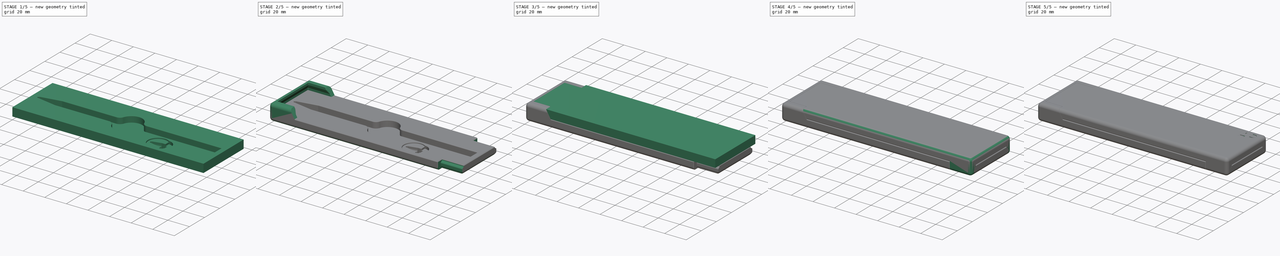
[diagram: build sequence overview — one tinted view per stage of 5, left to right]
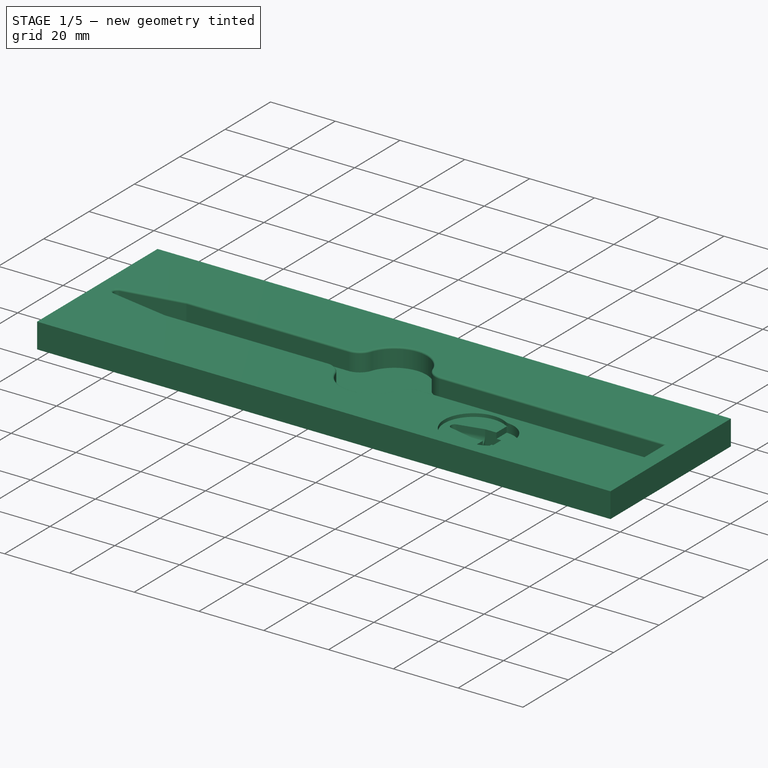
[diagram: stage 1 of 5 — iso view after this stage's code; geometry added in this stage tinted green]
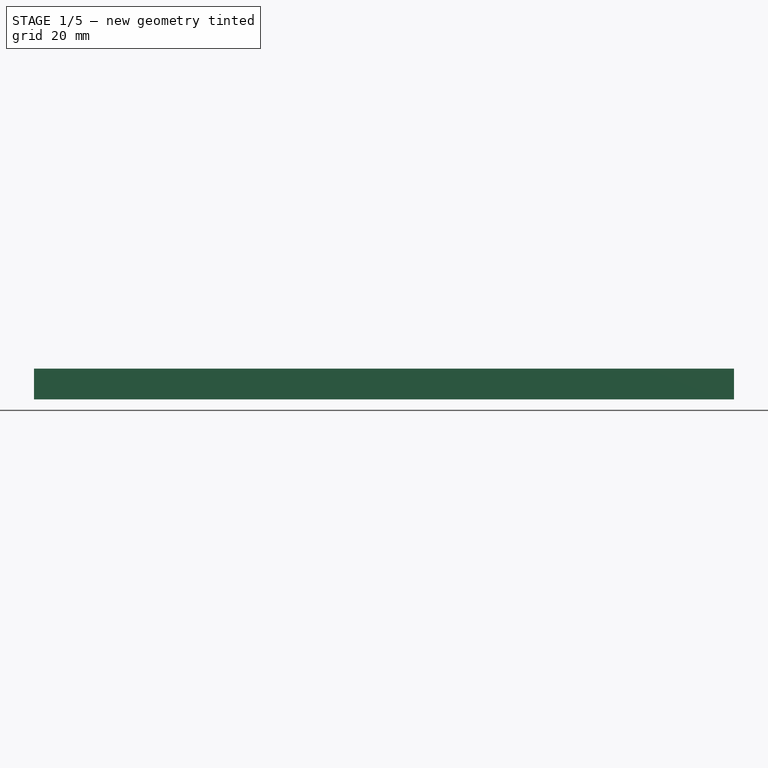
[diagram: stage 1 of 5 — front view after this stage's code; geometry added in this stage tinted green]
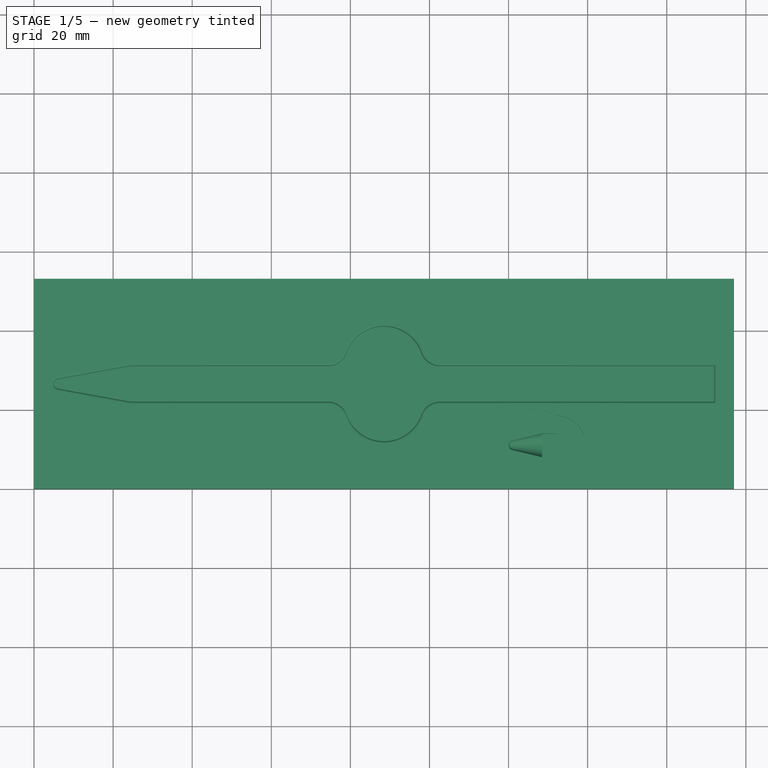
[diagram: stage 1 of 5 — top view after this stage's code; geometry added in this stage tinted green]
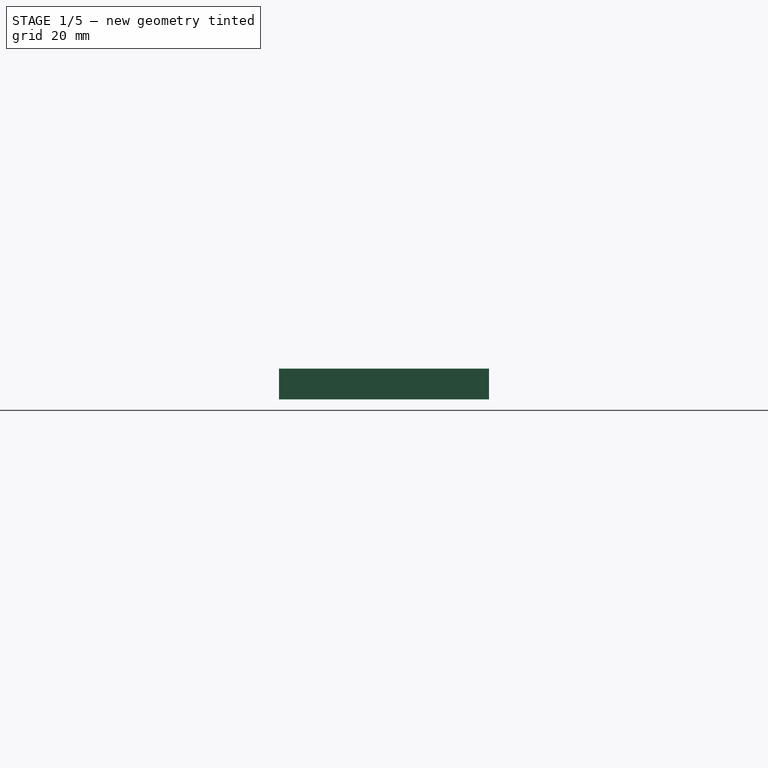
[diagram: stage 1 of 5 — right view after this stage's code; geometry added in this stage tinted green]
FCSTD DOCUMENT  (FreeCAD 0.21R33771 (Git))
Label: Apple Pencil (Gen 2) MKII
License: All rights reserved
LicenseURL: http://en.wikipedia.org/wiki/All_rights_reserved
objects: Sketcher::SketchObject×26, PartDesign::Pocket×20, PartDesign::Pad×12, PartDesign::Fillet×9, PartDesign::Chamfer×4, PartDesign::Body×4, Part::Part2DObjectPython×3, PartDesign::ShapeBinder×2, PartDesign::FeatureBase×2, PartDesign::Groove×1, Part::Feature×1, Part::Mirroring×1, Part::FeaturePython×1, App::Part×1
note: 132 computed .brp shape members not serialized (recipe doc carries the construction recipe); baked Part::Feature solids carry a one-line shape summary decoded from their .brp

FEATURE [Sketcher::SketchObject] Sketch
  FullyConstrained = true
  MapMode = 5
  Support = -> [XY_Plane]
  sketch-geometry (28):
    g0: LineSegment StartX=0 StartY=0 StartZ=0 EndX=177 EndY=0 EndZ=0
    g1: LineSegment StartX=177 StartY=0 StartZ=0 EndX=177 EndY=53.1 EndZ=0
    g2: LineSegment StartX=177 StartY=53.1 StartZ=0 EndX=0 EndY=53.1 EndZ=0
    g3: LineSegment StartX=0 StartY=53.1 StartZ=0 EndX=0 EndY=0 EndZ=0
    g4: GeomPoint X=5 Y=26.55 Z=0
    g5: GeomPoint X=0 Y=26.55 Z=0
    g6: GeomPoint X=172 Y=26.55 Z=0
    g7: GeomPoint X=6.02645 Y=27.7798 Z=0
    g8: GeomPoint X=6.02645 Y=25.3202 Z=0
    g9: ArcOfCircle CenterX=6.25 CenterY=26.55 CenterZ=0 NormalX=0 NormalY=0 NormalZ=1 AngleXU=0 Radius=1.25 StartAngle=1.75061 EndAngle=4.53258
    g10: LineSegment StartX=6.02645 StartY=27.7798 StartZ=0 EndX=24.2919 EndY=31.1 EndZ=0
    g11: LineSegment StartX=6.02645 StartY=25.3202 StartZ=0 EndX=24.2919 EndY=22 EndZ=0
    g12: LineSegment StartX=24.2919 StartY=22 StartZ=0 EndX=74.3579 EndY=22 EndZ=0
    g13: LineSegment StartX=102.642 StartY=22 StartZ=0 EndX=172 EndY=22 EndZ=0
    g14: LineSegment StartX=172 StartY=22 StartZ=0 EndX=172 EndY=31.1 EndZ=0
    g15: LineSegment StartX=172 StartY=31.1 StartZ=0 EndX=102.642 EndY=31.1 EndZ=0
    g16: LineSegment StartX=74.3579 StartY=31.1 StartZ=0 EndX=24.2919 EndY=31.1 EndZ=0
    g17: ArcOfCircle CenterX=88.5 CenterY=31.1 CenterZ=0 NormalX=0 NormalY=0 NormalZ=1 AngleXU=0 Radius=10 StartAngle=0.339837 EndAngle=2.80176
    g18: ArcOfCircle CenterX=88.5 CenterY=22 CenterZ=0 NormalX=0 NormalY=0 NormalZ=1 AngleXU=0 Radius=10 StartAngle=3.48143 EndAngle=5.94335
    g19: GeomPoint X=5 Y=31.1 Z=0
    g20: GeomPoint X=5 Y=22 Z=0
    g21: GeomPoint X=14.3894 Y=29.3 Z=0
    g22: GeomPoint X=14.3894 Y=23.8 Z=0
    g23: ArcOfCircle CenterX=102.642 CenterY=17 CenterZ=0 NormalX=0 NormalY=0 NormalZ=1 AngleXU=0 Radius=5 StartAngle=1.5708 EndAngle=2.80176
    g24: ArcOfCircle CenterX=74.3579 CenterY=17 CenterZ=0 NormalX=0 NormalY=0 NormalZ=1 AngleXU=0 Radius=5 StartAngle=0.339837 EndAngle=1.5708
    g25: ArcOfCircle CenterX=74.3579 CenterY=36.1 CenterZ=0 NormalX=0 NormalY=0 NormalZ=1 AngleXU=0 Radius=5 StartAngle=4.71239 EndAngle=5.94335
    g26: ArcOfCircle CenterX=102.642 CenterY=36.1 CenterZ=0 NormalX=0 NormalY=0 NormalZ=1 AngleXU=0 Radius=5 StartAngle=3.48143 EndAngle=4.71239
    g27: GeomPoint X=88.5 Y=12 Z=0
  constraints (67):
    c: Coincident(g0,g1)
    c: Coincident(g1,g2)
    c: Coincident(g2,g3)
    c: Coincident(g3,g0)
    c: Horizontal(g0)
    c: Horizontal(g2)
    c: Vertical(g1)
    c: Vertical(g3)
    c: Coincident(g0,g-1)
    c: Symmetric(g2,g0,g5)
    c: Horizontal(g5,g4)
    c: DistanceX(g5,g4) = 5
    c: Horizontal(g6,g5)
    c: DistanceX(g6,g1) = 5
    c: Coincident(g9,g7)
    c: Coincident(g9,g8)
    c: Horizontal(g4,g9)
    c: Coincident(g10,g9)
    c: Coincident(g11,g9)
    c: Coincident(g12,g11)
    c: Horizontal(g12)
    c: Horizontal(g13)
    c: Coincident(g14,g13)
    c: Vertical(g14)
    c: Coincident(g15,g14)
    c: Horizontal(g15)
    c: Coincident(g16,g10)
    c: Horizontal(g16)
    c: Symmetric(g14,g13,g6)
    c: Vertical(g17,g18)
    c: Radius(g17) = 10
    c: Radius(g18) = 10
    c: DistanceY(g14,g14) = 9.1
    c: Horizontal(g10,g19)
    c: Horizontal(g20,g11)
    c: Vertical(g20,g4)
    c: Vertical(g4,g19)
    c: Diameter(g9) = 2.5
    c: Angle(g10,g9,g9) = 3.14159
    c: Angle(g11,g9,g9) = 0
    c: Vertical(g10,g11)
    c: Horizontal(g11,g13)
    c: Horizontal(g14,g10)
    c: Vertical(g22,g21)
    c: DistanceY(g22,g21) = 5.5
    c: PointOnObject(g21,g10)
    c: PointOnObject(g22,g11)
    c: Symmetric(g20,g13,g18)
    c: Horizontal(g17,g14)
    c: Tangent(g18,g23) = 1.5708
    c: Tangent(g13,g23) = 1.5708
    c: Tangent(g18,g24) = 1.5708
    c: Tangent(g12,g24) = 1.5708
    c: Tangent(g16,g25) = 1.5708
    c: Tangent(g17,g25) = 1.5708
    c: Tangent(g17,g26) = 1.5708
    c: Tangent(g15,g26) = 1.5708
    c: Vertical(g25,g24)
    c: Vertical(g23,g26)
    c: Horizontal(g26,g25)
    c: Radius(g23) = 5
    c: PointOnObject(g27,g18)
    c: Vertical(g18,g27)
    c: Distance(g27,g0) = 12
    c: Distance(g9,g21) = 8.5
    c: PointOnObject(g4,g9)
    c: DistanceX(g4,g6) = 167
FEATURE [PartDesign::Pad] Pad
  Direction = (1,1,1)
  Length = 5.75
  Length2 = 100
  Profile = -> Sketch
  Type = 0
FEATURE [Sketcher::SketchObject] Sketch001
  ExternalGeometry = -> [Pad]
  FullyConstrained = true
  MapMode = 5
  Placement = pos=(0,0,0) rot=(1,0,0;3.14159rad)
  Support = -> [Pad]
  sketch-geometry (4):
    g0: LineSegment StartX=0 StartY=0 StartZ=0 EndX=177 EndY=0 EndZ=0
    g1: LineSegment StartX=177 StartY=0 StartZ=0 EndX=177 EndY=-53.1 EndZ=0
    g2: LineSegment StartX=177 StartY=-53.1 StartZ=0 EndX=0 EndY=-53.1 EndZ=0
    g3: LineSegment StartX=0 StartY=-53.1 StartZ=0 EndX=0 EndY=0 EndZ=0
  constraints (10):
    c: Coincident(g0,g1)
    c: Coincident(g1,g2)
    c: Coincident(g2,g3)
    c: Coincident(g3,g0)
    c: Horizontal(g0)
    c: Horizontal(g2)
    c: Vertical(g1)
    c: Vertical(g3)
    c: Coincident(g0,g-1)
    c: Coincident(g1,g-3)
FEATURE [PartDesign::Pad] Pad001
  BaseFeature = -> Pad
  Direction = (1,1,1)
  Length = 2
  Length2 = 100
  Profile = -> Sketch001
  Refine = true
  Type = 0
FEATURE [Sketcher::SketchObject] Sketch003
  ExternalGeometry = -> [Pad001]
  FullyConstrained = true
  MapMode = 5
  Placement = pos=(0,0,5.75) rot=(0,0,1;0rad)
  Support = -> [Pad001]
  sketch-geometry (17):
    g0: GeomPoint X=172 Y=0 Z=0
    g1: GeomPoint X=172 Y=11 Z=0
    g2: GeomPoint X=127 Y=11 Z=0
    g3: Circle CenterX=127 CenterY=11 CenterZ=0 NormalX=0 NormalY=0 NormalZ=1 AngleXU=0 Radius=9.00714
    g4: GeomPoint X=119.993 Y=11 Z=0
    g5: GeomPoint X=117.993 Y=11 Z=0
    g6: GeomPoint X=120.955 Y=12.2164 Z=0
    g7: GeomPoint X=120.955 Y=9.78359 Z=0
    g8: ArcOfCircle CenterX=121.243 CenterY=11 CenterZ=0 NormalX=0 NormalY=0 NormalZ=1 AngleXU=0 Radius=1.25 StartAngle=1.80314 EndAngle=4.48004
    g9: LineSegment StartX=120.955 StartY=12.2164 StartZ=0 EndX=128.493 EndY=14 EndZ=0
    g10: LineSegment StartX=128.493 StartY=14 StartZ=0 EndX=133.493 EndY=14 EndZ=0
    g11: LineSegment StartX=133.493 StartY=14 StartZ=0 EndX=133.493 EndY=8 EndZ=0
    g12: LineSegment StartX=133.493 StartY=8 StartZ=0 EndX=128.493 EndY=8 EndZ=0
    g13: LineSegment StartX=120.955 StartY=9.78359 StartZ=0 EndX=128.493 EndY=8 EndZ=0
    g14: GeomPoint X=135.493 Y=14 Z=0
    g15: GeomPoint X=133.493 Y=11 Z=0
    g16: GeomPoint X=127 Y=20.0071 Z=0
  constraints (37):
    c: PointOnObject(g0,g-1)
    c: Vertical(g-3,g0)
    c: Symmetric(g-3,g0,g1)
    c: Coincident(g3,g2)
    c: Distance(g3,g1) = 45
    c: Horizontal(g3,g1)
    c: Horizontal(g3,g4)
    c: PointOnObject(g5,g3)
    c: Horizontal(g5,g3)
    c: Coincident(g8,g6)
    c: Coincident(g8,g7)
    c: PointOnObject(g4,g8)
    c: Horizontal(g4,g8)
    c: Diameter(g8) = 2.5
    c: Coincident(g9,g8)
    c: Coincident(g10,g9)
    c: Horizontal(g10)
    c: Coincident(g11,g10)
    c: Vertical(g11)
    c: Coincident(g12,g11)
    c: Horizontal(g12)
    c: Coincident(g13,g8)
    c: Coincident(g13,g12)
    c: Angle(g8,g13,g8) = 0
    c: Angle(g9,g8,g8) = 3.14159
    c: DistanceX(g4,g10) = 13.5
    c: DistanceX(g10,g10) = 5
    c: Vertical(g9,g12)
    c: DistanceY(g11,g11) = 6
    c: DistanceX(g5,g4) = 2
    c: PointOnObject(g14,g3)
    c: Horizontal(g10,g14)
    c: Symmetric(g10,g11,g15)
    c: Horizontal(g8,g15)
    c: DistanceX(g10,g14) = 2
    c: PointOnObject(g16,g3)
    c: Vertical(g16,g3)
FEATURE [PartDesign::Pocket] Pocket
  BaseFeature = -> Pad001
  Direction = (1,1,1)
  Length = 1
  Length2 = 100
  Profile = -> Sketch003
  Type = 0
FEATURE [PartDesign::Pocket] Pocket001
  BaseFeature = -> Pocket
  Direction = (1,1,1)
  Length = 5.75
  Length2 = 100
  Profile = -> Pocket [Face30]
  Refine = true
  Type = 0
FEATURE [Sketcher::SketchObject] Sketch004
  ExternalGeometry = -> [Pocket001]
  FullyConstrained = true
  MapMode = 5
  Support = -> [Pocket001]
  sketch-geometry (4):
    g0: LineSegment StartX=128.493 StartY=14 StartZ=0 EndX=128.493 EndY=8 EndZ=0
    g1: LineSegment StartX=120.955 StartY=9.78359 StartZ=0 EndX=128.493 EndY=8 EndZ=0
    g2: LineSegment StartX=120.955 StartY=12.2164 StartZ=0 EndX=128.493 EndY=14 EndZ=0
    g3: ArcOfCircle CenterX=121.243 CenterY=11 CenterZ=0 NormalX=0 NormalY=0 NormalZ=1 AngleXU=0 Radius=1.25 StartAngle=1.80314 EndAngle=4.48004
  constraints (9):
    c: Coincident(g0,g-3)
    c: Coincident(g0,g-5)
    c: Coincident(g1,g-5)
    c: Coincident(g1,g0)
    c: Coincident(g2,g-4)
    c: Coincident(g2,g0)
    c: Coincident(g3,g-4)
    c: Coincident(g3,g1)
    c: Coincident(g3,g2)
FEATURE [PartDesign::Pad] Pad002
  BaseFeature = -> Pocket001
  Direction = (1,1,1)
  Length = 2.875
  Length2 = 100
  Profile = -> Sketch004
  Refine = true
  Type = 0
FEATURE [Sketcher::SketchObject] Sketch005
  ExternalGeometry = -> [Pad002]
  FullyConstrained = true
  MapMode = 5
  Placement = pos=(0,0,2.875) rot=(0,0,1;0rad)
  Support = -> [Pad002]
  sketch-geometry (4):
    g0: LineSegment StartX=120.955 StartY=9.78359 StartZ=0 EndX=128.493 EndY=8 EndZ=0
    g1: LineSegment StartX=119.993 StartY=11 StartZ=0 EndX=128.493 EndY=11 EndZ=0
    g2: LineSegment StartX=128.493 StartY=11 StartZ=0 EndX=128.493 EndY=8 EndZ=0
    g3: ArcOfCircle CenterX=121.243 CenterY=11 CenterZ=0 NormalX=0 NormalY=0 NormalZ=1 AngleXU=0 Radius=1.25 StartAngle=3.14159 EndAngle=4.48004
  constraints (10):
    c: Coincident(g0,g-5)
    c: Coincident(g0,g-5)
    c: PointOnObject(g1,g-4)
    c: Horizontal(g1)
    c: Coincident(g2,g1)
    c: Coincident(g2,g0)
    c: Horizontal(g-3,g1)
    c: Coincident(g3,g-3)
    c: Coincident(g3,g1)
    c: Coincident(g3,g0)
FEATURE [Sketcher::SketchObject] Sketch006
  ExternalGeometry = -> [Pad002]
  FullyConstrained = true
  MapMode = 5
  Placement = pos=(0,0,2.875) rot=(0,0,1;0rad)
  Support = -> [Pad002]
  sketch-geometry (1):
    g0: LineSegment StartX=122.493 StartY=11 StartZ=0 EndX=128.493 EndY=11 EndZ=0
  constraints (4):
    c: PointOnObject(g0,g-3)
    c: PointOnObject(g0,g-4)
    c: Horizontal(g0)
    c: Horizontal(g-3,g0)
FEATURE [PartDesign::Groove] Groove
  Angle = 360
  Axis = (1,0,0)
  Base = (122.493,11,2.875)
  BaseFeature = -> Pad002
  Profile = -> Sketch005
  ReferenceAxis = -> Sketch006 [Edge1]
  Refine = true
FEATURE [Sketcher::SketchObject] Sketch007
  ExternalGeometry = -> [Groove]
  FullyConstrained = true
  MapMode = 5
  Support = -> [Groove]
  sketch-geometry (4):
    g0: LineSegment StartX=133.493 StartY=14 StartZ=0 EndX=130.493 EndY=14 EndZ=0
    g1: LineSegment StartX=130.493 StartY=14 StartZ=0 EndX=130.493 EndY=8 EndZ=0
    g2: LineSegment StartX=130.493 StartY=8 StartZ=0 EndX=133.493 EndY=8 EndZ=0
    g3: LineSegment StartX=133.493 StartY=8 StartZ=0 EndX=133.493 EndY=14 EndZ=0
  constraints (11):
    c: Coincident(g0,g1)
    c: Coincident(g1,g2)
    c: Coincident(g2,g3)
    c: Coincident(g3,g0)
    c: Horizontal(g0)
    c: Horizontal(g2)
    c: Vertical(g1)
    c: Vertical(g3)
    c: Coincident(g0,g-3)
    c: Horizontal(g1,g-3)
    c: DistanceX(g2,g2) = 3
FEATURE [PartDesign::Pad] Pad003
  BaseFeature = -> Groove
  Direction = (1,1,1)
  Length = 1
  Length2 = 100
  Profile = -> Sketch007
  Refine = true
  Type = 0
FEATURE [Sketcher::SketchObject] Sketch008
  ExternalGeometry = -> [Pad003]
  FullyConstrained = true
  MapMode = 5
  Placement = pos=(0,0,4.75) rot=(0,0,1;0rad)
  Support = -> [Pad003]
  sketch-geometry (4):
    g0: GeomPoint X=133.493 Y=11 Z=0
    g1: GeomPoint X=131.993 Y=11 Z=0
    g2: ArcOfCircle CenterX=131.993 CenterY=11 CenterZ=0 NormalX=0 NormalY=0 NormalZ=1 AngleXU=0 Radius=7.5 StartAngle=4.71239 EndAngle=7.85398
    g3: LineSegment StartX=131.993 StartY=18.5 StartZ=0 EndX=131.993 EndY=3.5 EndZ=0
  constraints (9):
    c: Symmetric(g-3,g-3,g0)
    c: Horizontal(g1,g0)
    c: DistanceX(g1,g0) = 1.5
    c: Coincident(g2,g1)
    c: Diameter(g2) = 15
    c: Coincident(g3,g2)
    c: Coincident(g3,g2)
    c: Vertical(g3)
    c: PointOnObject(g2,g3)
FEATURE [PartDesign::Pocket] Pocket002
  BaseFeature = -> Pad003
  Direction = (1,1,1)
  Length = 1.75
  Length2 = 100
  Profile = -> Sketch008
  Refine = true
  Type = 4
FEATURE [PartDesign::Fillet] Fillet
  Base = -> Pocket002 [Edge23,Edge21,Edge19,Edge17,Edge18,Edge26,Edge28,Edge30,Edge29,Edge27,Edge25,Edge24,Edge22,Edge20]
  BaseFeature = -> Pocket002
  Radius = 0.5
  SupportTransform = false
  UseAllEdges = false
FEATURE [Sketcher::SketchObject] Sketch011
  ExternalGeometry = -> [Fillet]
  FullyConstrained = true
  MapMode = 5
  Placement = pos=(0,0,5.75) rot=(0,0,1;0rad)
  Support = -> [Fillet]
  sketch-geometry (4):
    g0: ArcOfCircle CenterX=127 CenterY=11 CenterZ=0 NormalX=0 NormalY=0 NormalZ=1 AngleXU=0 Radius=9.01 StartAngle=1.08793 EndAngle=5.19526
    g1: ArcOfCircle CenterX=131.993 CenterY=11 CenterZ=0 NormalX=0 NormalY=0 NormalZ=1 AngleXU=0 Radius=7.5 StartAngle=4.83367 EndAngle=7.7327
    g2: ArcOfCircle CenterX=133.505 CenterY=23.4082 CenterZ=0 NormalX=0 NormalY=0 NormalZ=1 AngleXU=0 Radius=5 StartAngle=4.22952 EndAngle=4.59111
    g3: ArcOfCircle CenterX=133.505 CenterY=-1.40818 CenterZ=0 NormalX=0 NormalY=0 NormalZ=1 AngleXU=0 Radius=5 StartAngle=1.69208 EndAngle=2.05367
  constraints (10):
    c: Coincident(g0,g-3)
    c: Coincident(g1,g-4)
    c: Tangent(g1,g2) = 1.5708
    c: Tangent(g0,g2) = 1.5708
    c: Tangent(g0,g3) = 1.5708
    c: Tangent(g1,g3) = 1.5708
    c: Radius(g1) = 7.5
    c: Radius(g0) = 9.01
    c: Radius(g2) = 5
    c: Radius(g3) = 5
FEATURE [PartDesign::Pocket] Pocket006
  BaseFeature = -> Fillet
  Direction = (1,1,1)
  Length = 1
  Length2 = 100
  Profile = -> Sketch011
  Refine = true
  Type = 0
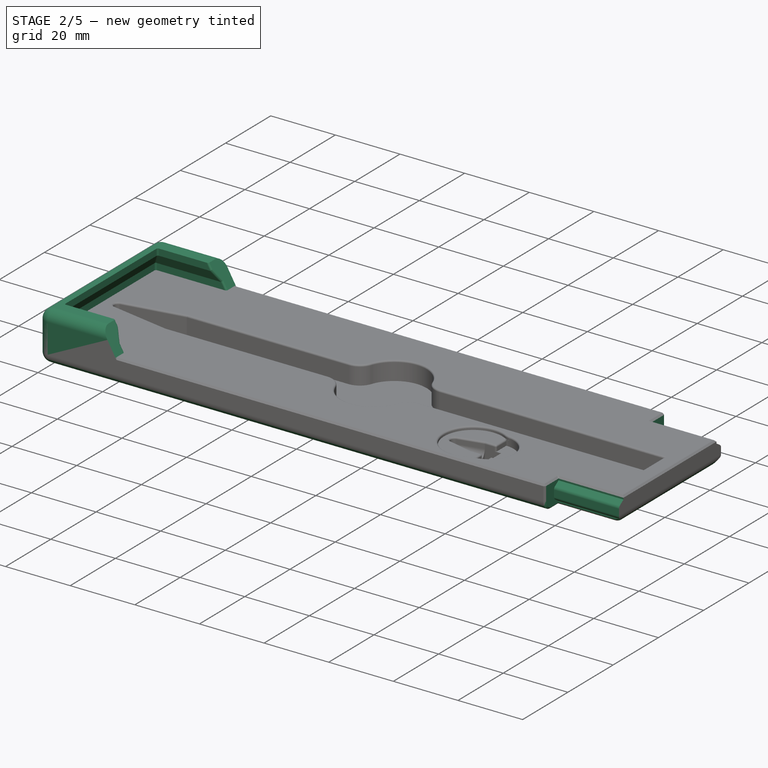
[diagram: stage 2 of 5 — iso view after this stage's code; geometry added in this stage tinted green]
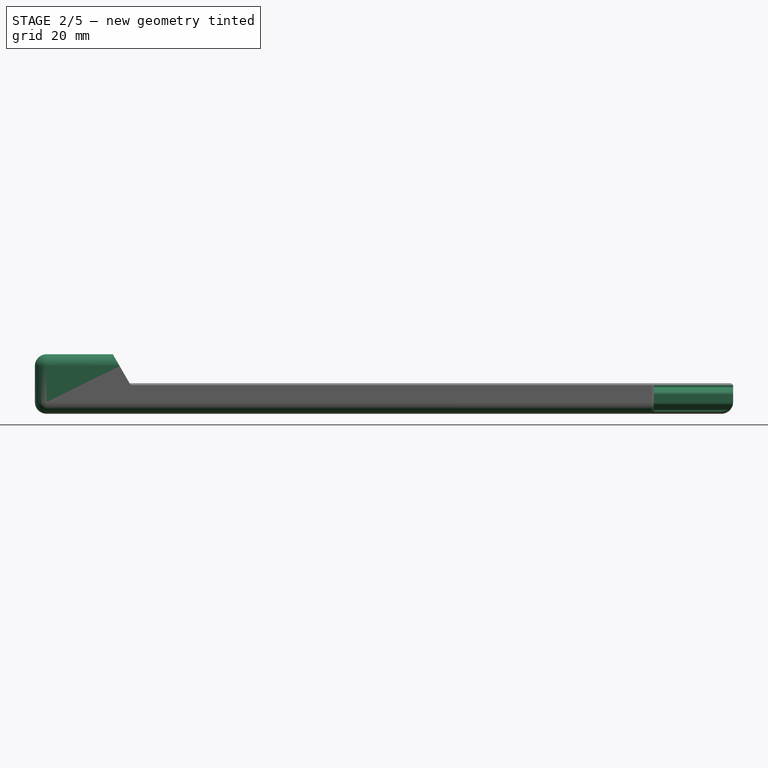
[diagram: stage 2 of 5 — front view after this stage's code; geometry added in this stage tinted green]
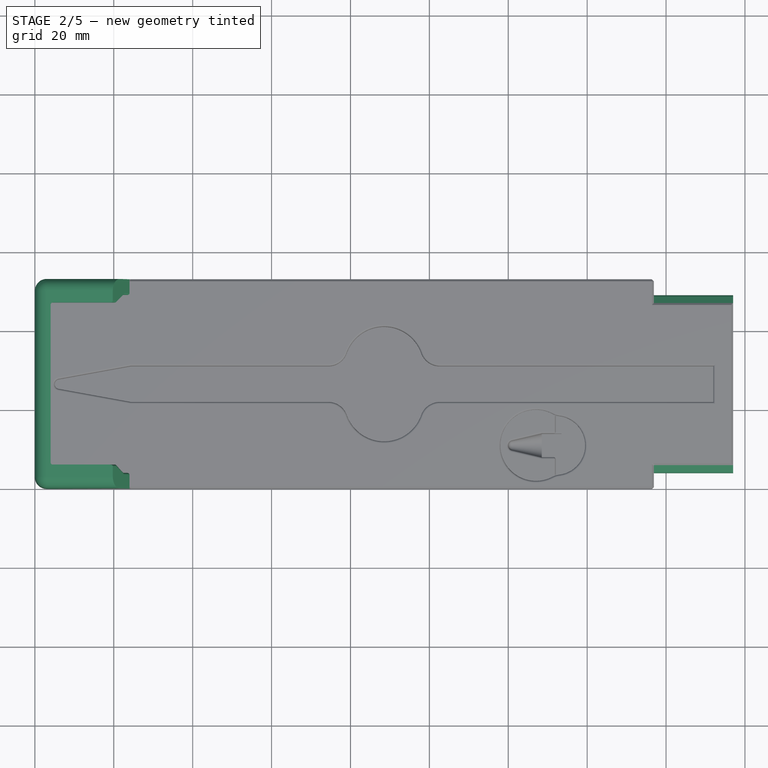
[diagram: stage 2 of 5 — top view after this stage's code; geometry added in this stage tinted green]
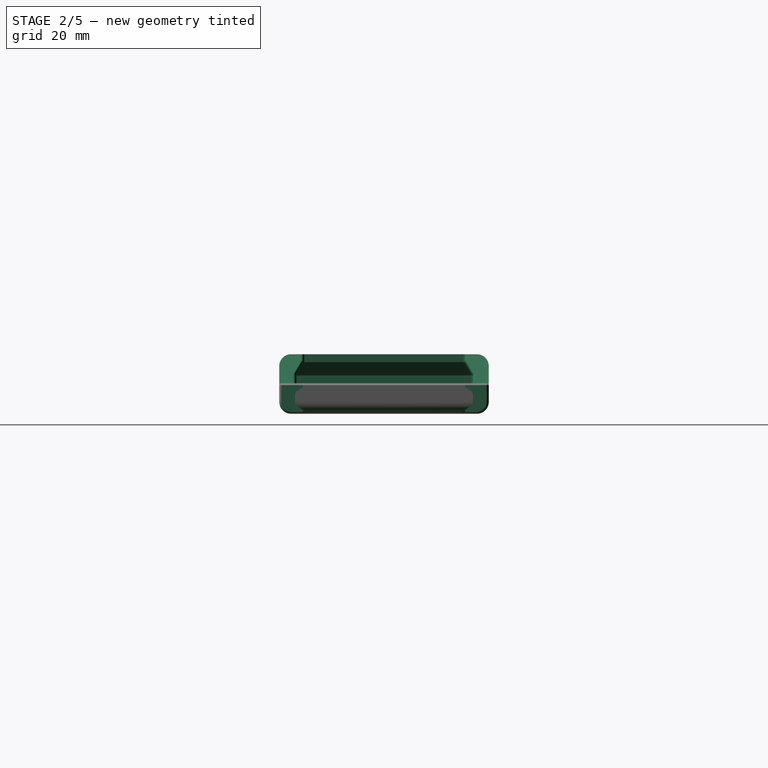
[diagram: stage 2 of 5 — right view after this stage's code; geometry added in this stage tinted green]
FEATURE [PartDesign::Fillet] Fillet001
  Base = -> Pocket006 [Edge6,Edge5,Edge8,Edge7,Edge95,Edge101,Edge111,Edge100,Edge99,Edge98,Edge97,Edge96,Edge105]
  BaseFeature = -> Pocket006
  Radius = 0.5
  SupportTransform = false
  UseAllEdges = false
FEATURE [Sketcher::SketchObject] Sketch012
  ExternalGeometry = -> [Fillet001]
  FullyConstrained = true
  MapMode = 5
  Placement = pos=(0,0,0) rot=(1,0,0;1.5708rad)
  Support = -> [Fillet001]
  sketch-geometry (9):
    g0: GeomPoint X=0 Y=9.1 Z=0
    g1: GeomPoint X=0 Y=13.1 Z=0
    g2: GeomPoint X=4 Y=13.1 Z=0
    g3: LineSegment StartX=0 StartY=13.1 StartZ=0 EndX=0 EndY=5.75 EndZ=0
    g4: LineSegment StartX=0 StartY=13.1 StartZ=0 EndX=4 EndY=13.1 EndZ=0
    g5: LineSegment StartX=4 StartY=13.1 StartZ=0 EndX=4 EndY=11.1 EndZ=0
    g6: LineSegment StartX=2 StartY=5.75 StartZ=0 EndX=0 EndY=5.75 EndZ=0
    g7: LineSegment StartX=2 StartY=5.75 StartZ=0 EndX=2 EndY=7.75 EndZ=0
    g8: LineSegment StartX=2 StartY=7.75 StartZ=0 EndX=4 EndY=11.1 EndZ=0
  constraints (21):
    c: PointOnObject(g0,g-2)
    c: DistanceY(g-1,g0) = 9.1
    c: PointOnObject(g1,g-2)
    c: DistanceY(g0,g1) = 4
    c: Horizontal(g1,g2)
    c: DistanceX(g1,g2) = 4
    c: Coincident(g3,g1)
    c: Coincident(g3,g-3)
    c: Coincident(g4,g3)
    c: Coincident(g4,g2)
    c: Coincident(g5,g4)
    c: Vertical(g5)
    c: PointOnObject(g6,g-3)
    c: Coincident(g6,g3)
    c: DistanceX(g6,g6) = 2
    c: DistanceY(g5,g5) = 2
    c: Coincident(g7,g6)
    c: Vertical(g7)
    c: DistanceY(g7,g7) = 2
    c: Coincident(g8,g7)
    c: Coincident(g8,g5)
FEATURE [PartDesign::Pad] Pad004
  BaseFeature = -> Fillet001
  Direction = (1,1,1)
  Length = 10
  Length2 = 100
  Profile = -> Sketch012
  Refine = true
  Type = 3
  UpToFace = -> Fillet001 [Face9]
FEATURE [Sketcher::SketchObject] Sketch013
  FullyConstrained = false
  MapMode = 5
  Placement = pos=(0,0,0) rot=(0.57735,-0.57735,-0.57735;2.0944rad)
  Support = -> [Pad004]
  sketch-geometry (12):
    g0: LineSegment StartX=-53.1 StartY=5.75 StartZ=0 EndX=-49.1 EndY=5.75 EndZ=0
    g1: LineSegment StartX=-49.1 StartY=5.75 StartZ=0 EndX=-49.1 EndY=7.75 EndZ=0
    g2: LineSegment StartX=-49.1 StartY=7.75 StartZ=0 EndX=-47.1 EndY=11.1 EndZ=0
    g3: LineSegment StartX=-47.1 StartY=11.1 StartZ=0 EndX=-47.1 EndY=13.1 EndZ=0
    g4: LineSegment StartX=-47.1 StartY=13.1 StartZ=0 EndX=-53.1 EndY=13.1 EndZ=0
    g5: LineSegment StartX=-53.1 StartY=13.1 StartZ=0 EndX=-53.1 EndY=5.75 EndZ=0
    g6: LineSegment StartX=0 StartY=5.75 StartZ=0 EndX=-4 EndY=5.75 EndZ=0
    g7: LineSegment StartX=-4 StartY=5.75 StartZ=0 EndX=-4 EndY=7.75 EndZ=0
    g8: LineSegment StartX=-4 StartY=7.75 StartZ=0 EndX=-6 EndY=11.1 EndZ=0
    g9: LineSegment StartX=-6 StartY=11.1 StartZ=0 EndX=-6 EndY=13.1 EndZ=0
    g10: LineSegment StartX=-6 StartY=13.1 StartZ=0 EndX=-2.7e-15 EndY=13.1 EndZ=0
    g11: LineSegment StartX=0 StartY=13.1 StartZ=0 EndX=0 EndY=5.75 EndZ=0
  constraints (26):
    c: Horizontal(g0)
    c: Coincident(g1,g0)
    c: Vertical(g1)
    c: Coincident(g2,g1)
    c: Coincident(g3,g2)
    c: Vertical(g3)
    c: Coincident(g4,g3)
    c: Coincident(g5,g4)
    c: Coincident(g5,g0)
    c: Horizontal(g6)
    c: Coincident(g7,g6)
    c: Vertical(g7)
    c: Coincident(g8,g7)
    c: Coincident(g9,g8)
    c: Vertical(g9)
    c: Coincident(g10,g9)
    c: Coincident(g11,g6)
    c: Vertical(g11)
    c: DistanceY(g7,g7) = 2
    c: DistanceY(g9,g9) = 2
    c: DistanceY(g3,g3) = 2
    c: DistanceY(g1,g1) = 2
    c: DistanceX(g6,g6) = 4
    c: DistanceX(g0,g0) = 4
    c: DistanceX(g4,g4) = 6
    c: DistanceX(g10,g10) = 6
FEATURE [PartDesign::Pad] Pad005
  BaseFeature = -> Pad004
  Direction = (1,1,1)
  Length = 24
  Length2 = 100
  Profile = -> Sketch013
  Refine = true
  Reversed = true
  Type = 0
FEATURE [Sketcher::SketchObject] Sketch014
  FullyConstrained = false
  MapMode = 5
  Placement = pos=(0,0,0) rot=(1,0,0;1.5708rad)
  Support = -> [Pad005]
  sketch-geometry (3):
    g0: LineSegment StartX=24 StartY=5.75 StartZ=0 EndX=19.7565 EndY=13.1 EndZ=0
    g1: LineSegment StartX=19.7565 StartY=13.1 StartZ=0 EndX=24 EndY=13.1 EndZ=0
    g2: LineSegment StartX=24 StartY=13.1 StartZ=0 EndX=24 EndY=5.75 EndZ=0
  constraints (3):
    c: Coincident(g1,g0)
    c: Coincident(g2,g1)
    c: Coincident(g2,g0)
FEATURE [PartDesign::Pocket] Pocket007
  BaseFeature = -> Pad005
  Direction = (1,1,1)
  Length = 0
  Length2 = 100
  Profile = -> Sketch014
  Type = 3
  UpToFace = -> Pad005 [Face81]
FEATURE [PartDesign::ShapeBinder] CopyPocket007
  TraceSupport = false
FEATURE [Sketcher::SketchObject] Sketch015
  FullyConstrained = true
  MapMode = 5
  Placement = pos=(0,0,5.75) rot=(0,0,1;0rad)
  Support = -> [CopyPocket007]
  sketch-geometry (4):
    g0: LineSegment StartX=0 StartY=0 StartZ=0 EndX=177 EndY=0 EndZ=0
    g1: LineSegment StartX=177 StartY=0 StartZ=0 EndX=177 EndY=53.1 EndZ=0
    g2: LineSegment StartX=177 StartY=53.1 StartZ=0 EndX=0 EndY=53.1 EndZ=0
    g3: LineSegment StartX=0 StartY=53.1 StartZ=0 EndX=0 EndY=0 EndZ=0
  constraints (11):
    c: Coincident(g0,g1)
    c: Coincident(g1,g2)
    c: Coincident(g2,g3)
    c: Coincident(g3,g0)
    c: Horizontal(g0)
    c: Horizontal(g2)
    c: Vertical(g1)
    c: Vertical(g3)
    c: Coincident(g0,g-1)
    c: DistanceX(g2,g2) = 177
    c: DistanceY(g1,g1) = 53.1
FEATURE [Sketcher::SketchObject] Sketch022
  ExternalGeometry = -> [Pocket007]
  FullyConstrained = true
  MapMode = 5
  Placement = pos=(177,0,0) rot=(0.57735,0.57735,0.57735;2.0944rad)
  Support = -> [Pocket007]
  sketch-geometry (22):
    g0: LineSegment StartX=0 StartY=-2 StartZ=0 EndX=0 EndY=5.75 EndZ=0
    g1: LineSegment StartX=0 StartY=5.75 StartZ=0 EndX=6 EndY=5.75 EndZ=0
    g2: LineSegment StartX=0 StartY=-2 StartZ=0 EndX=6 EndY=-2 EndZ=0
    g3: LineSegment StartX=53.1 StartY=-2 StartZ=0 EndX=47.1 EndY=-2 EndZ=0
    g4: LineSegment StartX=53.1 StartY=5.75 StartZ=0 EndX=47.1 EndY=5.75 EndZ=0
    g5: LineSegment StartX=6 StartY=-2 StartZ=0 EndX=6 EndY=-1 EndZ=0
    g6: LineSegment StartX=6 StartY=4.75 StartZ=0 EndX=6 EndY=5.75 EndZ=0
    g7: LineSegment StartX=47.1 StartY=-2 StartZ=0 EndX=47.1 EndY=-1 EndZ=0
    g8: LineSegment StartX=47.1 StartY=4.75 StartZ=0 EndX=47.1 EndY=5.75 EndZ=0
    g9: LineSegment StartX=53.1 StartY=5.75 StartZ=0 EndX=53.1 EndY=-2 EndZ=0
    g10: LineSegment StartX=6 StartY=4.75 StartZ=0 EndX=4.44291 EndY=3.70545 EndZ=0
    g11: LineSegment StartX=4 StartY=2.875 StartZ=0 EndX=4 EndY=0.875 EndZ=0
    g12: LineSegment StartX=4.44291 StartY=0.0445502 StartZ=0 EndX=6 EndY=-1 EndZ=0
    g13: LineSegment StartX=47.1 StartY=4.75 StartZ=0 EndX=48.6571 EndY=3.70545 EndZ=0
    g14: LineSegment StartX=49.1 StartY=2.875 StartZ=0 EndX=49.1 EndY=0.875 EndZ=0
    g15: LineSegment StartX=48.6571 StartY=0.0445502 StartZ=0 EndX=47.1 EndY=-1 EndZ=0
    g16: ArcOfCircle CenterX=5 CenterY=2.875 CenterZ=0 NormalX=0 NormalY=0 NormalZ=1 AngleXU=0 Radius=1 StartAngle=2.16168 EndAngle=3.14159
    g17: ArcOfCircle CenterX=5 CenterY=0.875 CenterZ=0 NormalX=0 NormalY=0 NormalZ=1 AngleXU=0 Radius=1 StartAngle=3.14159 EndAngle=4.12151
    g18: ArcOfCircle CenterX=48.1 CenterY=0.875 CenterZ=0 NormalX=0 NormalY=0 NormalZ=1 AngleXU=0 Radius=1 StartAngle=5.30327 EndAngle=6.28319
    g19: ArcOfCircle CenterX=48.1 CenterY=2.875 CenterZ=0 NormalX=0 NormalY=0 NormalZ=1 AngleXU=0 Radius=1 StartAngle=0 EndAngle=0.979915
    g20: LineSegment StartX=4 StartY=2.875 StartZ=0 EndX=0 EndY=2.875 EndZ=0
    g21: LineSegment StartX=49.1 StartY=2.875 StartZ=0 EndX=53.1 EndY=2.875 EndZ=0
  constraints (58):
    c: Coincident(g0,g-4)
    c: Coincident(g0,g-3)
    c: Coincident(g1,g0)
    c: PointOnObject(g1,g-3)
    c: Coincident(g2,g0)
    c: PointOnObject(g2,g-4)
    c: Coincident(g3,g-4)
    c: Coincident(g4,g-3)
    c: PointOnObject(g4,g-3)
    c: Coincident(g5,g2)
    c: Vertical(g5)
    c: Coincident(g6,g1)
    c: Vertical(g6)
    c: Horizontal(g3)
    c: DistanceY(g6,g6) = 1
    c: DistanceY(g5,g5) = 1
    c: Coincident(g7,g3)
    c: Vertical(g7)
    c: Vertical(g8)
    c: Coincident(g8,g4)
    c: DistanceY(g8,g8) = 1
    c: DistanceY(g7,g7) = 1
    c: Coincident(g9,g4)
    c: Coincident(g9,g3)
    c: DistanceX(g4,g4) = 6
    c: DistanceX(g3,g3) = 6
    c: DistanceX(g2,g2) = 6
    c: DistanceX(g1,g1) = 6
    c: Coincident(g10,g6)
    c: Vertical(g11)
    c: Coincident(g12,g5)
    c: Coincident(g13,g8)
    c: Vertical(g14)
    c: Coincident(g15,g7)
    c: Tangent(g10,g16) = -1.5708
    c: Tangent(g11,g16) = -1.5708
    c: Tangent(g11,g17) = -1.5708
    c: Tangent(g12,g17) = -1.5708
    c: Tangent(g15,g18) = 1.5708
    c: Tangent(g14,g18) = 1.5708
    c: Tangent(g14,g19) = 1.5708
    c: Tangent(g13,g19) = 1.5708
    c: Coincident(g20,g11)
    c: PointOnObject(g20,g0)
    c: Horizontal(g20)
    c: Coincident(g21,g14)
    c: PointOnObject(g21,g9)
    c: Horizontal(g21)
    c: Distance(g21) = 4
    c: Equal(g21,g20)
    c: Equal(g11,g14)
    c: Distance(g14) = 2
    c: Equal(g16,g17)
    c: Equal(g17,g18)
    c: Equal(g18,g19)
    c: Equal(g13,g15)
    c: Equal(g10,g12)
    c: Radius(g19) = 1
FEATURE [PartDesign::Pocket] Pocket013
  BaseFeature = -> Pocket007
  Direction = (-1,0,0)
  Length = 20.1
  Length2 = 100
  Profile = -> Sketch022
  Refine = true
  Type = 0
FEATURE [PartDesign::Fillet] Fillet003
  Base = -> Pocket013 [Edge60,Edge80,Edge42,Edge132,Edge78,Edge130,Edge40,Edge81,Edge41]
  BaseFeature = -> Pocket013
  Radius = 3
  SupportTransform = false
  UseAllEdges = false
FEATURE [PartDesign::Chamfer] Chamfer001
  Angle = 45
  Base = -> Fillet003 [Edge19,Edge32,Edge31,Edge30,Edge29,Edge28,Edge27,Edge145,Edge68,Edge155,Edge151,Edge72,Edge99]
  BaseFeature = -> Fillet003
  ChamferType = 0
  FlipDirection = false
  Size = 0.5
  Size2 = 1
  SupportTransform = false
  UseAllEdges = false
FEATURE [PartDesign::Fillet] Fillet004
  Base = -> Chamfer001 [Edge7,Edge5,Edge3,Edge76,Edge73,Edge71,Edge66]
  BaseFeature = -> Chamfer001
  Radius = 0.5
  SupportTransform = false
  UseAllEdges = false
FEATURE [PartDesign::Fillet] Fillet005
  Base = -> Fillet004 [Edge66,Edge135,Edge133,Edge70,Edge165,Edge147]
  BaseFeature = -> Fillet004
  Radius = 0.5
  SupportTransform = false
  UseAllEdges = false
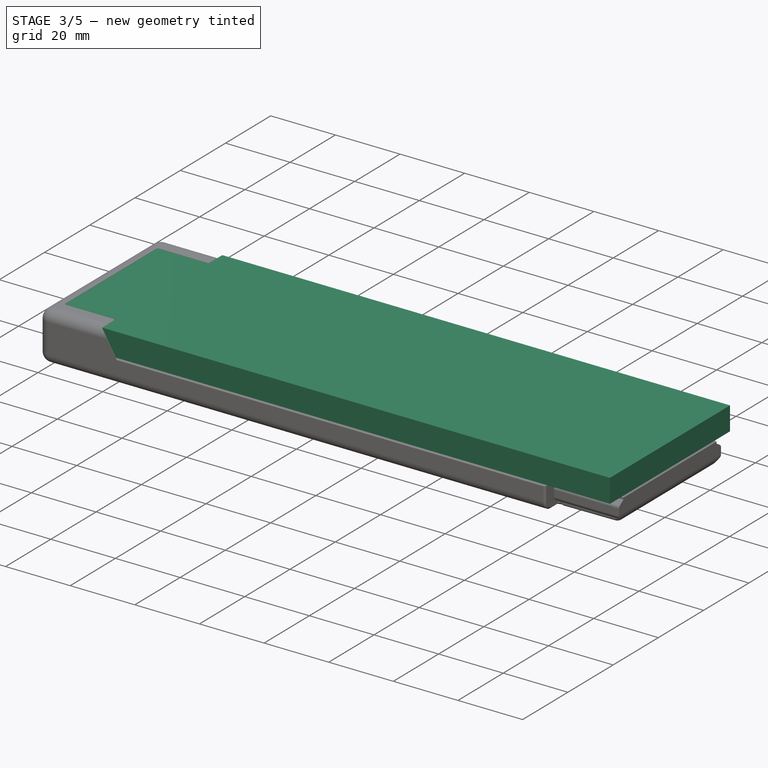
[diagram: stage 3 of 5 — iso view after this stage's code; geometry added in this stage tinted green]
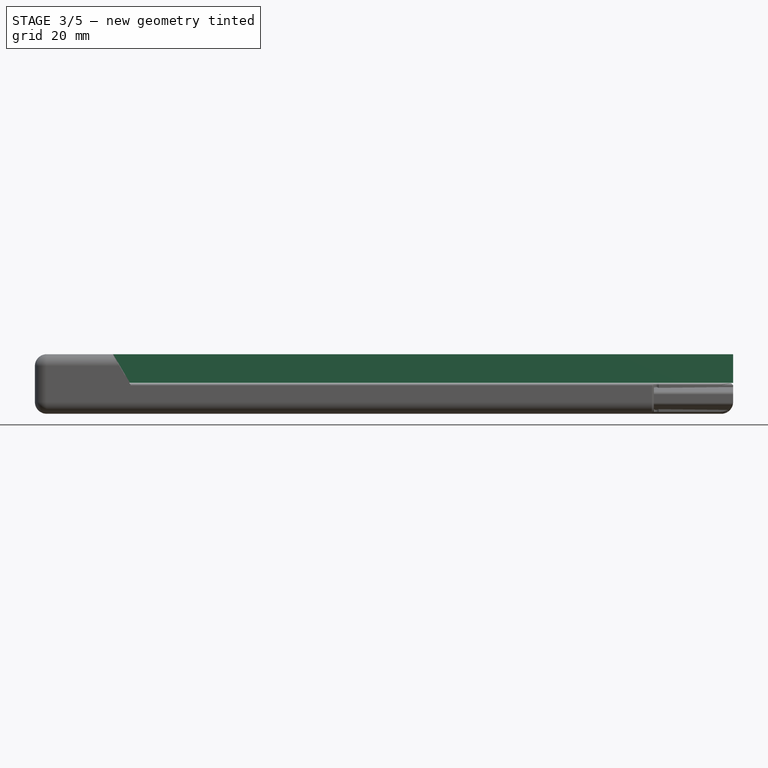
[diagram: stage 3 of 5 — front view after this stage's code; geometry added in this stage tinted green]
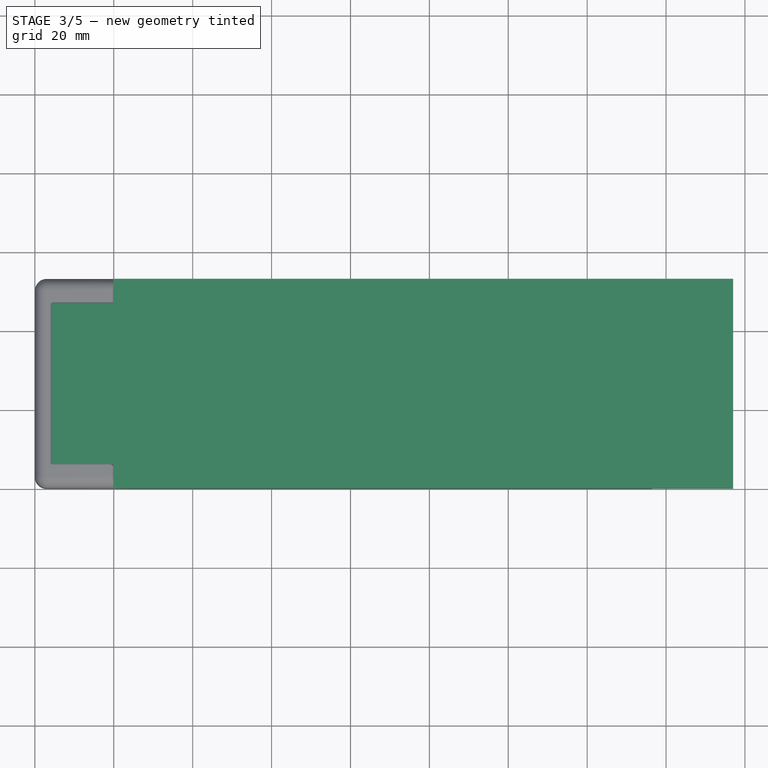
[diagram: stage 3 of 5 — top view after this stage's code; geometry added in this stage tinted green]
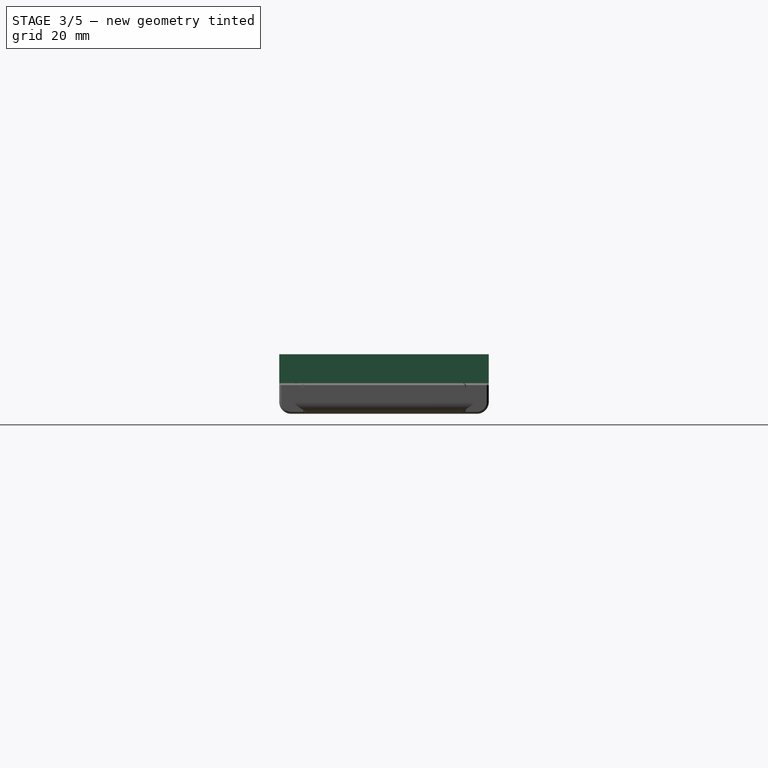
[diagram: stage 3 of 5 — right view after this stage's code; geometry added in this stage tinted green]
FEATURE [PartDesign::Pad] Pad006
  Direction = (0,0,1)
  Length = 6
  Length2 = 100
  Profile = -> Sketch015
  ReferenceAxis = -> Sketch015 [N_Axis]
  Type = 3
  UpToFace = -> Pocket013 [Face34]
FEATURE [Sketcher::SketchObject] Sketch016
  ExternalGeometry = -> [Pad006]
  FullyConstrained = false
  MapMode = 5
  Placement = pos=(0,0,0) rot=(0.57735,-0.57735,-0.57735;2.0944rad)
  Support = -> [Pad006]
  sketch-geometry (12):
    g0: LineSegment StartX=-49 StartY=5.75 StartZ=0 EndX=-49 EndY=7.65 EndZ=0
    g1: LineSegment StartX=-49 StartY=7.65 StartZ=0 EndX=-47 EndY=11 EndZ=0
    g2: LineSegment StartX=-47 StartY=11 StartZ=0 EndX=-47 EndY=13.1 EndZ=0
    g3: LineSegment StartX=-4.1 StartY=5.75 StartZ=0 EndX=-4.1 EndY=7.65 EndZ=0
    g4: LineSegment StartX=-4.1 StartY=7.65 StartZ=0 EndX=-6.1 EndY=11 EndZ=0
    g5: LineSegment StartX=-6.1 StartY=11 StartZ=0 EndX=-6.1 EndY=13.1 EndZ=0
    g6: LineSegment StartX=-53.1 StartY=13.1 StartZ=0 EndX=-47 EndY=13.1 EndZ=0
    g7: LineSegment StartX=-4.1 StartY=5.75 StartZ=0 EndX=0 EndY=5.75 EndZ=0
    g8: LineSegment StartX=0 StartY=13.1 StartZ=0 EndX=-6.1 EndY=13.1 EndZ=0
    g9: LineSegment StartX=-53.1 StartY=13.1 StartZ=0 EndX=-53.1 EndY=5.75 EndZ=0
    g10: LineSegment StartX=-53.1 StartY=5.75 StartZ=0 EndX=-49 EndY=5.75 EndZ=0
    g11: LineSegment StartX=0 StartY=13.1 StartZ=0 EndX=0 EndY=5.75 EndZ=0
  constraints (22):
    c: Vertical(g0)
    c: Coincident(g1,g0)
    c: Coincident(g2,g1)
    c: Vertical(g3)
    c: Coincident(g4,g3)
    c: Coincident(g5,g4)
    c: Vertical(g5)
    c: DistanceY(g3,g3) = 1.9
    c: DistanceY(g5,g5) = 2.1
    c: Vertical(g2)
    c: Coincident(g6,g2)
    c: Coincident(g7,g3)
    c: Coincident(g8,g5)
    c: Horizontal(g8)
    c: Coincident(g9,g6)
    c: Coincident(g10,g9)
    c: Coincident(g10,g0)
    c: Horizontal(g10)
    c: Coincident(g11,g8)
    c: Coincident(g11,g7)
    c: Horizontal(g0,g3)
    c: Horizontal(g4,g1)
FEATURE [PartDesign::Pocket] Pocket008
  BaseFeature = -> Pad006
  Direction = (1,0,0)
  Length = 24.1
  Length2 = 100
  Profile = -> Sketch016
  Refine = true
  Type = 0
FEATURE [Sketcher::SketchObject] Sketch017
  ExternalGeometry = -> [Pocket008]
  FullyConstrained = true
  MapMode = 5
  Placement = pos=(0,0,0) rot=(1,0,0;1.5708rad)
  Support = -> [Pocket008]
  sketch-geometry (3):
    g0: LineSegment StartX=24.1 StartY=13.1 StartZ=0 EndX=19.8565 EndY=13.1 EndZ=0
    g1: LineSegment StartX=19.8565 StartY=13.1 StartZ=0 EndX=24.1 EndY=5.75 EndZ=0
    g2: LineSegment StartX=24.1 StartY=13.1 StartZ=0 EndX=24.1 EndY=5.75 EndZ=0
  constraints (7):
    c: Coincident(g0,g-3)
    c: Horizontal(g0)
    c: Coincident(g1,g0)
    c: Coincident(g1,g-3)
    c: Angle(g-3,g1,g1) = 0.523599
    c: Coincident(g2,g0)
    c: Coincident(g2,g1)
FEATURE [PartDesign::Pad] Pad007
  BaseFeature = -> Pocket008
  Direction = (0,-1,2e-16)
  Length = 10
  Length2 = 100
  Profile = -> Sketch017
  Refine = true
  Type = 3
  UpToFace = -> Pocket008 [Face10]
FEATURE [Sketcher::SketchObject] Sketch018
  ExternalGeometry = -> [Pad007]
  FullyConstrained = true
  MapMode = 5
  Placement = pos=(0,1e-16,0) rot=(1,0,0;1.5708rad)
  Support = -> [Pad007]
  sketch-geometry (6):
    g0: LineSegment StartX=0 StartY=13.1 StartZ=0 EndX=0 EndY=5.75 EndZ=0
    g1: LineSegment StartX=0 StartY=5.75 StartZ=0 EndX=2.1 EndY=5.75 EndZ=0
    g2: LineSegment StartX=2.1 StartY=5.75 StartZ=0 EndX=2.1 EndY=7.65 EndZ=0
    g3: LineSegment StartX=4.1 StartY=13.1 StartZ=0 EndX=4.1 EndY=11 EndZ=0
    g4: LineSegment StartX=4.1 StartY=11 StartZ=0 EndX=2.1 EndY=7.65 EndZ=0
    g5: LineSegment StartX=0 StartY=13.1 StartZ=0 EndX=4.1 EndY=13.1 EndZ=0
  constraints (16):
    c: Coincident(g0,g-3)
    c: Coincident(g0,g-4)
    c: Coincident(g1,g0)
    c: Horizontal(g1)
    c: Coincident(g2,g1)
    c: Vertical(g2)
    c: Vertical(g3)
    c: Coincident(g4,g3)
    c: Coincident(g4,g2)
    c: DistanceX(g0,g3) = 4.1
    c: DistanceX(g1,g1) = 2.1
    c: DistanceY(g3,g3) = 2.1
    c: DistanceY(g2,g2) = 1.9
    c: Coincident(g5,g0)
    c: Coincident(g5,g3)
    c: Horizontal(g5)
FEATURE [PartDesign::Pocket] Pocket009
  BaseFeature = -> Pad007
  Direction = (0,1,-2e-16)
  Length = 0
  Length2 = 100
  Profile = -> Sketch018
  Type = 3
  UpToFace = -> Pad007 [Face14]
FEATURE [Sketcher::SketchObject] Sketch019
  ExternalGeometry = -> [Pocket009]
  FullyConstrained = true
  MapMode = 5
  Placement = pos=(0,0,0) rot=(0.57735,0.57735,0.57735;2.0944rad)
  Support = -> [YZ_Plane001]
  sketch-geometry (2):
    g0: Circle CenterX=26.55 CenterY=4.55 CenterZ=0 NormalX=0 NormalY=0 NormalZ=1 AngleXU=0 Radius=4.55
    g1: GeomPoint X=26.55 Y=13.1 Z=0
  constraints (4):
    c: Tangent(g0,g-1)
    c: Radius(g0) = 4.55
    c: Symmetric(g-3,g-3,g1)
    c: Vertical(g1,g0)
FEATURE [PartDesign::Pocket] Pocket010
  BaseFeature = -> Pocket009
  Direction = (0,0,1)
  Length = 0.1
  Length2 = 100
  Profile = -> Pocket009 [Face2]
  Type = 0
FEATURE [PartDesign::Body] Body001  label="MKII Top Clean"
  Group = -> [CopyPocket007,Sketch015,Pad006,Sketch016,Pocket008,Sketch017,Pad007,Sketch018,Pocket009,Sketch019,Pocket010,Pocket011,Sketch020,Pad008,Fillet002,Fillet006,Fillet007,Chamfer002,Pocket015,Pocket016,Fillet010,ShapeString002,Sketch029,Pad013,ShapeBinder,Pocket023,Sketch030,Pocket024,Pocket025]
  Origin = -> Origin001
  Tip = -> Pocket025
FEATURE [Sketcher::SketchObject] Sketch028
  ExternalGeometry = -> [Fillet005]
  FullyConstrained = true
  MapMode = 5
  Placement = pos=(0,0,5.75) rot=(0,0,1;0rad)
  Support = -> [Fillet005]
  sketch-geometry (15):
    g0: LineSegment StartX=156.9 StartY=5.75 StartZ=0 EndX=158.1 EndY=5.75 EndZ=0
    g1: LineSegment StartX=158.1 StartY=5.75 StartZ=0 EndX=174 EndY=6 EndZ=0
    g2: LineSegment StartX=156.4 StartY=6.5 StartZ=0 EndX=156.4 EndY=5.75 EndZ=0
    g3: ArcOfCircle CenterX=157.5 CenterY=5.155 CenterZ=0 NormalX=0 NormalY=0 NormalZ=1 AngleXU=0 Radius=0.845 StartAngle=0.781214 EndAngle=2.36038
    g4: LineSegment StartX=174 StartY=47.1 StartZ=0 EndX=158.1 EndY=47.35 EndZ=0
    g5: LineSegment StartX=158.1 StartY=47.35 StartZ=0 EndX=156.9 EndY=47.35 EndZ=0
    g6: LineSegment StartX=156.9 StartY=47.35 StartZ=0 EndX=156.4 EndY=47.35 EndZ=0
    g7: LineSegment StartX=156.4 StartY=47.35 StartZ=0 EndX=156.4 EndY=46.6 EndZ=0
    g8: LineSegment StartX=156.4 StartY=5.75 StartZ=0 EndX=156.9 EndY=5.75 EndZ=0
    g9: LineSegment StartX=156.9 StartY=47.1 StartZ=0 EndX=156.9 EndY=47.35 EndZ=0
    g10: ArcOfCircle CenterX=157.5 CenterY=47.945 CenterZ=0 NormalX=0 NormalY=0 NormalZ=1 AngleXU=0 Radius=0.845 StartAngle=3.92281 EndAngle=5.50197
    g11: LineSegment StartX=156.4 StartY=46.6 StartZ=0 EndX=174 EndY=46.6 EndZ=0
    g12: LineSegment StartX=174 StartY=46.6 StartZ=0 EndX=174 EndY=47.1 EndZ=0
    g13: LineSegment StartX=174 StartY=6 StartZ=0 EndX=174 EndY=6.5 EndZ=0
    g14: LineSegment StartX=174 StartY=6.5 StartZ=0 EndX=156.4 EndY=6.5 EndZ=0
  constraints (40):
    c: Horizontal(g0)
    c: Distance(g0) = 1.2
    c: PointOnObject(g2,g-4)
    c: PointOnObject(g2,g-4)
    c: Distance(g2) = 0.75
    c: Coincident(g1,g0)
    c: Coincident(g-5,g1)
    c: Coincident(g3,g1)
    c: Tangent(g3,g-6)
    c: Coincident(g5,g4)
    c: Horizontal(g5)
    c: Coincident(g6,g5)
    c: PointOnObject(g6,g-8)
    c: Coincident(g7,g6)
    c: Horizontal(g6)
    c: Equal(g5,g0)
    c: Equal(g2,g7)
    c: Coincident(g0,g3)
    c: Coincident(g8,g2)
    c: Horizontal(g8)
    c: PointOnObject(g8,g-10)
    c: Coincident(g3,g8)
    c: Coincident(g9,g-9)
    c: Coincident(g9,g6)
    c: Vertical(g9)
    c: Coincident(g10,g6)
    c: Coincident(g10,g4)
    c: Tangent(g10,g-9)
    c: Coincident(g7,g-8)
    c: Coincident(g11,g7)
    c: PointOnObject(g11,g-7)
    c: Horizontal(g11)
    c: Coincident(g12,g11)
    c: Coincident(g12,g4)
    c: Coincident(g4,g-7)
    c: Coincident(g13,g1)
    c: Coincident(g13,g-5)
    c: Coincident(g14,g13)
    c: Coincident(g14,g2)
    c: Horizontal(g14)
FEATURE [PartDesign::Pad] Pad012
  BaseFeature = -> Fillet005
  Direction = (0,0,1)
  Length = 1
  Length2 = 10
  Profile = -> Sketch028
  ReferenceAxis = -> Sketch028 [N_Axis]
  Refine = true
  Reversed = true
  Type = 3
  UpToFace = -> Fillet005 [Face119]
FEATURE [PartDesign::Chamfer] Chamfer
  Angle = 45
  Base = -> Pad012 [Edge249,Edge222,Edge250,Edge239,Edge190,Edge240]
  BaseFeature = -> Pad012
  ChamferType = 0
  FlipDirection = false
  Size = 0.49
  Size2 = 1
  SupportTransform = false
  UseAllEdges = false
FEATURE [Sketcher::SketchObject] Sketch031
  ExternalGeometry = -> [Chamfer]
  FullyConstrained = true
  MapMode = 5
  Placement = pos=(-1e-16,1e-16,5.75) rot=(0,0,1;0rad)
  Support = -> [Chamfer]
  sketch-geometry (6):
    g0: LineSegment StartX=174 StartY=6 StartZ=0 EndX=176.5 EndY=6.5 EndZ=0
    g1: LineSegment StartX=176.5 StartY=6.5 StartZ=0 EndX=174 EndY=6.5 EndZ=0
    g2: LineSegment StartX=174 StartY=6.5 StartZ=0 EndX=174 EndY=6 EndZ=0
    g3: LineSegment StartX=174 StartY=46.6 StartZ=0 EndX=174 EndY=47.1 EndZ=0
    g4: LineSegment StartX=174 StartY=47.1 StartZ=0 EndX=176.5 EndY=46.6 EndZ=0
    g5: LineSegment StartX=176.5 StartY=46.6 StartZ=0 EndX=174 EndY=46.6 EndZ=0
  constraints (12):
    c: Coincident(g-6,g0)
    c: Coincident(g0,g-5)
    c: Coincident(g0,g1)
    c: Coincident(g1,g-6)
    c: Coincident(g1,g2)
    c: Coincident(g2,g0)
    c: Coincident(g-4,g3)
    c: Coincident(g3,g-4)
    c: Coincident(g3,g4)
    c: Coincident(g4,g-3)
    c: Coincident(g4,g5)
    c: Coincident(g5,g3)
FEATURE [PartDesign::Pad] Pad014
  BaseFeature = -> Chamfer
  Direction = (0,0,1)
  Length = 2
  Length2 = 10
  Profile = -> Sketch031
  ReferenceAxis = -> Sketch031 [N_Axis]
  Refine = true
  Reversed = true
  Type = 0
FEATURE [PartDesign::Chamfer] Chamfer003
  Angle = 45
  Base = -> Pad014 [Edge192,Edge187,Edge184,Edge138,Edge125,Edge90]
  BaseFeature = -> Pad014
  ChamferType = 0
  FlipDirection = false
  Size = 0.35
  Size2 = 1
  SupportTransform = false
  UseAllEdges = false
FEATURE [PartDesign::Pocket] Pocket026
  BaseFeature = -> Chamfer003
  Direction = (0,0,-1)
  Length = 0
  Length2 = 5
  Offset = 0.5
  Profile = -> Sketch026
  ReferenceAxis = -> Sketch026 [N_Axis]
  Reversed = true
  Type = 3
  UpToFace = -> Chamfer003 [Face60]
FEATURE [PartDesign::Body] Body  label="MKII Bottom"
  Group = -> [Sketch,Pad,Sketch001,Pad001,Sketch003,Pocket,Pocket001,Sketch004,Pad002,Sketch005,Sketch006,Groove,Sketch007,Pad003,Sketch008,Pocket002,Fillet,Sketch011,Pocket006,Fillet001,Sketch012,Pad004,Sketch013,Pad005,Sketch014,Pocket007,Sketch022,Pocket013,Fillet003,Chamfer001,Fillet004,Fillet005,Sketch026,Sketch028,Pad012,Chamfer,Sketch031,Pad014,Chamfer003,Pocket026]
  Origin = -> Origin
  Tip = -> Pocket026
FEATURE [App::Part] Part  label="AP2-"
  Group = -> [Body,Body001,Body002,Body003,Clone002]
  Origin = -> Origin004
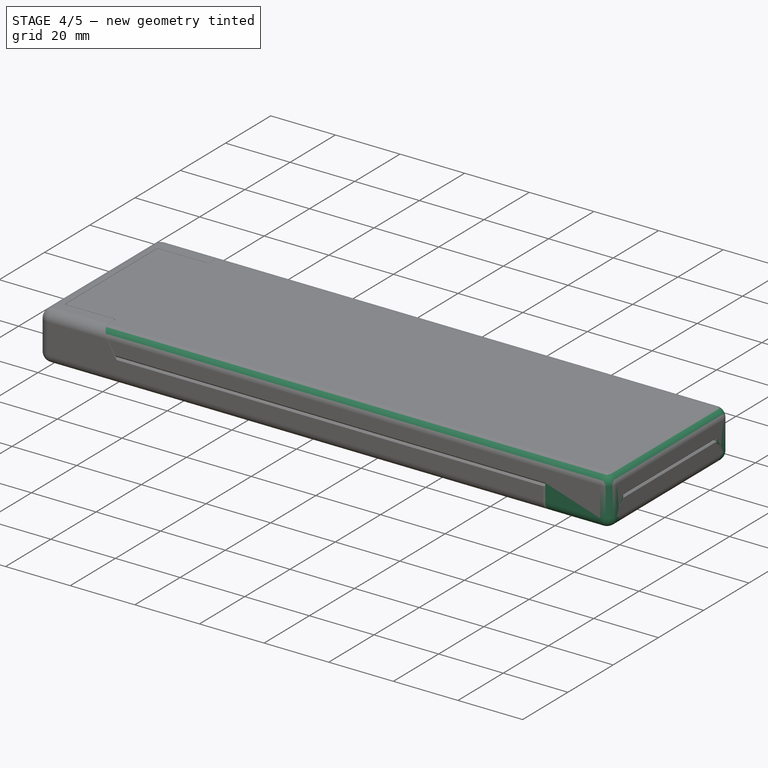
[diagram: stage 4 of 5 — iso view after this stage's code; geometry added in this stage tinted green]
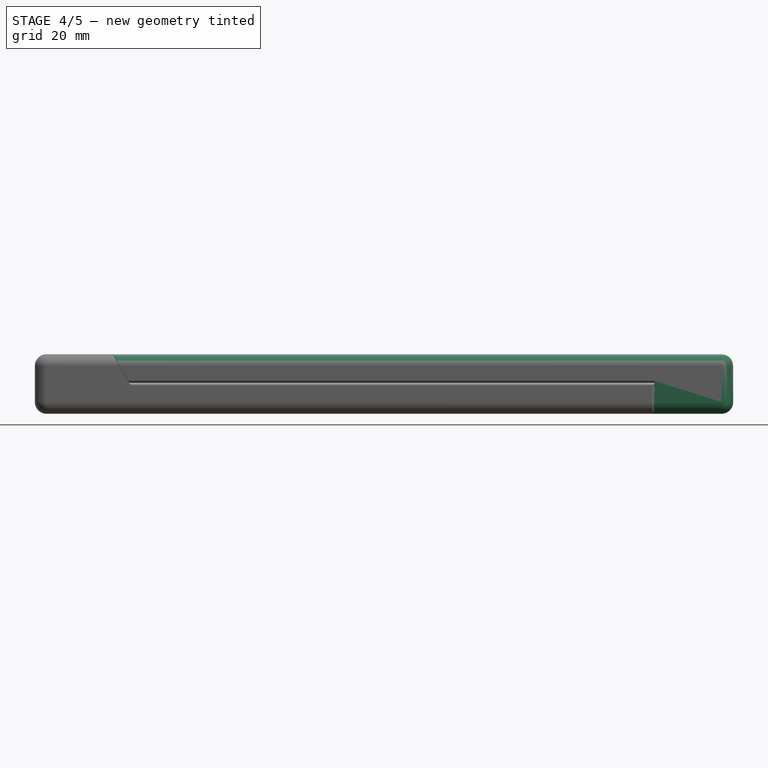
[diagram: stage 4 of 5 — front view after this stage's code; geometry added in this stage tinted green]
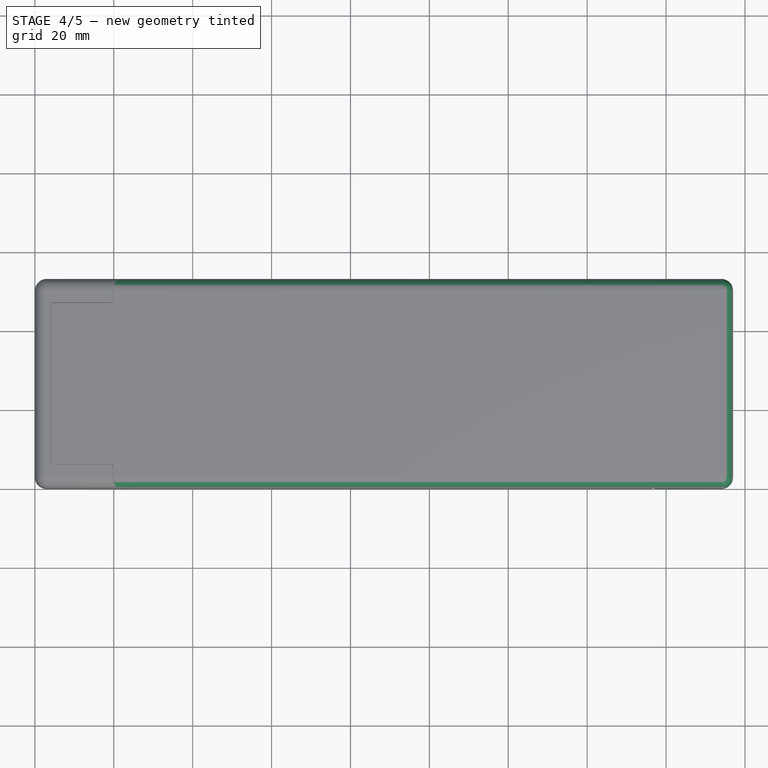
[diagram: stage 4 of 5 — top view after this stage's code; geometry added in this stage tinted green]
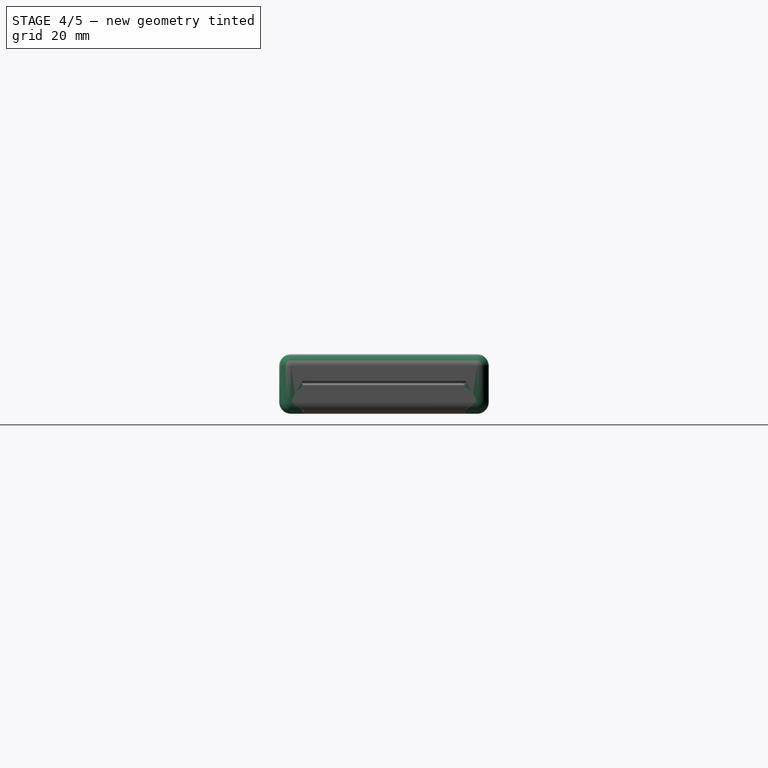
[diagram: stage 4 of 5 — right view after this stage's code; geometry added in this stage tinted green]
FEATURE [PartDesign::Pocket] Pocket011
  BaseFeature = -> Pocket010
  Direction = (-1,2e-16,-3e-16)
  Length = 175
  Length2 = 100
  Profile = -> Sketch019
  Reversed = true
  Type = 0
FEATURE [Sketcher::SketchObject] Sketch020
  ExternalGeometry = -> [Pocket011]
  FullyConstrained = true
  MapMode = 5
  Placement = pos=(177,0,0) rot=(0.57735,0.57735,0.57735;2.0944rad)
  Support = -> [Pocket011]
  sketch-geometry (24):
    g0: LineSegment StartX=0 StartY=5.85 StartZ=0 EndX=5.9 EndY=5.85 EndZ=0
    g1: LineSegment StartX=5.9 StartY=5.85 StartZ=0 EndX=5.9 EndY=4.8 EndZ=0
    g2: LineSegment StartX=5.9 StartY=-1.05 StartZ=0 EndX=5.9 EndY=-2 EndZ=0
    g3: LineSegment StartX=53.1 StartY=5.85 StartZ=0 EndX=47.2 EndY=5.85 EndZ=0
    g4: LineSegment StartX=47.2 StartY=5.85 StartZ=0 EndX=47.2 EndY=4.8 EndZ=0
    g5: LineSegment StartX=47.2 StartY=-2 StartZ=0 EndX=47.2 EndY=-1.05 EndZ=0
    g6: GeomPoint X=0 Y=-2 Z=0
    g7: GeomPoint X=53.1 Y=-2 Z=0
    g8: LineSegment StartX=0 StartY=5.85 StartZ=0 EndX=0 EndY=-2 EndZ=0
    g9: LineSegment StartX=5.9 StartY=-2 StartZ=0 EndX=0 EndY=-2 EndZ=0
    g10: LineSegment StartX=53.1 StartY=5.85 StartZ=0 EndX=53.1 EndY=-2 EndZ=0
    g11: LineSegment StartX=53.1 StartY=-2 StartZ=0 EndX=47.2 EndY=-2 EndZ=0
    g12: LineSegment StartX=47.2 StartY=4.8 StartZ=0 EndX=48.7286 EndY=3.71561 EndZ=0
    g13: LineSegment StartX=49.15 StartY=2.9 StartZ=0 EndX=49.15 EndY=0.85 EndZ=0
    g14: LineSegment StartX=48.7286 StartY=0.034386 StartZ=0 EndX=47.2 EndY=-1.05 EndZ=0
    g15: ArcOfCircle CenterX=48.15 CenterY=0.85 CenterZ=0 NormalX=0 NormalY=0 NormalZ=1 AngleXU=0 Radius=1 StartAngle=5.3294 EndAngle=6.28319
    g16: ArcOfCircle CenterX=48.15 CenterY=2.9 CenterZ=0 NormalX=0 NormalY=0 NormalZ=1 AngleXU=0 Radius=1 StartAngle=0 EndAngle=0.95379
    g17: LineSegment StartX=49.15 StartY=0.85 StartZ=0 EndX=53.1 EndY=0.85 EndZ=0
    g18: LineSegment StartX=5.9 StartY=4.8 StartZ=0 EndX=4.3714 EndY=3.71561 EndZ=0
    g19: LineSegment StartX=3.95 StartY=2.9 StartZ=0 EndX=3.95 EndY=0.85 EndZ=0
    g20: LineSegment StartX=4.3714 StartY=0.034386 StartZ=0 EndX=5.9 EndY=-1.05 EndZ=0
    g21: ArcOfCircle CenterX=4.95 CenterY=2.9 CenterZ=0 NormalX=0 NormalY=0 NormalZ=1 AngleXU=0 Radius=1 StartAngle=2.1878 EndAngle=3.14159
    g22: ArcOfCircle CenterX=4.95 CenterY=0.85 CenterZ=0 NormalX=0 NormalY=0 NormalZ=1 AngleXU=0 Radius=1 StartAngle=3.14159 EndAngle=4.09538
    g23: LineSegment StartX=3.95 StartY=0.85 StartZ=0 EndX=0 EndY=0.85 EndZ=0
  constraints (62):
    c: PointOnObject(g0,g-3)
    c: Coincident(g1,g0)
    c: Vertical(g1)
    c: Vertical(g2)
    c: DistanceX(g0,g0) = 5.9
    c: DistanceY(g1,g1) = 1.05
    c: DistanceY(g2,g2) = 0.95
    c: PointOnObject(g3,g-3)
    c: Coincident(g4,g3)
    c: Vertical(g4)
    c: Vertical(g5)
    c: DistanceX(g3,g3) = 5.9
    c: PointOnObject(g6,g-2)
    c: Horizontal(g7,g6)
    c: DistanceY(g6,g-1) = 2
    c: Coincident(g0,g-3)
    c: Coincident(g8,g0)
    c: Coincident(g8,g6)
    c: Coincident(g9,g2)
    c: Coincident(g9,g8)
    c: Horizontal(g9)
    c: DistanceX(g9,g9) = 5.9
    c: Coincident(g10,g3)
    c: Coincident(g10,g7)
    c: Vertical(g10)
    c: Coincident(g3,g-3)
    c: Coincident(g11,g10)
    c: Horizontal(g11)
    c: DistanceX(g11,g11) = 5.9
    c: Coincident(g5,g11)
    c: Horizontal(g2,g5)
    c: Horizontal(g4,g1)
    c: Coincident(g12,g4)
    c: Vertical(g13)
    c: Coincident(g14,g5)
    c: Tangent(g13,g15) = 1.5708
    c: Tangent(g14,g15) = 1.5708
    c: Tangent(g13,g16) = 1.5708
    c: Tangent(g12,g16) = 1.5708
    c: Equal(g15,g16)
    c: Coincident(g17,g13)
    c: PointOnObject(g17,g10)
    c: Horizontal(g17)
    c: Distance(g17) = 3.95
    c: Distance(g13) = 2.05
    c: Radius(g16) = 1
    c: Equal(g12,g14)
    c: Coincident(g18,g1)
    c: Coincident(g20,g2)
    c: Vertical(g19)
    c: Tangent(g18,g21) = -1.5708
    c: Tangent(g19,g21) = -1.5708
    c: Tangent(g19,g22) = -1.5708
    c: Tangent(g20,g22) = -1.5708
    c: Equal(g21,g22)
    c: Equal(g18,g20)
    c: Distance(g19) = 2.05
    c: Radius(g21) = 1
    c: Coincident(g23,g19)
    c: PointOnObject(g23,g8)
    c: Horizontal(g23)
    c: Distance(g23) = 3.95
FEATURE [PartDesign::Pad] Pad008
  BaseFeature = -> Pocket011
  Direction = (1,0,0)
  Length = 20
  Length2 = 100
  Profile = -> Sketch020
  Refine = true
  Reversed = true
  Type = 0
FEATURE [PartDesign::Fillet] Fillet002
  Base = -> Pad008 [Edge94,Edge111,Edge40,Edge93,Edge110,Edge99,Edge87,Edge41,Edge88]
  BaseFeature = -> Pad008
  Radius = 3
  SupportTransform = false
  UseAllEdges = false
FEATURE [PartDesign::Fillet] Fillet006
  Base = -> Fillet002 [Edge133,Edge135,Edge95,Edge142,Edge136,Edge103]
  BaseFeature = -> Fillet002
  Radius = 0.5
  SupportTransform = false
  UseAllEdges = false
FEATURE [PartDesign::Fillet] Fillet007
  Base = -> Fillet006 [Edge23,Edge90,Edge95,Edge70,Edge140,Edge144]
  BaseFeature = -> Fillet006
  Radius = 0.5
  SupportTransform = false
  UseAllEdges = false
FEATURE [PartDesign::Chamfer] Chamfer002
  Angle = 45
  Base = -> Fillet007 [Edge10,Edge22,Edge16]
  BaseFeature = -> Fillet007
  ChamferType = 0
  FlipDirection = false
  Size = 0.5
  Size2 = 1
  SupportTransform = false
  UseAllEdges = false
FEATURE [PartDesign::Pocket] Pocket015
  BaseFeature = -> Chamfer002
  Direction = (-1,0,0)
  Length = 5
  Length2 = 100
  Profile = -> Chamfer002 [Face2]
  Refine = true
  Type = 0
FEATURE [PartDesign::Pocket] Pocket016
  BaseFeature = -> Pocket015
  Direction = (-1,0,0)
  Length = 5
  Length2 = 100
  Profile = -> Pocket015 [Face14]
  Refine = true
  Type = 0
FEATURE [Part::Part2DObjectPython] ShapeString  label="Engraving002"  # Draft 2D object (typed FeaturePython)
  FontFile = <userpath>/Documents/FreeCad/Font/Gidole-Regular.ttf
  Placement = pos=(157.5,39.1,13.1) rot=(0,0,1;0rad)
  Size = 10
  String = AP
  Tracking = 0
FEATURE [Part::Part2DObjectPython] ShapeString001  label="Engraving"  # Draft 2D object (typed FeaturePython)
  FontFile = <userpath>/Documents/FreeCad/Font/Gidole-Regular.ttf
  Placement = pos=(158.5,39.1,13.1) rot=(0,0,1;0rad)
  Size = 10
  String = AP
  Tracking = 0
FEATURE [Part::Feature] Compound
  shape: bbox 205 x 48 x 2e-07 mm, 19 faces, 0 solids (baked)
FEATURE [Part::Mirroring] mirror  label="16BitVS (Import and Mirrored)"
  Base = (1,-30,0)
  Normal = (-1,0,0)
  Source = -> Compound
FEATURE [Part::FeaturePython] Clone002  label="Logo"  # Draft clone (typed FeaturePython)
  AttacherType = Attacher::AttachEngine3D
  Fuse = false
  Objects = -> [mirror]
  Placement = pos=(-0.15,0,0) rot=(0,0,1;0rad)
  Scale = (0.25,0.25,1)
FEATURE [Sketcher::SketchObject] Sketch026
  FullyConstrained = false
  Placement = pos=(114.275,32.49,-10) rot=(0,0,1;3.14159rad)
  sketch-geometry (860):
    g0: BSplineCurve PolesCount=2 KnotsCount=2 Degree=1 IsPeriodic=0
    g1: BSplineCurve PolesCount=2 KnotsCount=2 Degree=1 IsPeriodic=0
    g2: BSplineCurve PolesCount=2 KnotsCount=2 Degree=1 IsPeriodic=0
    g3: BSplineCurve PolesCount=2 KnotsCount=2 Degree=1 IsPeriodic=0
    g4: BSplineCurve PolesCount=2 KnotsCount=2 Degree=1 IsPeriodic=0
    g5: BSplineCurve PolesCount=2 KnotsCount=2 Degree=1 IsPeriodic=0
    g6: BSplineCurve PolesCount=2 KnotsCount=2 Degree=1 IsPeriodic=0
    g7: BSplineCurve PolesCount=2 KnotsCount=2 Degree=1 IsPeriodic=0
    g8: BSplineCurve PolesCount=2 KnotsCount=2 Degree=1 IsPeriodic=0
    g9: BSplineCurve PolesCount=2 KnotsCount=2 Degree=1 IsPeriodic=0
    g10: BSplineCurve PolesCount=2 KnotsCount=2 Degree=1 IsPeriodic=0
    g11: BSplineCurve PolesCount=2 KnotsCount=2 Degree=1 IsPeriodic=0
    g12: BSplineCurve PolesCount=2 KnotsCount=2 Degree=1 IsPeriodic=0
    g13: BSplineCurve PolesCount=2 KnotsCount=2 Degree=1 IsPeriodic=0
    g14: BSplineCurve PolesCount=2 KnotsCount=2 Degree=1 IsPeriodic=0
    g15: BSplineCurve PolesCount=2 KnotsCount=2 Degree=1 IsPeriodic=0
    g16: BSplineCurve PolesCount=2 KnotsCount=2 Degree=1 IsPeriodic=0
    g17: BSplineCurve PolesCount=2 KnotsCount=2 Degree=1 IsPeriodic=0
    g18: BSplineCurve PolesCount=2 KnotsCount=2 Degree=1 IsPeriodic=0
    g19: BSplineCurve PolesCount=2 KnotsCount=2 Degree=1 IsPeriodic=0
    g20: BSplineCurve PolesCount=2 KnotsCount=2 Degree=1 IsPeriodic=0
    g21: BSplineCurve PolesCount=2 KnotsCount=2 Degree=1 IsPeriodic=0
    g22: BSplineCurve PolesCount=2 KnotsCount=2 Degree=1 IsPeriodic=0
    g23: BSplineCurve PolesCount=2 KnotsCount=2 Degree=1 IsPeriodic=0
    g24: BSplineCurve PolesCount=2 KnotsCount=2 Degree=1 IsPeriodic=0
    g25: BSplineCurve PolesCount=2 KnotsCount=2 Degree=1 IsPeriodic=0
    g26: BSplineCurve PolesCount=2 KnotsCount=2 Degree=1 IsPeriodic=0
    g27: BSplineCurve PolesCount=2 KnotsCount=2 Degree=1 IsPeriodic=0
    g28: BSplineCurve PolesCount=2 KnotsCount=2 Degree=1 IsPeriodic=0
    g29: BSplineCurve PolesCount=2 KnotsCount=2 Degree=1 IsPeriodic=0
    g30: BSplineCurve PolesCount=2 KnotsCount=2 Degree=1 IsPeriodic=0
    g31: BSplineCurve PolesCount=2 KnotsCount=2 Degree=1 IsPeriodic=0
    g32: BSplineCurve PolesCount=2 KnotsCount=2 Degree=1 IsPeriodic=0
    g33: BSplineCurve PolesCount=2 KnotsCount=2 Degree=1 IsPeriodic=0
    g34: BSplineCurve PolesCount=2 KnotsCount=2 Degree=1 IsPeriodic=0
    g35: BSplineCurve PolesCount=2 KnotsCount=2 Degree=1 IsPeriodic=0
    g36: BSplineCurve PolesCount=2 KnotsCount=2 Degree=1 IsPeriodic=0
    g37: BSplineCurve PolesCount=2 KnotsCount=2 Degree=1 IsPeriodic=0
    g38: BSplineCurve PolesCount=2 KnotsCount=2 Degree=1 IsPeriodic=0
    g39: BSplineCurve PolesCount=2 KnotsCount=2 Degree=1 IsPeriodic=0
    g40: BSplineCurve PolesCount=2 KnotsCount=2 Degree=1 IsPeriodic=0
    g41: BSplineCurve PolesCount=2 KnotsCount=2 Degree=1 IsPeriodic=0
    g42: BSplineCurve PolesCount=2 KnotsCount=2 Degree=1 IsPeriodic=0
    g43: BSplineCurve PolesCount=2 KnotsCount=2 Degree=1 IsPeriodic=0
    g44: BSplineCurve PolesCount=2 KnotsCount=2 Degree=1 IsPeriodic=0
    g45: BSplineCurve PolesCount=2 KnotsCount=2 Degree=1 IsPeriodic=0
    g46: BSplineCurve PolesCount=2 KnotsCount=2 Degree=1 IsPeriodic=0
    g47: BSplineCurve PolesCount=2 KnotsCount=2 Degree=1 IsPeriodic=0
    g48: BSplineCurve PolesCount=2 KnotsCount=2 Degree=1 IsPeriodic=0
    g49: BSplineCurve PolesCount=2 KnotsCount=2 Degree=1 IsPeriodic=0
    g50: BSplineCurve PolesCount=2 KnotsCount=2 Degree=1 IsPeriodic=0
    g51: BSplineCurve PolesCount=2 KnotsCount=2 Degree=1 IsPeriodic=0
    g52: BSplineCurve PolesCount=2 KnotsCount=2 Degree=1 IsPeriodic=0
    g53: BSplineCurve PolesCount=2 KnotsCount=2 Degree=1 IsPeriodic=0
    g54: BSplineCurve PolesCount=2 KnotsCount=2 Degree=1 IsPeriodic=0
    g55: BSplineCurve PolesCount=2 KnotsCount=2 Degree=1 IsPeriodic=0
    g56: BSplineCurve PolesCount=2 KnotsCount=2 Degree=1 IsPeriodic=0
    g57: BSplineCurve PolesCount=2 KnotsCount=2 Degree=1 IsPeriodic=0
    g58: BSplineCurve PolesCount=2 KnotsCount=2 Degree=1 IsPeriodic=0
    g59: BSplineCurve PolesCount=2 KnotsCount=2 Degree=1 IsPeriodic=0
    g60: BSplineCurve PolesCount=2 KnotsCount=2 Degree=1 IsPeriodic=0
    g61: BSplineCurve PolesCount=2 KnotsCount=2 Degree=1 IsPeriodic=0
    g62: BSplineCurve PolesCount=2 KnotsCount=2 Degree=1 IsPeriodic=0
    g63: BSplineCurve PolesCount=2 KnotsCount=2 Degree=1 IsPeriodic=0
    g64: BSplineCurve PolesCount=2 KnotsCount=2 Degree=1 IsPeriodic=0
    g65: BSplineCurve PolesCount=2 KnotsCount=2 Degree=1 IsPeriodic=0
    g66: BSplineCurve PolesCount=2 KnotsCount=2 Degree=1 IsPeriodic=0
    g67: BSplineCurve PolesCount=2 KnotsCount=2 Degree=1 IsPeriodic=0
    g68: BSplineCurve PolesCount=2 KnotsCount=2 Degree=1 IsPeriodic=0
    g69: BSplineCurve PolesCount=2 KnotsCount=2 Degree=1 IsPeriodic=0
    g70: BSplineCurve PolesCount=2 KnotsCount=2 Degree=1 IsPeriodic=0
    g71: BSplineCurve PolesCount=2 KnotsCount=2 Degree=1 IsPeriodic=0
    g72: BSplineCurve PolesCount=2 KnotsCount=2 Degree=1 IsPeriodic=0
    g73: BSplineCurve PolesCount=2 KnotsCount=2 Degree=1 IsPeriodic=0
    g74: BSplineCurve PolesCount=2 KnotsCount=2 Degree=1 IsPeriodic=0
    g75: BSplineCurve PolesCount=2 KnotsCount=2 Degree=1 IsPeriodic=0
    g76: BSplineCurve PolesCount=2 KnotsCount=2 Degree=1 IsPeriodic=0
    g77: BSplineCurve PolesCount=2 KnotsCount=2 Degree=1 IsPeriodic=0
    g78: BSplineCurve PolesCount=2 KnotsCount=2 Degree=1 IsPeriodic=0
    g79: BSplineCurve PolesCount=2 KnotsCount=2 Degree=1 IsPeriodic=0
    g80: BSplineCurve PolesCount=2 KnotsCount=2 Degree=1 IsPeriodic=0
    g81: BSplineCurve PolesCount=2 KnotsCount=2 Degree=1 IsPeriodic=0
    g82: BSplineCurve PolesCount=2 KnotsCount=2 Degree=1 IsPeriodic=0
    g83: BSplineCurve PolesCount=2 KnotsCount=2 Degree=1 IsPeriodic=0
    g84: BSplineCurve PolesCount=2 KnotsCount=2 Degree=1 IsPeriodic=0
    g85: BSplineCurve PolesCount=2 KnotsCount=2 Degree=1 IsPeriodic=0
    g86: BSplineCurve PolesCount=2 KnotsCount=2 Degree=1 IsPeriodic=0
    g87: BSplineCurve PolesCount=2 KnotsCount=2 Degree=1 IsPeriodic=0
    g88: BSplineCurve PolesCount=2 KnotsCount=2 Degree=1 IsPeriodic=0
    g89: BSplineCurve PolesCount=2 KnotsCount=2 Degree=1 IsPeriodic=0
    g90: BSplineCurve PolesCount=2 KnotsCount=2 Degree=1 IsPeriodic=0
    g91: BSplineCurve PolesCount=2 KnotsCount=2 Degree=1 IsPeriodic=0
    g92: BSplineCurve PolesCount=2 KnotsCount=2 Degree=1 IsPeriodic=0
    g93: BSplineCurve PolesCount=2 KnotsCount=2 Degree=1 IsPeriodic=0
    g94: BSplineCurve PolesCount=2 KnotsCount=2 Degree=1 IsPeriodic=0
    g95: BSplineCurve PolesCount=2 KnotsCount=2 Degree=1 IsPeriodic=0
    g96: BSplineCurve PolesCount=2 KnotsCount=2 Degree=1 IsPeriodic=0
    g97: BSplineCurve PolesCount=2 KnotsCount=2 Degree=1 IsPeriodic=0
    g98: BSplineCurve PolesCount=2 KnotsCount=2 Degree=1 IsPeriodic=0
    g99: BSplineCurve PolesCount=2 KnotsCount=2 Degree=1 IsPeriodic=0
    g100: BSplineCurve PolesCount=2 KnotsCount=2 Degree=1 IsPeriodic=0
    g101: BSplineCurve PolesCount=2 KnotsCount=2 Degree=1 IsPeriodic=0
    g102: BSplineCurve PolesCount=2 KnotsCount=2 Degree=1 IsPeriodic=0
    g103: BSplineCurve PolesCount=2 KnotsCount=2 Degree=1 IsPeriodic=0
    g104: BSplineCurve PolesCount=2 KnotsCount=2 Degree=1 IsPeriodic=0
    g105: BSplineCurve PolesCount=2 KnotsCount=2 Degree=1 IsPeriodic=0
    g106: BSplineCurve PolesCount=2 KnotsCount=2 Degree=1 IsPeriodic=0
    g107: BSplineCurve PolesCount=2 KnotsCount=2 Degree=1 IsPeriodic=0
    g108: BSplineCurve PolesCount=2 KnotsCount=2 Degree=1 IsPeriodic=0
    g109: BSplineCurve PolesCount=2 KnotsCount=2 Degree=1 IsPeriodic=0
    g110: BSplineCurve PolesCount=2 KnotsCount=2 Degree=1 IsPeriodic=0
    g111: BSplineCurve PolesCount=2 KnotsCount=2 Degree=1 IsPeriodic=0
    g112: BSplineCurve PolesCount=2 KnotsCount=2 Degree=1 IsPeriodic=0
    g113: BSplineCurve PolesCount=2 KnotsCount=2 Degree=1 IsPeriodic=0
    g114: BSplineCurve PolesCount=2 KnotsCount=2 Degree=1 IsPeriodic=0
    g115: BSplineCurve PolesCount=2 KnotsCount=2 Degree=1 IsPeriodic=0
    g116: BSplineCurve PolesCount=2 KnotsCount=2 Degree=1 IsPeriodic=0
    g117: BSplineCurve PolesCount=2 KnotsCount=2 Degree=1 IsPeriodic=0
    g118: BSplineCurve PolesCount=2 KnotsCount=2 Degree=1 IsPeriodic=0
    g119: BSplineCurve PolesCount=2 KnotsCount=2 Degree=1 IsPeriodic=0
    g120: BSplineCurve PolesCount=2 KnotsCount=2 Degree=1 IsPeriodic=0
    g121: BSplineCurve PolesCount=2 KnotsCount=2 Degree=1 IsPeriodic=0
    g122: BSplineCurve PolesCount=2 KnotsCount=2 Degree=1 IsPeriodic=0
    g123: BSplineCurve PolesCount=2 KnotsCount=2 Degree=1 IsPeriodic=0
    g124: BSplineCurve PolesCount=2 KnotsCount=2 Degree=1 IsPeriodic=0
    g125: BSplineCurve PolesCount=2 KnotsCount=2 Degree=1 IsPeriodic=0
    g126: BSplineCurve PolesCount=2 KnotsCount=2 Degree=1 IsPeriodic=0
    g127: BSplineCurve PolesCount=2 KnotsCount=2 Degree=1 IsPeriodic=0
    g128: BSplineCurve PolesCount=2 KnotsCount=2 Degree=1 IsPeriodic=0
    g129: BSplineCurve PolesCount=2 KnotsCount=2 Degree=1 IsPeriodic=0
    g130: BSplineCurve PolesCount=2 KnotsCount=2 Degree=1 IsPeriodic=0
    g131: BSplineCurve PolesCount=2 KnotsCount=2 Degree=1 IsPeriodic=0
    g132: BSplineCurve PolesCount=2 KnotsCount=2 Degree=1 IsPeriodic=0
    g133: BSplineCurve PolesCount=2 KnotsCount=2 Degree=1 IsPeriodic=0
    g134: BSplineCurve PolesCount=2 KnotsCount=2 Degree=1 IsPeriodic=0
    g135: BSplineCurve PolesCount=2 KnotsCount=2 Degree=1 IsPeriodic=0
    g136: BSplineCurve PolesCount=2 KnotsCount=2 Degree=1 IsPeriodic=0
    g137: BSplineCurve PolesCount=2 KnotsCount=2 Degree=1 IsPeriodic=0
    g138: BSplineCurve PolesCount=2 KnotsCount=2 Degree=1 IsPeriodic=0
    g139: BSplineCurve PolesCount=2 KnotsCount=2 Degree=1 IsPeriodic=0
    g140: BSplineCurve PolesCount=2 KnotsCount=2 Degree=1 IsPeriodic=0
    g141: BSplineCurve PolesCount=2 KnotsCount=2 Degree=1 IsPeriodic=0
    g142: BSplineCurve PolesCount=2 KnotsCount=2 Degree=1 IsPeriodic=0
    g143: BSplineCurve PolesCount=2 KnotsCount=2 Degree=1 IsPeriodic=0
    g144: BSplineCurve PolesCount=2 KnotsCount=2 Degree=1 IsPeriodic=0
    g145: BSplineCurve PolesCount=2 KnotsCount=2 Degree=1 IsPeriodic=0
    g146: BSplineCurve PolesCount=2 KnotsCount=2 Degree=1 IsPeriodic=0
    g147: BSplineCurve PolesCount=2 KnotsCount=2 Degree=1 IsPeriodic=0
    g148: BSplineCurve PolesCount=2 KnotsCount=2 Degree=1 IsPeriodic=0
    g149: BSplineCurve PolesCount=2 KnotsCount=2 Degree=1 IsPeriodic=0
    g150: BSplineCurve PolesCount=2 KnotsCount=2 Degree=1 IsPeriodic=0
    g151: BSplineCurve PolesCount=2 KnotsCount=2 Degree=1 IsPeriodic=0
    g152: BSplineCurve PolesCount=2 KnotsCount=2 Degree=1 IsPeriodic=0
    g153: BSplineCurve PolesCount=2 KnotsCount=2 Degree=1 IsPeriodic=0
    g154: BSplineCurve PolesCount=2 KnotsCount=2 Degree=1 IsPeriodic=0
    g155: BSplineCurve PolesCount=2 KnotsCount=2 Degree=1 IsPeriodic=0
    g156: BSplineCurve PolesCount=2 KnotsCount=2 Degree=1 IsPeriodic=0
    g157: BSplineCurve PolesCount=2 KnotsCount=2 Degree=1 IsPeriodic=0
    g158: BSplineCurve PolesCount=2 KnotsCount=2 Degree=1 IsPeriodic=0
    g159: BSplineCurve PolesCount=2 KnotsCount=2 Degree=1 IsPeriodic=0
    g160: BSplineCurve PolesCount=2 KnotsCount=2 Degree=1 IsPeriodic=0
    g161: BSplineCurve PolesCount=2 KnotsCount=2 Degree=1 IsPeriodic=0
    g162: BSplineCurve PolesCount=2 KnotsCount=2 Degree=1 IsPeriodic=0
    g163: BSplineCurve PolesCount=2 KnotsCount=2 Degree=1 IsPeriodic=0
    g164: BSplineCurve PolesCount=2 KnotsCount=2 Degree=1 IsPeriodic=0
    g165: BSplineCurve PolesCount=2 KnotsCount=2 Degree=1 IsPeriodic=0
    g166: BSplineCurve PolesCount=2 KnotsCount=2 Degree=1 IsPeriodic=0
    g167: BSplineCurve PolesCount=2 KnotsCount=2 Degree=1 IsPeriodic=0
    g168: BSplineCurve PolesCount=2 KnotsCount=2 Degree=1 IsPeriodic=0
    g169: BSplineCurve PolesCount=2 KnotsCount=2 Degree=1 IsPeriodic=0
    g170: BSplineCurve PolesCount=2 KnotsCount=2 Degree=1 IsPeriodic=0
    g171: BSplineCurve PolesCount=2 KnotsCount=2 Degree=1 IsPeriodic=0
    g172: BSplineCurve PolesCount=2 KnotsCount=2 Degree=1 IsPeriodic=0
    g173: BSplineCurve PolesCount=2 KnotsCount=2 Degree=1 IsPeriodic=0
    g174: BSplineCurve PolesCount=2 KnotsCount=2 Degree=1 IsPeriodic=0
    g175: BSplineCurve PolesCount=2 KnotsCount=2 Degree=1 IsPeriodic=0
    g176: BSplineCurve PolesCount=2 KnotsCount=2 Degree=1 IsPeriodic=0
    g177: BSplineCurve PolesCount=2 KnotsCount=2 Degree=1 IsPeriodic=0
    g178: BSplineCurve PolesCount=2 KnotsCount=2 Degree=1 IsPeriodic=0
    g179: BSplineCurve PolesCount=2 KnotsCount=2 Degree=1 IsPeriodic=0
    g180: BSplineCurve PolesCount=2 KnotsCount=2 Degree=1 IsPeriodic=0
    g181: BSplineCurve PolesCount=2 KnotsCount=2 Degree=1 IsPeriodic=0
    g182: BSplineCurve PolesCount=2 KnotsCount=2 Degree=1 IsPeriodic=0
    g183: BSplineCurve PolesCount=2 KnotsCount=2 Degree=1 IsPeriodic=0
    g184: BSplineCurve PolesCount=2 KnotsCount=2 Degree=1 IsPeriodic=0
    g185: BSplineCurve PolesCount=2 KnotsCount=2 Degree=1 IsPeriodic=0
    g186: BSplineCurve PolesCount=2 KnotsCount=2 Degree=1 IsPeriodic=0
    g187: BSplineCurve PolesCount=2 KnotsCount=2 Degree=1 IsPeriodic=0
    g188: BSplineCurve PolesCount=2 KnotsCount=2 Degree=1 IsPeriodic=0
    g189: BSplineCurve PolesCount=2 KnotsCount=2 Degree=1 IsPeriodic=0
    g190: BSplineCurve PolesCount=2 KnotsCount=2 Degree=1 IsPeriodic=0
    g191: BSplineCurve PolesCount=2 KnotsCount=2 Degree=1 IsPeriodic=0
    g192: BSplineCurve PolesCount=2 KnotsCount=2 Degree=1 IsPeriodic=0
    g193: BSplineCurve PolesCount=2 KnotsCount=2 Degree=1 IsPeriodic=0
    g194: BSplineCurve PolesCount=2 KnotsCount=2 Degree=1 IsPeriodic=0
    g195: BSplineCurve PolesCount=2 KnotsCount=2 Degree=1 IsPeriodic=0
    g196: BSplineCurve PolesCount=2 KnotsCount=2 Degree=1 IsPeriodic=0
    g197: BSplineCurve PolesCount=2 KnotsCount=2 Degree=1 IsPeriodic=0
    g198: BSplineCurve PolesCount=2 KnotsCount=2 Degree=1 IsPeriodic=0
    g199: BSplineCurve PolesCount=2 KnotsCount=2 Degree=1 IsPeriodic=0
    g200: BSplineCurve PolesCount=2 KnotsCount=2 Degree=1 IsPeriodic=0
    g201: BSplineCurve PolesCount=2 KnotsCount=2 Degree=1 IsPeriodic=0
    g202: BSplineCurve PolesCount=2 KnotsCount=2 Degree=1 IsPeriodic=0
    g203: BSplineCurve PolesCount=2 KnotsCount=2 Degree=1 IsPeriodic=0
    g204: BSplineCurve PolesCount=2 KnotsCount=2 Degree=1 IsPeriodic=0
    g205: BSplineCurve PolesCount=2 KnotsCount=2 Degree=1 IsPeriodic=0
    g206: BSplineCurve PolesCount=2 KnotsCount=2 Degree=1 IsPeriodic=0
    g207: BSplineCurve PolesCount=2 KnotsCount=2 Degree=1 IsPeriodic=0
    g208: BSplineCurve PolesCount=2 KnotsCount=2 Degree=1 IsPeriodic=0
    g209: BSplineCurve PolesCount=2 KnotsCount=2 Degree=1 IsPeriodic=0
    g210: BSplineCurve PolesCount=2 KnotsCount=2 Degree=1 IsPeriodic=0
    g211: BSplineCurve PolesCount=2 KnotsCount=2 Degree=1 IsPeriodic=0
    g212: BSplineCurve PolesCount=2 KnotsCount=2 Degree=1 IsPeriodic=0
    g213: BSplineCurve PolesCount=2 KnotsCount=2 Degree=1 IsPeriodic=0
    g214: BSplineCurve PolesCount=2 KnotsCount=2 Degree=1 IsPeriodic=0
    g215: BSplineCurve PolesCount=2 KnotsCount=2 Degree=1 IsPeriodic=0
    g216: BSplineCurve PolesCount=2 KnotsCount=2 Degree=1 IsPeriodic=0
    g217: BSplineCurve PolesCount=2 KnotsCount=2 Degree=1 IsPeriodic=0
    g218: BSplineCurve PolesCount=2 KnotsCount=2 Degree=1 IsPeriodic=0
    g219: BSplineCurve PolesCount=2 KnotsCount=2 Degree=1 IsPeriodic=0
    g220: BSplineCurve PolesCount=2 KnotsCount=2 Degree=1 IsPeriodic=0
    g221: BSplineCurve PolesCount=2 KnotsCount=2 Degree=1 IsPeriodic=0
    g222: BSplineCurve PolesCount=2 KnotsCount=2 Degree=1 IsPeriodic=0
    g223: BSplineCurve PolesCount=2 KnotsCount=2 Degree=1 IsPeriodic=0
    g224: BSplineCurve PolesCount=2 KnotsCount=2 Degree=1 IsPeriodic=0
    g225: BSplineCurve PolesCount=2 KnotsCount=2 Degree=1 IsPeriodic=0
    g226: BSplineCurve PolesCount=2 KnotsCount=2 Degree=1 IsPeriodic=0
    g227: BSplineCurve PolesCount=2 KnotsCount=2 Degree=1 IsPeriodic=0
    g228: BSplineCurve PolesCount=2 KnotsCount=2 Degree=1 IsPeriodic=0
    g229: BSplineCurve PolesCount=2 KnotsCount=2 Degree=1 IsPeriodic=0
    g230: BSplineCurve PolesCount=2 KnotsCount=2 Degree=1 IsPeriodic=0
    g231: BSplineCurve PolesCount=2 KnotsCount=2 Degree=1 IsPeriodic=0
    g232: BSplineCurve PolesCount=2 KnotsCount=2 Degree=1 IsPeriodic=0
    g233: BSplineCurve PolesCount=2 KnotsCount=2 Degree=1 IsPeriodic=0
    g234: BSplineCurve PolesCount=2 KnotsCount=2 Degree=1 IsPeriodic=0
    g235: BSplineCurve PolesCount=2 KnotsCount=2 Degree=1 IsPeriodic=0
    g236: BSplineCurve PolesCount=2 KnotsCount=2 Degree=1 IsPeriodic=0
    g237: BSplineCurve PolesCount=2 KnotsCount=2 Degree=1 IsPeriodic=0
    g238: BSplineCurve PolesCount=2 KnotsCount=2 Degree=1 IsPeriodic=0
    g239: BSplineCurve PolesCount=2 KnotsCount=2 Degree=1 IsPeriodic=0
    g240: BSplineCurve PolesCount=2 KnotsCount=2 Degree=1 IsPeriodic=0
    g241: BSplineCurve PolesCount=2 KnotsCount=2 Degree=1 IsPeriodic=0
    g242: BSplineCurve PolesCount=2 KnotsCount=2 Degree=1 IsPeriodic=0
    g243: BSplineCurve PolesCount=2 KnotsCount=2 Degree=1 IsPeriodic=0
    g244: BSplineCurve PolesCount=2 KnotsCount=2 Degree=1 IsPeriodic=0
    g245: BSplineCurve PolesCount=2 KnotsCount=2 Degree=1 IsPeriodic=0
    g246: BSplineCurve PolesCount=2 KnotsCount=2 Degree=1 IsPeriodic=0
    g247: BSplineCurve PolesCount=2 KnotsCount=2 Degree=1 IsPeriodic=0
    g248: BSplineCurve PolesCount=2 KnotsCount=2 Degree=1 IsPeriodic=0
    g249: BSplineCurve PolesCount=2 KnotsCount=2 Degree=1 IsPeriodic=0
    g250: BSplineCurve PolesCount=2 KnotsCount=2 Degree=1 IsPeriodic=0
    g251: BSplineCurve PolesCount=2 KnotsCount=2 Degree=1 IsPeriodic=0
    g252: BSplineCurve PolesCount=2 KnotsCount=2 Degree=1 IsPeriodic=0
    g253: BSplineCurve PolesCount=2 KnotsCount=2 Degree=1 IsPeriodic=0
    g254: BSplineCurve PolesCount=2 KnotsCount=2 Degree=1 IsPeriodic=0
    g255: BSplineCurve PolesCount=2 KnotsCount=2 Degree=1 IsPeriodic=0
    g256: BSplineCurve PolesCount=2 KnotsCount=2 Degree=1 IsPeriodic=0
    g257: BSplineCurve PolesCount=2 KnotsCount=2 Degree=1 IsPeriodic=0
    g258: BSplineCurve PolesCount=2 KnotsCount=2 Degree=1 IsPeriodic=0
    g259: BSplineCurve PolesCount=2 KnotsCount=2 Degree=1 IsPeriodic=0
    g260: BSplineCurve PolesCount=2 KnotsCount=2 Degree=1 IsPeriodic=0
    g261: BSplineCurve PolesCount=2 KnotsCount=2 Degree=1 IsPeriodic=0
    g262: BSplineCurve PolesCount=2 KnotsCount=2 Degree=1 IsPeriodic=0
    g263: BSplineCurve PolesCount=2 KnotsCount=2 Degree=1 IsPeriodic=0
    g264: BSplineCurve PolesCount=2 KnotsCount=2 Degree=1 IsPeriodic=0
    g265: BSplineCurve PolesCount=2 KnotsCount=2 Degree=1 IsPeriodic=0
    g266: BSplineCurve PolesCount=2 KnotsCount=2 Degree=1 IsPeriodic=0
    g267: BSplineCurve PolesCount=2 KnotsCount=2 Degree=1 IsPeriodic=0
    g268: BSplineCurve PolesCount=2 KnotsCount=2 Degree=1 IsPeriodic=0
    g269: BSplineCurve PolesCount=2 KnotsCount=2 Degree=1 IsPeriodic=0
    g270: BSplineCurve PolesCount=2 KnotsCount=2 Degree=1 IsPeriodic=0
    g271: BSplineCurve PolesCount=2 KnotsCount=2 Degree=1 IsPeriodic=0
    g272: BSplineCurve PolesCount=2 KnotsCount=2 Degree=1 IsPeriodic=0
    g273: BSplineCurve PolesCount=2 KnotsCount=2 Degree=1 IsPeriodic=0
    g274: BSplineCurve PolesCount=2 KnotsCount=2 Degree=1 IsPeriodic=0
    g275: BSplineCurve PolesCount=2 KnotsCount=2 Degree=1 IsPeriodic=0
    g276: BSplineCurve PolesCount=2 KnotsCount=2 Degree=1 IsPeriodic=0
    g277: BSplineCurve PolesCount=2 KnotsCount=2 Degree=1 IsPeriodic=0
    g278: BSplineCurve PolesCount=2 KnotsCount=2 Degree=1 IsPeriodic=0
    g279: BSplineCurve PolesCount=2 KnotsCount=2 Degree=1 IsPeriodic=0
    g280: BSplineCurve PolesCount=2 KnotsCount=2 Degree=1 IsPeriodic=0
    g281: BSplineCurve PolesCount=2 KnotsCount=2 Degree=1 IsPeriodic=0
    g282: BSplineCurve PolesCount=2 KnotsCount=2 Degree=1 IsPeriodic=0
    g283: BSplineCurve PolesCount=2 KnotsCount=2 Degree=1 IsPeriodic=0
    g284: BSplineCurve PolesCount=2 KnotsCount=2 Degree=1 IsPeriodic=0
    g285: BSplineCurve PolesCount=2 KnotsCount=2 Degree=1 IsPeriodic=0
    g286: BSplineCurve PolesCount=2 KnotsCount=2 Degree=1 IsPeriodic=0
    g287: BSplineCurve PolesCount=2 KnotsCount=2 Degree=1 IsPeriodic=0
    g288: BSplineCurve PolesCount=2 KnotsCount=2 Degree=1 IsPeriodic=0
    g289: BSplineCurve PolesCount=2 KnotsCount=2 Degree=1 IsPeriodic=0
    g290: BSplineCurve PolesCount=2 KnotsCount=2 Degree=1 IsPeriodic=0
    g291: BSplineCurve PolesCount=2 KnotsCount=2 Degree=1 IsPeriodic=0
    g292: BSplineCurve PolesCount=2 KnotsCount=2 Degree=1 IsPeriodic=0
    g293: BSplineCurve PolesCount=2 KnotsCount=2 Degree=1 IsPeriodic=0
    g294: BSplineCurve PolesCount=2 KnotsCount=2 Degree=1 IsPeriodic=0
    g295: BSplineCurve PolesCount=2 KnotsCount=2 Degree=1 IsPeriodic=0
    g296: BSplineCurve PolesCount=2 KnotsCount=2 Degree=1 IsPeriodic=0
    g297: BSplineCurve PolesCount=2 KnotsCount=2 Degree=1 IsPeriodic=0
    g298: BSplineCurve PolesCount=2 KnotsCount=2 Degree=1 IsPeriodic=0
    g299: BSplineCurve PolesCount=2 KnotsCount=2 Degree=1 IsPeriodic=0
    g300: BSplineCurve PolesCount=2 KnotsCount=2 Degree=1 IsPeriodic=0
    g301: BSplineCurve PolesCount=2 KnotsCount=2 Degree=1 IsPeriodic=0
    g302: BSplineCurve PolesCount=2 KnotsCount=2 Degree=1 IsPeriodic=0
    g303: BSplineCurve PolesCount=2 KnotsCount=2 Degree=1 IsPeriodic=0
    g304: BSplineCurve PolesCount=2 KnotsCount=2 Degree=1 IsPeriodic=0
    g305: BSplineCurve PolesCount=2 KnotsCount=2 Degree=1 IsPeriodic=0
    g306: BSplineCurve PolesCount=2 KnotsCount=2 Degree=1 IsPeriodic=0
    g307: BSplineCurve PolesCount=2 KnotsCount=2 Degree=1 IsPeriodic=0
    g308: BSplineCurve PolesCount=2 KnotsCount=2 Degree=1 IsPeriodic=0
    g309: BSplineCurve PolesCount=2 KnotsCount=2 Degree=1 IsPeriodic=0
    g310: BSplineCurve PolesCount=2 KnotsCount=2 Degree=1 IsPeriodic=0
    g311: BSplineCurve PolesCount=2 KnotsCount=2 Degree=1 IsPeriodic=0
    g312: BSplineCurve PolesCount=2 KnotsCount=2 Degree=1 IsPeriodic=0
    g313: BSplineCurve PolesCount=2 KnotsCount=2 Degree=1 IsPeriodic=0
    g314: BSplineCurve PolesCount=2 KnotsCount=2 Degree=1 IsPeriodic=0
    g315: BSplineCurve PolesCount=2 KnotsCount=2 Degree=1 IsPeriodic=0
    g316: BSplineCurve PolesCount=2 KnotsCount=2 Degree=1 IsPeriodic=0
    g317: BSplineCurve PolesCount=2 KnotsCount=2 Degree=1 IsPeriodic=0
    g318: BSplineCurve PolesCount=2 KnotsCount=2 Degree=1 IsPeriodic=0
    g319: BSplineCurve PolesCount=2 KnotsCount=2 Degree=1 IsPeriodic=0
    g320: BSplineCurve PolesCount=2 KnotsCount=2 Degree=1 IsPeriodic=0
    g321: BSplineCurve PolesCount=2 KnotsCount=2 Degree=1 IsPeriodic=0
    g322: BSplineCurve PolesCount=2 KnotsCount=2 Degree=1 IsPeriodic=0
    g323: BSplineCurve PolesCount=2 KnotsCount=2 Degree=1 IsPeriodic=0
    g324: BSplineCurve PolesCount=2 KnotsCount=2 Degree=1 IsPeriodic=0
    g325: BSplineCurve PolesCount=2 KnotsCount=2 Degree=1 IsPeriodic=0
    g326: BSplineCurve PolesCount=2 KnotsCount=2 Degree=1 IsPeriodic=0
    g327: BSplineCurve PolesCount=2 KnotsCount=2 Degree=1 IsPeriodic=0
    g328: BSplineCurve PolesCount=2 KnotsCount=2 Degree=1 IsPeriodic=0
    g329: BSplineCurve PolesCount=2 KnotsCount=2 Degree=1 IsPeriodic=0
    g330: BSplineCurve PolesCount=2 KnotsCount=2 Degree=1 IsPeriodic=0
    g331: BSplineCurve PolesCount=2 KnotsCount=2 Degree=1 IsPeriodic=0
    g332: BSplineCurve PolesCount=2 KnotsCount=2 Degree=1 IsPeriodic=0
    g333: BSplineCurve PolesCount=2 KnotsCount=2 Degree=1 IsPeriodic=0
    g334: BSplineCurve PolesCount=2 KnotsCount=2 Degree=1 IsPeriodic=0
    g335: BSplineCurve PolesCount=2 KnotsCount=2 Degree=1 IsPeriodic=0
    g336: BSplineCurve PolesCount=2 KnotsCount=2 Degree=1 IsPeriodic=0
    g337: BSplineCurve PolesCount=2 KnotsCount=2 Degree=1 IsPeriodic=0
    g338: BSplineCurve PolesCount=2 KnotsCount=2 Degree=1 IsPeriodic=0
    g339: BSplineCurve PolesCount=2 KnotsCount=2 Degree=1 IsPeriodic=0
    g340: BSplineCurve PolesCount=2 KnotsCount=2 Degree=1 IsPeriodic=0
    g341: BSplineCurve PolesCount=2 KnotsCount=2 Degree=1 IsPeriodic=0
    g342: BSplineCurve PolesCount=2 KnotsCount=2 Degree=1 IsPeriodic=0
    g343: BSplineCurve PolesCount=2 KnotsCount=2 Degree=1 IsPeriodic=0
    g344: BSplineCurve PolesCount=2 KnotsCount=2 Degree=1 IsPeriodic=0
    g345: BSplineCurve PolesCount=2 KnotsCount=2 Degree=1 IsPeriodic=0
    g346: BSplineCurve PolesCount=2 KnotsCount=2 Degree=1 IsPeriodic=0
    g347: BSplineCurve PolesCount=2 KnotsCount=2 Degree=1 IsPeriodic=0
    g348: BSplineCurve PolesCount=2 KnotsCount=2 Degree=1 IsPeriodic=0
    g349: BSplineCurve PolesCount=2 KnotsCount=2 Degree=1 IsPeriodic=0
    g350: BSplineCurve PolesCount=2 KnotsCount=2 Degree=1 IsPeriodic=0
    g351: BSplineCurve PolesCount=2 KnotsCount=2 Degree=1 IsPeriodic=0
    g352: BSplineCurve PolesCount=2 KnotsCount=2 Degree=1 IsPeriodic=0
    g353: BSplineCurve PolesCount=2 KnotsCount=2 Degree=1 IsPeriodic=0
    g354: BSplineCurve PolesCount=2 KnotsCount=2 Degree=1 IsPeriodic=0
    g355: BSplineCurve PolesCount=2 KnotsCount=2 Degree=1 IsPeriodic=0
    g356: BSplineCurve PolesCount=2 KnotsCount=2 Degree=1 IsPeriodic=0
    g357: BSplineCurve PolesCount=2 KnotsCount=2 Degree=1 IsPeriodic=0
    g358: BSplineCurve PolesCount=2 KnotsCount=2 Degree=1 IsPeriodic=0
    g359: BSplineCurve PolesCount=2 KnotsCount=2 Degree=1 IsPeriodic=0
    g360: BSplineCurve PolesCount=2 KnotsCount=2 Degree=1 IsPeriodic=0
    g361: BSplineCurve PolesCount=2 KnotsCount=2 Degree=1 IsPeriodic=0
    g362: BSplineCurve PolesCount=2 KnotsCount=2 Degree=1 IsPeriodic=0
    g363: BSplineCurve PolesCount=2 KnotsCount=2 Degree=1 IsPeriodic=0
    g364: BSplineCurve PolesCount=2 KnotsCount=2 Degree=1 IsPeriodic=0
    g365: BSplineCurve PolesCount=2 KnotsCount=2 Degree=1 IsPeriodic=0
    g366: BSplineCurve PolesCount=2 KnotsCount=2 Degree=1 IsPeriodic=0
    g367: BSplineCurve PolesCount=2 KnotsCount=2 Degree=1 IsPeriodic=0
    g368: BSplineCurve PolesCount=2 KnotsCount=2 Degree=1 IsPeriodic=0
    g369: BSplineCurve PolesCount=2 KnotsCount=2 Degree=1 IsPeriodic=0
    g370: BSplineCurve PolesCount=2 KnotsCount=2 Degree=1 IsPeriodic=0
    g371: BSplineCurve PolesCount=2 KnotsCount=2 Degree=1 IsPeriodic=0
    g372: BSplineCurve PolesCount=2 KnotsCount=2 Degree=1 IsPeriodic=0
    g373: BSplineCurve PolesCount=2 KnotsCount=2 Degree=1 IsPeriodic=0
    g374: BSplineCurve PolesCount=2 KnotsCount=2 Degree=1 IsPeriodic=0
    g375: BSplineCurve PolesCount=2 KnotsCount=2 Degree=1 IsPeriodic=0
    g376: BSplineCurve PolesCount=2 KnotsCount=2 Degree=1 IsPeriodic=0
    g377: BSplineCurve PolesCount=2 KnotsCount=2 Degree=1 IsPeriodic=0
    g378: BSplineCurve PolesCount=2 KnotsCount=2 Degree=1 IsPeriodic=0
    g379: BSplineCurve PolesCount=2 KnotsCount=2 Degree=1 IsPeriodic=0
    g380: BSplineCurve PolesCount=2 KnotsCount=2 Degree=1 IsPeriodic=0
    g381: BSplineCurve PolesCount=2 KnotsCount=2 Degree=1 IsPeriodic=0
    g382: BSplineCurve PolesCount=2 KnotsCount=2 Degree=1 IsPeriodic=0
    g383: BSplineCurve PolesCount=2 KnotsCount=2 Degree=1 IsPeriodic=0
    g384: BSplineCurve PolesCount=2 KnotsCount=2 Degree=1 IsPeriodic=0
    g385: BSplineCurve PolesCount=2 KnotsCount=2 Degree=1 IsPeriodic=0
    g386: BSplineCurve PolesCount=2 KnotsCount=2 Degree=1 IsPeriodic=0
    g387: BSplineCurve PolesCount=2 KnotsCount=2 Degree=1 IsPeriodic=0
    g388: BSplineCurve PolesCount=2 KnotsCount=2 Degree=1 IsPeriodic=0
    g389: BSplineCurve PolesCount=2 KnotsCount=2 Degree=1 IsPeriodic=0
    g390: BSplineCurve PolesCount=2 KnotsCount=2 Degree=1 IsPeriodic=0
    g391: BSplineCurve PolesCount=2 KnotsCount=2 Degree=1 IsPeriodic=0
    g392: BSplineCurve PolesCount=2 KnotsCount=2 Degree=1 IsPeriodic=0
    g393: BSplineCurve PolesCount=2 KnotsCount=2 Degree=1 IsPeriodic=0
    g394: BSplineCurve PolesCount=2 KnotsCount=2 Degree=1 IsPeriodic=0
    g395: BSplineCurve PolesCount=2 KnotsCount=2 Degree=1 IsPeriodic=0
    g396: BSplineCurve PolesCount=2 KnotsCount=2 Degree=1 IsPeriodic=0
    g397: BSplineCurve PolesCount=2 KnotsCount=2 Degree=1 IsPeriodic=0
    g398: BSplineCurve PolesCount=2 KnotsCount=2 Degree=1 IsPeriodic=0
    g399: BSplineCurve PolesCount=2 KnotsCount=2 Degree=1 IsPeriodic=0
    ... +460 more geometry lines
  constraints (860):
    c: Coincident(g0,g1)
    c: Coincident(g1,g2)
    c: Coincident(g2,g3)
    c: Coincident(g3,g4)
    c: Coincident(g4,g5)
    c: Coincident(g5,g6)
    c: Coincident(g6,g7)
    c: Coincident(g7,g8)
    c: Coincident(g8,g9)
    c: Coincident(g9,g10)
    c: Coincident(g10,g11)
    c: Coincident(g11,g12)
    c: Coincident(g12,g13)
    c: Coincident(g13,g14)
    c: Coincident(g14,g15)
    c: Coincident(g15,g16)
    c: Coincident(g16,g17)
    c: Coincident(g17,g18)
    c: Coincident(g18,g19)
    c: Coincident(g19,g20)
    c: Coincident(g20,g21)
    c: Coincident(g21,g22)
    c: Coincident(g22,g23)
    c: Coincident(g23,g24)
    c: Coincident(g24,g25)
    c: Coincident(g25,g26)
    c: Coincident(g26,g27)
    c: Coincident(g27,g28)
    c: Coincident(g28,g29)
    c: Coincident(g29,g30)
    c: Coincident(g30,g31)
    c: Coincident(g31,g32)
    c: Coincident(g32,g33)
    c: Coincident(g33,g34)
    c: Coincident(g34,g35)
    c: Coincident(g35,g36)
    c: Coincident(g36,g37)
    c: Coincident(g37,g38)
    c: Coincident(g38,g39)
    c: Coincident(g39,g0)
    c: Coincident(g40,g41)
    c: Coincident(g41,g42)
    c: Coincident(g42,g43)
    c: Coincident(g43,g44)
    c: Coincident(g44,g45)
    c: Coincident(g45,g46)
    c: Coincident(g46,g47)
    c: Coincident(g47,g48)
    c: Coincident(g48,g49)
    c: Coincident(g49,g50)
    c: Coincident(g50,g51)
    c: Coincident(g51,g52)
    c: Coincident(g52,g53)
    c: Coincident(g53,g54)
    c: Coincident(g54,g55)
    c: Coincident(g55,g56)
    c: Coincident(g56,g57)
    c: Coincident(g57,g58)
    c: Coincident(g58,g59)
    c: Coincident(g59,g60)
    c: Coincident(g60,g61)
    c: Coincident(g61,g62)
    c: Coincident(g62,g63)
    c: Coincident(g63,g64)
    c: Coincident(g64,g65)
    c: Coincident(g65,g66)
    c: Coincident(g66,g67)
    c: Coincident(g67,g68)
    c: Coincident(g68,g69)
    c: Coincident(g69,g70)
    c: Coincident(g70,g71)
    c: Coincident(g71,g72)
    c: Coincident(g72,g73)
    c: Coincident(g73,g74)
    c: Coincident(g74,g75)
    c: Coincident(g75,g76)
    c: Coincident(g76,g77)
    c: Coincident(g77,g78)
    c: Coincident(g78,g79)
    c: Coincident(g79,g80)
    c: Coincident(g80,g81)
    c: Coincident(g81,g82)
    c: Coincident(g82,g83)
    c: Coincident(g83,g84)
    c: Coincident(g84,g85)
    c: Coincident(g85,g86)
    c: Coincident(g86,g87)
    c: Coincident(g87,g88)
    c: Coincident(g88,g89)
    c: Coincident(g89,g90)
    c: Coincident(g90,g91)
    c: Coincident(g91,g92)
    c: Coincident(g92,g93)
    c: Coincident(g93,g94)
    c: Coincident(g94,g95)
    c: Coincident(g95,g96)
    c: Coincident(g96,g97)
    c: Coincident(g97,g98)
    c: Coincident(g98,g99)
    c: Coincident(g99,g100)
    c: Coincident(g100,g101)
    c: Coincident(g101,g102)
    c: Coincident(g102,g103)
    c: Coincident(g103,g104)
    c: Coincident(g104,g105)
    c: Coincident(g105,g106)
    c: Coincident(g106,g107)
    c: Coincident(g107,g108)
    c: Coincident(g108,g109)
    c: Coincident(g109,g110)
    c: Coincident(g110,g111)
    c: Coincident(g111,g112)
    c: Coincident(g112,g113)
    c: Coincident(g113,g114)
    c: Coincident(g114,g115)
    c: Coincident(g115,g116)
    c: Coincident(g116,g117)
    c: Coincident(g117,g118)
    c: Coincident(g118,g119)
    c: Coincident(g119,g120)
    c: Coincident(g120,g121)
    c: Coincident(g121,g122)
    c: Coincident(g122,g123)
    c: Coincident(g123,g124)
    c: Coincident(g124,g125)
    c: Coincident(g125,g126)
    c: Coincident(g126,g127)
    c: Coincident(g127,g128)
    c: Coincident(g128,g129)
    c: Coincident(g129,g130)
    c: Coincident(g130,g131)
    c: Coincident(g131,g132)
    c: Coincident(g132,g133)
    c: Coincident(g133,g134)
    c: Coincident(g134,g135)
    c: Coincident(g135,g136)
    c: Coincident(g136,g137)
    c: Coincident(g137,g138)
    c: Coincident(g138,g139)
    c: Coincident(g139,g140)
    c: Coincident(g140,g141)
    c: Coincident(g141,g142)
    c: Coincident(g142,g143)
    c: Coincident(g143,g144)
    c: Coincident(g144,g145)
    c: Coincident(g145,g146)
    c: Coincident(g146,g147)
    c: Coincident(g147,g148)
    c: Coincident(g148,g149)
    c: Coincident(g149,g150)
    c: Coincident(g150,g151)
    c: Coincident(g151,g40)
    c: Coincident(g152,g153)
    c: Coincident(g153,g154)
    c: Coincident(g154,g155)
    c: Coincident(g155,g156)
    c: Coincident(g156,g157)
    c: Coincident(g157,g158)
    c: Coincident(g158,g159)
    c: Coincident(g159,g160)
    c: Coincident(g160,g161)
    c: Coincident(g161,g162)
    c: Coincident(g162,g163)
    c: Coincident(g163,g164)
    c: Coincident(g164,g165)
    c: Coincident(g165,g166)
    c: Coincident(g166,g167)
    c: Coincident(g167,g168)
    c: Coincident(g168,g169)
    c: Coincident(g169,g170)
    c: Coincident(g170,g171)
    c: Coincident(g171,g172)
    c: Coincident(g172,g173)
    c: Coincident(g173,g174)
    c: Coincident(g174,g175)
    c: Coincident(g175,g176)
    c: Coincident(g176,g177)
    c: Coincident(g177,g178)
    c: Coincident(g178,g179)
    c: Coincident(g179,g180)
    c: Coincident(g180,g181)
    c: Coincident(g181,g182)
    c: Coincident(g182,g183)
    c: Coincident(g183,g184)
    c: Coincident(g184,g185)
    c: Coincident(g185,g186)
    c: Coincident(g186,g187)
    c: Coincident(g187,g188)
    c: Coincident(g188,g189)
    c: Coincident(g189,g190)
    c: Coincident(g190,g191)
    c: Coincident(g191,g192)
    c: Coincident(g192,g193)
    c: Coincident(g193,g194)
    c: Coincident(g194,g195)
    c: Coincident(g195,g196)
    c: Coincident(g196,g197)
    c: Coincident(g197,g198)
    c: Coincident(g198,g199)
    c: Coincident(g199,g152)
    c: Coincident(g200,g201)
    c: Coincident(g201,g202)
    c: Coincident(g202,g203)
    c: Coincident(g203,g204)
    c: Coincident(g204,g205)
    c: Coincident(g205,g206)
    c: Coincident(g206,g207)
    c: Coincident(g207,g208)
    c: Coincident(g208,g209)
    c: Coincident(g209,g210)
    c: Coincident(g210,g211)
    c: Coincident(g211,g212)
    c: Coincident(g212,g213)
    c: Coincident(g213,g214)
    c: Coincident(g214,g215)
    c: Coincident(g215,g216)
    c: Coincident(g216,g217)
    c: Coincident(g217,g218)
    c: Coincident(g218,g219)
    c: Coincident(g219,g220)
    c: Coincident(g220,g221)
    c: Coincident(g221,g222)
    c: Coincident(g222,g223)
    c: Coincident(g223,g200)
    c: Coincident(g224,g225)
    c: Coincident(g225,g226)
    c: Coincident(g226,g227)
    c: Coincident(g227,g228)
    c: Coincident(g228,g229)
    c: Coincident(g229,g230)
    c: Coincident(g230,g231)
    c: Coincident(g231,g232)
    c: Coincident(g232,g233)
    c: Coincident(g233,g234)
    c: Coincident(g234,g235)
    c: Coincident(g235,g236)
    c: Coincident(g236,g237)
    c: Coincident(g237,g238)
    c: Coincident(g238,g239)
    c: Coincident(g239,g224)
    c: Coincident(g240,g241)
    c: Coincident(g241,g242)
    c: Coincident(g242,g243)
    c: Coincident(g243,g244)
    c: Coincident(g244,g245)
    c: Coincident(g245,g246)
    c: Coincident(g246,g247)
    c: Coincident(g247,g248)
    c: Coincident(g248,g249)
    c: Coincident(g249,g250)
    c: Coincident(g250,g251)
    c: Coincident(g251,g252)
    c: Coincident(g252,g253)
    c: Coincident(g253,g254)
    c: Coincident(g254,g255)
    c: Coincident(g255,g256)
    c: Coincident(g256,g257)
    c: Coincident(g257,g258)
    c: Coincident(g258,g259)
    c: Coincident(g259,g260)
    c: Coincident(g260,g261)
    c: Coincident(g261,g262)
    c: Coincident(g262,g263)
    c: Coincident(g263,g264)
    c: Coincident(g264,g265)
    c: Coincident(g265,g266)
    c: Coincident(g266,g267)
    c: Coincident(g267,g268)
    c: Coincident(g268,g269)
    c: Coincident(g269,g270)
    c: Coincident(g270,g271)
    c: Coincident(g271,g272)
    c: Coincident(g272,g273)
    c: Coincident(g273,g274)
    c: Coincident(g274,g275)
    c: Coincident(g275,g276)
    c: Coincident(g276,g277)
    c: Coincident(g277,g278)
    c: Coincident(g278,g279)
    c: Coincident(g279,g280)
    c: Coincident(g280,g281)
    c: Coincident(g281,g282)
    c: Coincident(g282,g283)
    c: Coincident(g283,g284)
    c: Coincident(g284,g285)
    c: Coincident(g285,g286)
    c: Coincident(g286,g287)
    c: Coincident(g287,g288)
    c: Coincident(g288,g289)
    c: Coincident(g289,g290)
    c: Coincident(g290,g291)
    c: Coincident(g291,g292)
    c: Coincident(g292,g293)
    c: Coincident(g293,g294)
    c: Coincident(g294,g295)
    c: Coincident(g295,g296)
    c: Coincident(g296,g297)
    c: Coincident(g297,g298)
    c: Coincident(g298,g299)
    c: Coincident(g299,g300)
    c: Coincident(g300,g301)
    c: Coincident(g301,g302)
    c: Coincident(g302,g303)
    c: Coincident(g303,g304)
    c: Coincident(g304,g305)
    c: Coincident(g305,g306)
    c: Coincident(g306,g307)
    c: Coincident(g307,g308)
    c: Coincident(g308,g309)
    c: Coincident(g309,g310)
    c: Coincident(g310,g311)
    c: Coincident(g311,g240)
    c: Coincident(g312,g313)
    c: Coincident(g313,g314)
    c: Coincident(g314,g315)
    c: Coincident(g315,g316)
    c: Coincident(g316,g317)
    c: Coincident(g317,g318)
    c: Coincident(g318,g319)
    c: Coincident(g319,g320)
    c: Coincident(g320,g321)
    c: Coincident(g321,g322)
    c: Coincident(g322,g323)
    c: Coincident(g323,g324)
    c: Coincident(g324,g325)
    c: Coincident(g325,g326)
    c: Coincident(g326,g327)
    c: Coincident(g327,g328)
    c: Coincident(g328,g329)
    c: Coincident(g329,g330)
    c: Coincident(g330,g331)
    c: Coincident(g331,g332)
    c: Coincident(g332,g333)
    c: Coincident(g333,g334)
    c: Coincident(g334,g335)
    c: Coincident(g335,g312)
    c: Coincident(g336,g337)
    c: Coincident(g337,g338)
    c: Coincident(g338,g339)
    c: Coincident(g339,g340)
    c: Coincident(g340,g341)
    c: Coincident(g341,g342)
    c: Coincident(g342,g343)
    c: Coincident(g343,g344)
    c: Coincident(g344,g345)
    c: Coincident(g345,g346)
    c: Coincident(g346,g347)
    c: Coincident(g347,g348)
    c: Coincident(g348,g349)
    c: Coincident(g349,g350)
    c: Coincident(g350,g351)
    c: Coincident(g351,g352)
    c: Coincident(g352,g353)
    c: Coincident(g353,g354)
    c: Coincident(g354,g355)
    c: Coincident(g355,g356)
    c: Coincident(g356,g357)
    c: Coincident(g357,g358)
    c: Coincident(g358,g359)
    c: Coincident(g359,g360)
    c: Coincident(g360,g361)
    c: Coincident(g361,g362)
    c: Coincident(g362,g363)
    c: Coincident(g363,g364)
    c: Coincident(g364,g365)
    c: Coincident(g365,g366)
    c: Coincident(g366,g367)
    c: Coincident(g367,g368)
    c: Coincident(g368,g369)
    c: Coincident(g369,g370)
    c: Coincident(g370,g371)
    c: Coincident(g371,g372)
    c: Coincident(g372,g373)
    c: Coincident(g373,g374)
    c: Coincident(g374,g375)
    c: Coincident(g375,g376)
    c: Coincident(g376,g377)
    c: Coincident(g377,g378)
    c: Coincident(g378,g379)
    c: Coincident(g379,g380)
    c: Coincident(g380,g381)
    c: Coincident(g381,g382)
    c: Coincident(g382,g383)
    c: Coincident(g383,g384)
    c: Coincident(g384,g385)
    c: Coincident(g385,g386)
    c: Coincident(g386,g387)
    c: Coincident(g387,g388)
    c: Coincident(g388,g389)
    c: Coincident(g389,g390)
    c: Coincident(g390,g391)
    c: Coincident(g391,g336)
    c: Coincident(g392,g393)
    c: Coincident(g393,g394)
    c: Coincident(g394,g395)
    c: Coincident(g395,g396)
    c: Coincident(g396,g397)
    c: Coincident(g397,g398)
    c: Coincident(g398,g399)
    c: Coincident(g399,g400)
    c: Coincident(g400,g401)
    c: Coincident(g401,g402)
    c: Coincident(g402,g403)
    c: Coincident(g403,g404)
    c: Coincident(g404,g405)
    c: Coincident(g405,g406)
    c: Coincident(g406,g407)
    c: Coincident(g407,g392)
    c: Coincident(g408,g409)
    c: Coincident(g409,g410)
    c: Coincident(g410,g411)
    c: Coincident(g411,g412)
    c: Coincident(g412,g413)
    c: Coincident(g413,g414)
    c: Coincident(g414,g415)
    c: Coincident(g415,g416)
    c: Coincident(g416,g417)
    c: Coincident(g417,g418)
    c: Coincident(g418,g419)
    c: Coincident(g419,g420)
    c: Coincident(g420,g421)
    c: Coincident(g421,g422)
    c: Coincident(g422,g423)
    c: Coincident(g423,g424)
    c: Coincident(g424,g425)
    c: Coincident(g425,g426)
    c: Coincident(g426,g427)
    c: Coincident(g427,g428)
    c: Coincident(g428,g429)
    c: Coincident(g429,g430)
    c: Coincident(g430,g431)
    c: Coincident(g431,g432)
    c: Coincident(g432,g433)
    c: Coincident(g433,g434)
    c: Coincident(g434,g435)
    c: Coincident(g435,g436)
    c: Coincident(g436,g437)
    c: Coincident(g437,g438)
    c: Coincident(g438,g439)
    c: Coincident(g439,g440)
    c: Coincident(g440,g441)
    c: Coincident(g441,g442)
    c: Coincident(g442,g443)
    c: Coincident(g443,g444)
    c: Coincident(g444,g445)
    c: Coincident(g445,g446)
    c: Coincident(g446,g447)
    c: Coincident(g447,g408)
    c: Coincident(g448,g449)
    c: Coincident(g449,g450)
    c: Coincident(g450,g451)
    c: Coincident(g451,g452)
    c: Coincident(g452,g453)
    c: Coincident(g453,g454)
    c: Coincident(g454,g455)
    c: Coincident(g455,g456)
    c: Coincident(g456,g457)
    c: Coincident(g457,g458)
    c: Coincident(g458,g459)
    c: Coincident(g459,g460)
    c: Coincident(g460,g461)
    c: Coincident(g461,g462)
    c: Coincident(g462,g463)
    c: Coincident(g463,g464)
    c: Coincident(g464,g465)
    c: Coincident(g465,g466)
    c: Coincident(g466,g467)
    c: Coincident(g467,g468)
    c: Coincident(g468,g469)
    c: Coincident(g469,g470)
    c: Coincident(g470,g471)
    c: Coincident(g471,g472)
    c: Coincident(g472,g473)
    c: Coincident(g473,g474)
    c: Coincident(g474,g475)
    c: Coincident(g475,g476)
    c: Coincident(g476,g477)
    c: Coincident(g477,g478)
    c: Coincident(g478,g479)
    c: Coincident(g479,g480)
    c: Coincident(g480,g481)
    c: Coincident(g481,g482)
    c: Coincident(g482,g483)
    c: Coincident(g483,g484)
    c: Coincident(g484,g485)
    c: Coincident(g485,g486)
    c: Coincident(g486,g487)
    c: Coincident(g487,g448)
    c: Coincident(g488,g489)
    c: Coincident(g489,g490)
    c: Coincident(g490,g491)
    c: Coincident(g491,g492)
    c: Coincident(g492,g493)
    c: Coincident(g493,g494)
    c: Coincident(g494,g495)
    c: Coincident(g495,g496)
    c: Coincident(g496,g497)
    c: Coincident(g497,g498)
    c: Coincident(g498,g499)
    c: Coincident(g499,g488)
    c: Coincident(g500,g501)
    c: Coincident(g501,g502)
    c: Coincident(g502,g503)
    c: Coincident(g503,g504)
    c: Coincident(g504,g505)
    c: Coincident(g505,g506)
    c: Coincident(g506,g507)
    c: Coincident(g507,g508)
    c: Coincident(g508,g509)
    c: Coincident(g509,g510)
    c: Coincident(g510,g511)
    c: Coincident(g511,g512)
    c: Coincident(g512,g513)
    c: Coincident(g513,g514)
    c: Coincident(g514,g515)
    c: Coincident(g515,g516)
    c: Coincident(g516,g517)
    c: Coincident(g517,g518)
    c: Coincident(g518,g519)
    c: Coincident(g519,g520)
    c: Coincident(g520,g521)
    c: Coincident(g521,g522)
    c: Coincident(g522,g523)
    c: Coincident(g523,g524)
    c: Coincident(g524,g525)
    c: Coincident(g525,g526)
    c: Coincident(g526,g527)
    c: Coincident(g527,g528)
    c: Coincident(g528,g529)
    c: Coincident(g529,g530)
    c: Coincident(g530,g531)
    c: Coincident(g531,g532)
    c: Coincident(g532,g533)
    c: Coincident(g533,g534)
    c: Coincident(g534,g535)
    c: Coincident(g535,g536)
    c: Coincident(g536,g537)
    c: Coincident(g537,g538)
    c: Coincident(g538,g539)
    c: Coincident(g539,g540)
    c: Coincident(g540,g541)
    c: Coincident(g541,g542)
    c: Coincident(g542,g543)
    c: Coincident(g543,g544)
    c: Coincident(g544,g545)
    c: Coincident(g545,g546)
    c: Coincident(g546,g547)
    c: Coincident(g547,g548)
    c: Coincident(g548,g549)
    c: Coincident(g549,g550)
    c: Coincident(g550,g551)
    c: Coincident(g551,g552)
    c: Coincident(g552,g553)
    c: Coincident(g553,g554)
    c: Coincident(g554,g555)
    c: Coincident(g555,g556)
    c: Coincident(g556,g557)
    c: Coincident(g557,g558)
    c: Coincident(g558,g559)
    c: Coincident(g559,g560)
    c: Coincident(g560,g561)
    c: Coincident(g561,g562)
    c: Coincident(g562,g563)
    c: Coincident(g563,g564)
    c: Coincident(g564,g565)
    c: Coincident(g565,g566)
    c: Coincident(g566,g567)
    c: Coincident(g567,g568)
    c: Coincident(g568,g569)
    c: Coincident(g569,g570)
    c: Coincident(g570,g571)
    c: Coincident(g571,g572)
    c: Coincident(g572,g573)
    c: Coincident(g573,g574)
    c: Coincident(g574,g575)
    c: Coincident(g575,g576)
    c: Coincident(g576,g577)
    c: Coincident(g577,g578)
    c: Coincident(g578,g579)
    c: Coincident(g579,g580)
    c: Coincident(g580,g581)
    c: Coincident(g581,g582)
    c: Coincident(g582,g583)
    c: Coincident(g583,g584)
    c: Coincident(g584,g585)
    c: Coincident(g585,g586)
    c: Coincident(g586,g587)
    c: Coincident(g587,g500)
    c: Coincident(g588,g589)
    c: Coincident(g589,g590)
    c: Coincident(g590,g591)
    c: Coincident(g591,g592)
    c: Coincident(g592,g593)
    c: Coincident(g593,g594)
    c: Coincident(g594,g595)
    c: Coincident(g595,g596)
    c: Coincident(g596,g597)
    c: Coincident(g597,g598)
    c: Coincident(g598,g599)
    c: Coincident(g599,g600)
    c: Coincident(g600,g601)
    c: Coincident(g601,g602)
    c: Coincident(g602,g603)
    c: Coincident(g603,g588)
    c: Coincident(g604,g605)
    c: Coincident(g605,g606)
    c: Coincident(g606,g607)
    c: Coincident(g607,g608)
    c: Coincident(g608,g609)
    c: Coincident(g609,g610)
    c: Coincident(g610,g611)
    c: Coincident(g611,g612)
    c: Coincident(g612,g613)
    c: Coincident(g613,g614)
    c: Coincident(g614,g615)
    c: Coincident(g615,g616)
    c: Coincident(g616,g617)
    c: Coincident(g617,g618)
    c: Coincident(g618,g619)
    c: Coincident(g619,g620)
    c: Coincident(g620,g621)
    c: Coincident(g621,g622)
    c: Coincident(g622,g623)
    c: Coincident(g623,g624)
    c: Coincident(g624,g625)
    c: Coincident(g625,g626)
    c: Coincident(g626,g627)
    c: Coincident(g627,g628)
    c: Coincident(g628,g629)
    c: Coincident(g629,g630)
    c: Coincident(g630,g631)
    c: Coincident(g631,g632)
    c: Coincident(g632,g633)
    c: Coincident(g633,g634)
    c: Coincident(g634,g635)
    c: Coincident(g635,g636)
    c: Coincident(g636,g637)
    c: Coincident(g637,g638)
    c: Coincident(g638,g639)
    c: Coincident(g639,g640)
    c: Coincident(g640,g641)
    c: Coincident(g641,g642)
    c: Coincident(g642,g643)
    c: Coincident(g643,g604)
    c: Coincident(g644,g645)
    c: Coincident(g645,g646)
    c: Coincident(g646,g647)
    c: Coincident(g647,g648)
    c: Coincident(g648,g649)
    c: Coincident(g649,g650)
    c: Coincident(g650,g651)
    c: Coincident(g651,g652)
    c: Coincident(g652,g653)
    c: Coincident(g653,g654)
    c: Coincident(g654,g655)
    c: Coincident(g655,g656)
    c: Coincident(g656,g657)
    c: Coincident(g657,g658)
    c: Coincident(g658,g659)
    c: Coincident(g659,g660)
    c: Coincident(g660,g661)
    c: Coincident(g661,g662)
    c: Coincident(g662,g663)
    c: Coincident(g663,g664)
    c: Coincident(g664,g665)
    c: Coincident(g665,g666)
    c: Coincident(g666,g667)
    c: Coincident(g667,g668)
    c: Coincident(g668,g669)
    c: Coincident(g669,g670)
    c: Coincident(g670,g671)
    c: Coincident(g671,g672)
    c: Coincident(g672,g673)
    c: Coincident(g673,g674)
    c: Coincident(g674,g675)
    c: Coincident(g675,g644)
    c: Coincident(g676,g677)
    c: Coincident(g677,g678)
    c: Coincident(g678,g679)
    c: Coincident(g679,g680)
    c: Coincident(g680,g681)
    c: Coincident(g681,g682)
    c: Coincident(g682,g683)
    c: Coincident(g683,g684)
    c: Coincident(g684,g685)
    c: Coincident(g685,g686)
    c: Coincident(g686,g687)
    c: Coincident(g687,g688)
    c: Coincident(g688,g689)
    c: Coincident(g689,g690)
    c: Coincident(g690,g691)
    c: Coincident(g691,g692)
    c: Coincident(g692,g693)
    c: Coincident(g693,g694)
    c: Coincident(g694,g695)
    c: Coincident(g695,g696)
    c: Coincident(g696,g697)
    c: Coincident(g697,g698)
    c: Coincident(g698,g699)
    c: Coincident(g699,g676)
    c: Coincident(g700,g701)
    c: Coincident(g701,g702)
    c: Coincident(g702,g703)
    c: Coincident(g703,g704)
    c: Coincident(g704,g705)
    c: Coincident(g705,g706)
    c: Coincident(g706,g707)
    c: Coincident(g707,g708)
    c: Coincident(g708,g709)
    c: Coincident(g709,g710)
    c: Coincident(g710,g711)
    c: Coincident(g711,g712)
    c: Coincident(g712,g713)
    c: Coincident(g713,g714)
    c: Coincident(g714,g715)
    c: Coincident(g715,g716)
    c: Coincident(g716,g717)
    c: Coincident(g717,g718)
    c: Coincident(g718,g719)
    c: Coincident(g719,g720)
    c: Coincident(g720,g721)
    c: Coincident(g721,g722)
    c: Coincident(g722,g723)
    c: Coincident(g723,g724)
    c: Coincident(g724,g725)
    c: Coincident(g725,g726)
    c: Coincident(g726,g727)
    c: Coincident(g727,g728)
    c: Coincident(g728,g729)
    c: Coincident(g729,g730)
    c: Coincident(g730,g731)
    c: Coincident(g731,g732)
    c: Coincident(g732,g733)
    c: Coincident(g733,g734)
    c: Coincident(g734,g735)
    c: Coincident(g735,g736)
    c: Coincident(g736,g737)
    c: Coincident(g737,g738)
    c: Coincident(g738,g739)
    c: Coincident(g739,g740)
    c: Coincident(g740,g741)
    c: Coincident(g741,g742)
    c: Coincident(g742,g743)
    c: Coincident(g743,g744)
    c: Coincident(g744,g745)
    c: Coincident(g745,g746)
    c: Coincident(g746,g747)
    c: Coincident(g747,g748)
    c: Coincident(g748,g749)
    c: Coincident(g749,g750)
    c: Coincident(g750,g751)
    c: Coincident(g751,g752)
    c: Coincident(g752,g753)
    c: Coincident(g753,g754)
    c: Coincident(g754,g755)
    c: Coincident(g755,g756)
    c: Coincident(g756,g757)
    c: Coincident(g757,g758)
    c: Coincident(g758,g759)
    c: Coincident(g759,g760)
    c: Coincident(g760,g761)
    c: Coincident(g761,g762)
    c: Coincident(g762,g763)
    c: Coincident(g763,g764)
    c: Coincident(g764,g765)
    c: Coincident(g765,g766)
    c: Coincident(g766,g767)
    c: Coincident(g767,g768)
    c: Coincident(g768,g769)
    c: Coincident(g769,g770)
    c: Coincident(g770,g771)
    c: Coincident(g771,g700)
    c: Coincident(g772,g773)
    c: Coincident(g773,g774)
    c: Coincident(g774,g775)
    c: Coincident(g775,g776)
    c: Coincident(g776,g777)
    c: Coincident(g777,g778)
    c: Coincident(g778,g779)
    c: Coincident(g779,g780)
    c: Coincident(g780,g781)
    c: Coincident(g781,g782)
    c: Coincident(g782,g783)
    c: Coincident(g783,g784)
    c: Coincident(g784,g785)
    c: Coincident(g785,g786)
    c: Coincident(g786,g787)
    c: Coincident(g787,g788)
    c: Coincident(g788,g789)
    c: Coincident(g789,g790)
    c: Coincident(g790,g791)
    c: Coincident(g791,g792)
    c: Coincident(g792,g793)
    c: Coincident(g793,g794)
    c: Coincident(g794,g795)
    c: Coincident(g795,g796)
    c: Coincident(g796,g797)
    c: Coincident(g797,g798)
    c: Coincident(g798,g799)
    c: Coincident(g799,g800)
    c: Coincident(g800,g801)
    c: Coincident(g801,g802)
    c: Coincident(g802,g803)
    c: Coincident(g803,g804)
    c: Coincident(g804,g805)
    c: Coincident(g805,g806)
    c: Coincident(g806,g807)
    c: Coincident(g807,g808)
    c: Coincident(g808,g809)
    c: Coincident(g809,g810)
    c: Coincident(g810,g811)
    c: Coincident(g811,g812)
    c: Coincident(g812,g813)
    c: Coincident(g813,g814)
    c: Coincident(g814,g815)
    c: Coincident(g815,g816)
    c: Coincident(g816,g817)
    c: Coincident(g817,g818)
    c: Coincident(g818,g819)
    c: Coincident(g819,g820)
    c: Coincident(g820,g821)
    c: Coincident(g821,g822)
    c: Coincident(g822,g823)
    c: Coincident(g823,g824)
    c: Coincident(g824,g825)
    c: Coincident(g825,g826)
    c: Coincident(g826,g827)
    c: Coincident(g827,g828)
    c: Coincident(g828,g829)
    c: Coincident(g829,g830)
    c: Coincident(g830,g831)
    c: Coincident(g831,g832)
    c: Coincident(g832,g833)
    c: Coincident(g833,g834)
    c: Coincident(g834,g835)
    c: Coincident(g835,g836)
    c: Coincident(g836,g837)
    c: Coincident(g837,g838)
    c: Coincident(g838,g839)
    c: Coincident(g839,g840)
    c: Coincident(g840,g841)
    c: Coincident(g841,g842)
    c: Coincident(g842,g843)
    c: Coincident(g843,g844)
    c: Coincident(g844,g845)
    c: Coincident(g845,g846)
    c: Coincident(g846,g847)
    c: Coincident(g847,g848)
    c: Coincident(g848,g849)
    c: Coincident(g849,g850)
    c: Coincident(g850,g851)
    c: Coincident(g851,g852)
    c: Coincident(g852,g853)
    c: Coincident(g853,g854)
    c: Coincident(g854,g855)
    c: Coincident(g855,g856)
    c: Coincident(g856,g857)
    c: Coincident(g857,g858)
    c: Coincident(g858,g859)
    c: Coincident(g859,g772)
FEATURE [PartDesign::Fillet] Fillet010
  Base = -> Pocket016 [Edge164,Edge82,Edge88,Edge178]
  BaseFeature = -> Pocket016
  Radius = 0.5
  SupportTransform = false
  UseAllEdges = false
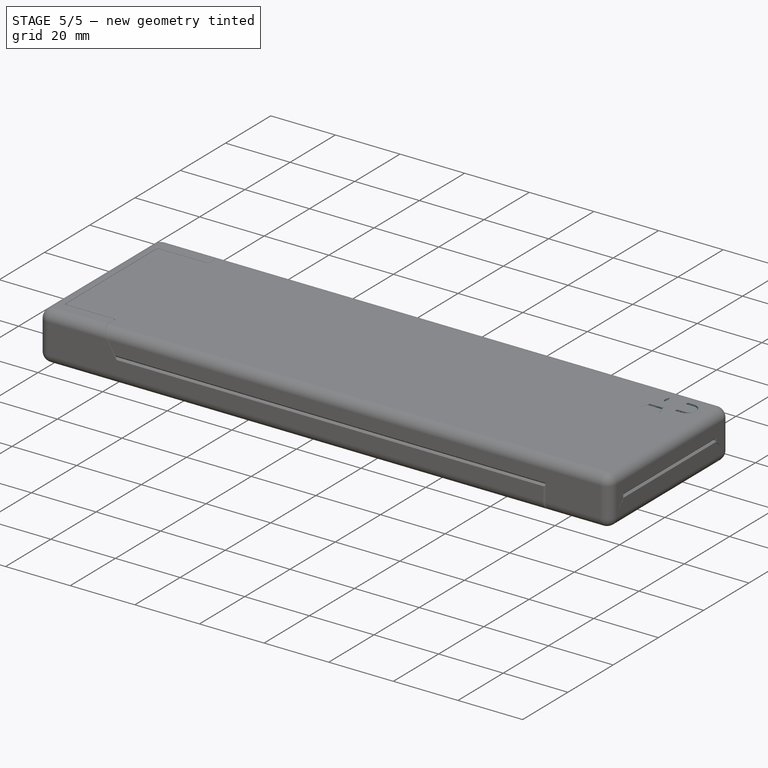
[diagram: stage 5 of 5 — iso view after this stage's code; geometry added in this stage tinted green]
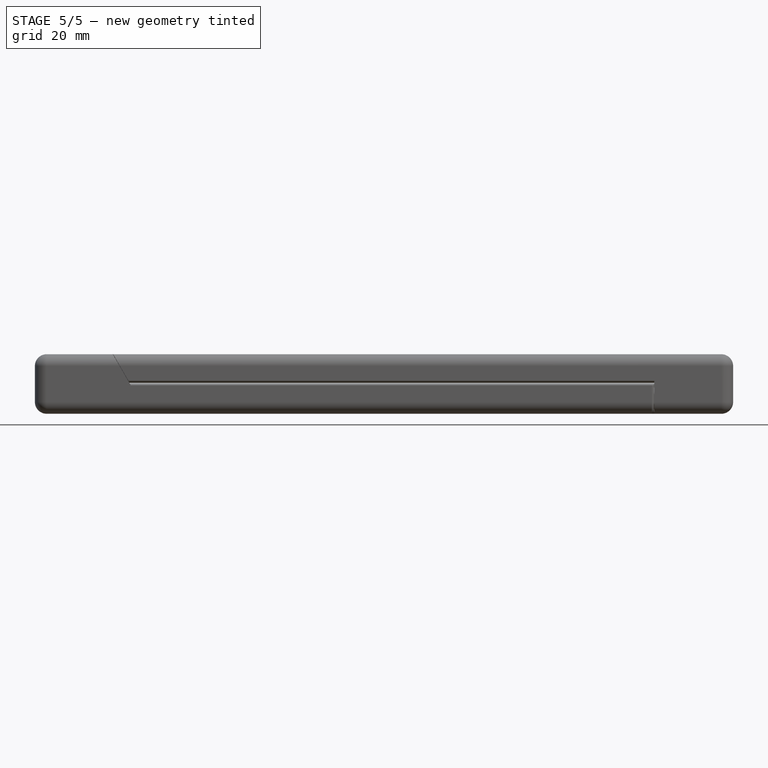
[diagram: stage 5 of 5 — front view after this stage's code; geometry added in this stage tinted green]
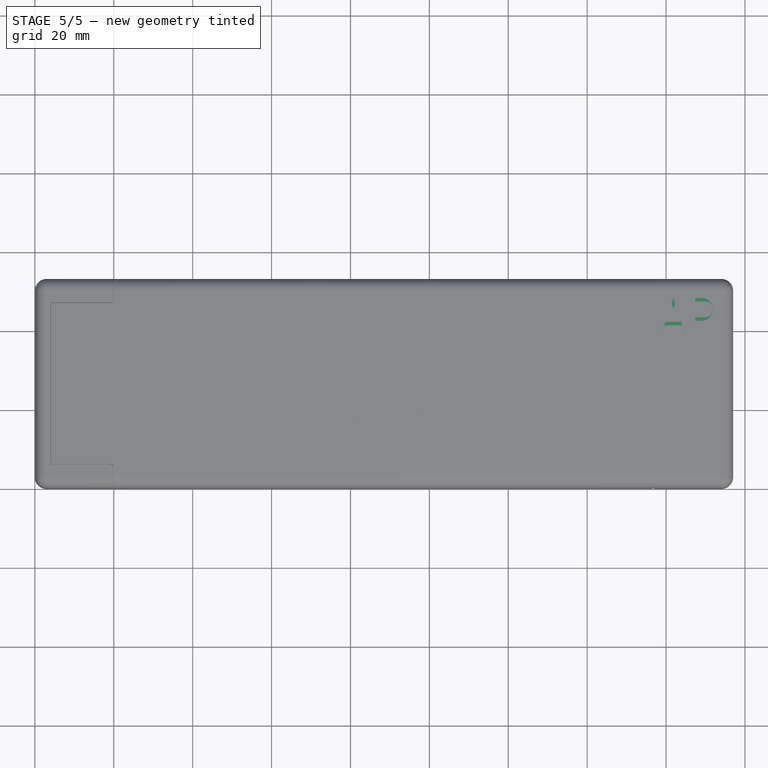
[diagram: stage 5 of 5 — top view after this stage's code; geometry added in this stage tinted green]
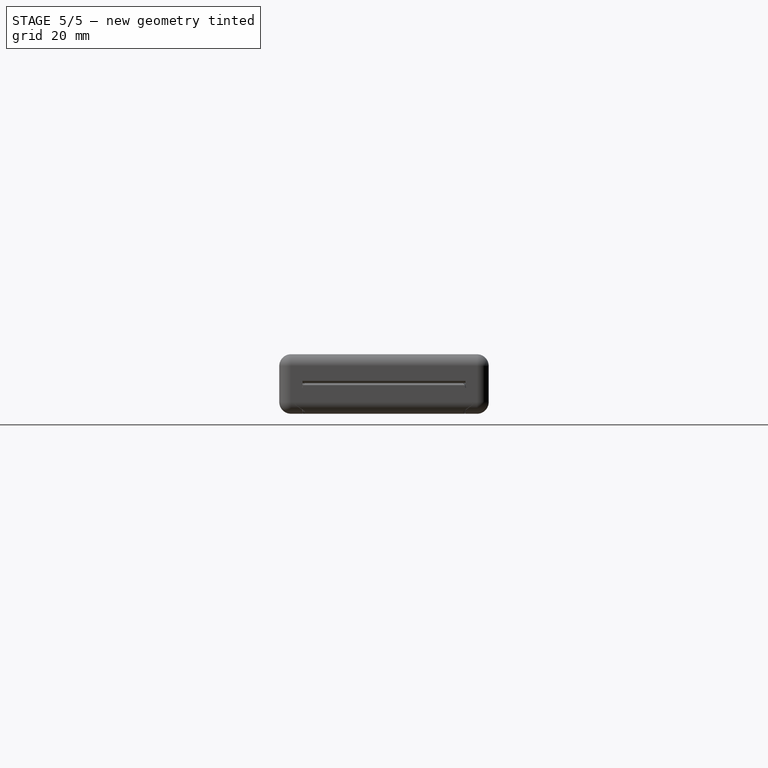
[diagram: stage 5 of 5 — right view after this stage's code; geometry added in this stage tinted green]
FEATURE [Part::Part2DObjectPython] ShapeString002  label="Engraving003"  # Draft 2D object (typed FeaturePython)
  FontFile = <userpath>/Documents/FreeCad/Font/Gidole-Regular.ttf
  Placement = pos=(158.5,39.1,25.1) rot=(0,0,1;0rad)
  Size = 10
  String = AP
  Tracking = 0
FEATURE [Sketcher::SketchObject] Sketch029
  ExternalGeometry = -> [Fillet010]
  FullyConstrained = true
  MapMode = 5
  Placement = pos=(0,0,-2) rot=(1,0,0;3.14159rad)
  Support = -> [Fillet010]
  sketch-geometry (8):
    g0: ArcOfCircle CenterX=157.4 CenterY=-5.9 CenterZ=0 NormalX=0 NormalY=0 NormalZ=1 AngleXU=0 Radius=0.4 StartAngle=3.14159 EndAngle=6.28319
    g1: ArcOfCircle CenterX=157.4 CenterY=-47.2 CenterZ=0 NormalX=0 NormalY=0 NormalZ=1 AngleXU=0 Radius=0.4 StartAngle=-5.6e-14 EndAngle=3.14159
    g2: LineSegment StartX=157 StartY=-47.2 StartZ=0 EndX=157 EndY=-48 EndZ=0
    g3: LineSegment StartX=157 StartY=-48 StartZ=0 EndX=157.8 EndY=-48 EndZ=0
    g4: LineSegment StartX=157.8 StartY=-48 StartZ=0 EndX=157.8 EndY=-47.2 EndZ=0
    g5: LineSegment StartX=157 StartY=-5.9 StartZ=0 EndX=157 EndY=-5.1 EndZ=0
    g6: LineSegment StartX=157 StartY=-5.1 StartZ=0 EndX=157.8 EndY=-5.1 EndZ=0
    g7: LineSegment StartX=157.8 StartY=-5.1 StartZ=0 EndX=157.8 EndY=-5.9 EndZ=0
  constraints (21):
    c: Coincident(g0,g-4)
    c: PointOnObject(g0,g-4)
    c: Coincident(g1,g-3)
    c: PointOnObject(g1,g-3)
    c: Vertical(g2)
    c: Coincident(g3,g2)
    c: Horizontal(g3)
    c: Coincident(g4,g3)
    c: Coincident(g4,g1)
    c: Vertical(g4)
    c: Vertical(g5)
    c: Coincident(g6,g5)
    c: Coincident(g7,g6)
    c: Horizontal(g6)
    c: Tangent(g5,g0) = 1.5708
    c: Tangent(g7,g0) = 1.5708
    c: Tangent(g2,g1) = -1.5708
    c: Distance(g3) = 0.8
    c: Equal(g4,g3)
    c: Equal(g3,g6)
    c: Equal(g6,g7)
FEATURE [PartDesign::Pad] Pad013
  BaseFeature = -> Fillet010
  Direction = (0,0,-1)
  Length = 10
  Length2 = 10
  Profile = -> Sketch029
  ReferenceAxis = -> Sketch029 [N_Axis]
  Type = 3
  UpToFace = -> Fillet010 [Face4]
FEATURE [PartDesign::ShapeBinder] ShapeBinder
  Support = -> [Pad013]
  TraceSupport = false
FEATURE [PartDesign::Pocket] Pocket023
  BaseFeature = -> Pad013
  Direction = (1,0,0)
  Length = 5
  Length2 = 5
  Profile = -> ShapeBinder
  Type = 0
FEATURE [Sketcher::SketchObject] Sketch030
  ExternalGeometry = -> [Pocket023]
  FullyConstrained = true
  MapMode = 5
  Placement = pos=(157,0,0) rot=(-0.57735,0.57735,0.57735;4.18879rad)
  Support = -> [Pocket023]
  sketch-geometry (4):
    g0: LineSegment StartX=-5.9 StartY=5.05834 StartZ=0 EndX=-47.2 EndY=5.05834 EndZ=0
    g1: LineSegment StartX=-47.2 StartY=5.05834 StartZ=0 EndX=-47.2 EndY=-1.30834 EndZ=0
    g2: LineSegment StartX=-47.2 StartY=-1.30834 StartZ=0 EndX=-5.9 EndY=-1.30834 EndZ=0
    g3: LineSegment StartX=-5.9 StartY=-1.30834 StartZ=0 EndX=-5.9 EndY=5.05834 EndZ=0
  constraints (10):
    c: Coincident(g0,g1)
    c: Coincident(g1,g2)
    c: Coincident(g2,g3)
    c: Coincident(g3,g0)
    c: Horizontal(g0)
    c: Horizontal(g2)
    c: Vertical(g1)
    c: Coincident(g0,g-3)
    c: Coincident(g1,g-4)
    c: Vertical(g3)
FEATURE [PartDesign::Pocket] Pocket024
  BaseFeature = -> Pocket023
  Direction = (1,0,0)
  Length = 5
  Length2 = 5
  Profile = -> Sketch030
  ReferenceAxis = -> Sketch030 [N_Axis]
  Refine = true
  Type = 1
FEATURE [PartDesign::FeatureBase] Clone
  BaseFeature = -> Pocket024
FEATURE [Sketcher::SketchObject] Sketch024
  ExternalGeometry = -> [Clone]
  FullyConstrained = true
  MapMode = 5
  Placement = pos=(-1.5e-15,2.1e-15,13.1) rot=(0,0,1;0rad)
  Support = -> [Clone]
  sketch-geometry (73):
    g0: Ellipse CenterX=82.25 CenterY=33.6769 CenterZ=0 NormalX=0 NormalY=0 NormalZ=1 MajorRadius=5 MinorRadius=3.75 AngleXU=-1.5708
    g1: LineSegment StartX=82.25 StartY=28.6769 StartZ=0 EndX=82.25 EndY=38.6769 EndZ=0
    g2: LineSegment StartX=86 StartY=33.6769 StartZ=0 EndX=78.5 EndY=33.6769 EndZ=0
    g3: GeomPoint X=82.25 Y=30.3697 Z=0
    g4: GeomPoint X=82.25 Y=36.9841 Z=0
    g5: Ellipse CenterX=94.75 CenterY=33.6769 CenterZ=0 NormalX=0 NormalY=0 NormalZ=1 MajorRadius=5 MinorRadius=3.75 AngleXU=-1.5708
    g6: LineSegment StartX=94.75 StartY=28.6769 StartZ=0 EndX=94.75 EndY=38.6769 EndZ=0
    g7: LineSegment StartX=98.5 StartY=33.6769 StartZ=0 EndX=91 EndY=33.6769 EndZ=0
    g8: GeomPoint X=94.75 Y=30.3697 Z=0
    g9: GeomPoint X=94.75 Y=36.9841 Z=0
    g10: LineSegment StartX=83.5 StartY=23.6769 StartZ=0 EndX=93.5 EndY=23.6769 EndZ=0
    g11: LineSegment StartX=88.5 StartY=27.4269 StartZ=0 EndX=88.5 EndY=19.9269 EndZ=0
    g12: GeomPoint X=88.5 Y=23.6769 Z=0
    g13: ArcOfCircle CenterX=86.8594 CenterY=23.6769 CenterZ=0 NormalX=0 NormalY=0 NormalZ=1 AngleXU=0 Radius=3.35937 StartAngle=2.03828 EndAngle=4.2449
    g14: ArcOfCircle CenterX=88.5 CenterY=20.4269 CenterZ=0 NormalX=0 NormalY=0 NormalZ=1 AngleXU=0 Radius=7 StartAngle=1.10331 EndAngle=2.03828
    g15: ArcOfCircle CenterX=90.1406 CenterY=23.6769 CenterZ=0 NormalX=0 NormalY=0 NormalZ=1 AngleXU=0 Radius=3.35937 StartAngle=5.17988 EndAngle=7.3865
    g16: ArcOfCircle CenterX=88.5 CenterY=26.9269 CenterZ=0 NormalX=0 NormalY=0 NormalZ=1 AngleXU=0 Radius=7 StartAngle=4.2449 EndAngle=5.17988
    g17: LineSegment StartX=87 StartY=20.0895 StartZ=0 EndX=90 EndY=20.0895 EndZ=0
    g18: LineSegment StartX=90 StartY=20.0895 StartZ=0 EndX=88.5 EndY=23.6769 EndZ=0
    g19: LineSegment StartX=88.5 StartY=23.6769 StartZ=0 EndX=87 EndY=20.0895 EndZ=0
    g20: ArcOfCircle CenterX=88.5 CenterY=26.9269 CenterZ=0 NormalX=0 NormalY=0 NormalZ=1 AngleXU=0 Radius=7 StartAngle=4.2449 EndAngle=4.49643
    g21: ArcOfCircle CenterX=88.5 CenterY=26.9269 CenterZ=0 NormalX=0 NormalY=0 NormalZ=1 AngleXU=0 Radius=7 StartAngle=4.92835 EndAngle=5.17988
    g22: ArcOfCircle CenterX=83.5 CenterY=19.9269 CenterZ=0 NormalX=0 NormalY=0 NormalZ=1 AngleXU=0 Radius=3.50378 StartAngle=3.6191 EndAngle=6.32961
    g23: ArcOfCircle CenterX=93.5 CenterY=19.9269 CenterZ=0 NormalX=0 NormalY=0 NormalZ=1 AngleXU=0 Radius=3.50378 StartAngle=3.09517 EndAngle=5.80568
    g24: ArcOfCircle CenterX=97.5 CenterY=17.8571 CenterZ=0 NormalX=0 NormalY=0 NormalZ=1 AngleXU=0 Radius=1 StartAngle=5.80568 EndAngle=8.94727
    g25: ArcOfCircle CenterX=79.5 CenterY=17.8571 CenterZ=0 NormalX=0 NormalY=0 NormalZ=1 AngleXU=0 Radius=1 StartAngle=0.477506 EndAngle=3.6191
    g26: ArcOfCircle CenterX=83.5 CenterY=19.9269 CenterZ=0 NormalX=0 NormalY=0 NormalZ=1 AngleXU=0 Radius=5.50378 StartAngle=3.6191 EndAngle=5.85199
    g27: ArcOfCircle CenterX=93.5 CenterY=19.9269 CenterZ=0 NormalX=0 NormalY=0 NormalZ=1 AngleXU=0 Radius=5.50378 StartAngle=3.57279 EndAngle=5.80568
    g28: GeomPoint X=78.5 Y=17.8571 Z=0
    g29: GeomPoint X=98.5 Y=17.8571 Z=0
    g30: LineSegment StartX=88.5 StartY=23.6769 StartZ=0 EndX=74.5 EndY=23.6769 EndZ=0
    g31: LineSegment StartX=88.5 StartY=23.6769 StartZ=0 EndX=102.5 EndY=23.6769 EndZ=0
    g32: LineSegment StartX=88.5 StartY=23.6769 StartZ=0 EndX=102.023 EndY=27.3004 EndZ=0
    g33: LineSegment StartX=88.5 StartY=23.6769 StartZ=0 EndX=74.977 EndY=20.0534 EndZ=0
    g34: LineSegment StartX=88.5 StartY=23.6769 StartZ=0 EndX=102.023 EndY=20.0534 EndZ=0
    g35: LineSegment StartX=88.5 StartY=23.6769 StartZ=0 EndX=74.977 EndY=27.3004 EndZ=0
    g36: ArcOfCircle CenterX=64.5 CenterY=23.6769 CenterZ=0 NormalX=0 NormalY=0 NormalZ=1 AngleXU=0 Radius=1 StartAngle=1.5708 EndAngle=4.71239
    g37: ArcOfCircle CenterX=73.5 CenterY=23.6769 CenterZ=0 NormalX=0 NormalY=0 NormalZ=1 AngleXU=0 Radius=1 StartAngle=4.71239 EndAngle=7.85398
    g38: LineSegment StartX=64.5 StartY=22.6769 StartZ=0 EndX=73.5 EndY=22.6769 EndZ=0
    g39: LineSegment StartX=64.5 StartY=24.6769 StartZ=0 EndX=73.5 EndY=24.6769 EndZ=0
    g40: ArcOfCircle CenterX=65.3178 CenterY=29.8885 CenterZ=0 NormalX=0 NormalY=0 NormalZ=1 AngleXU=0 Radius=1 StartAngle=1.309 EndAngle=4.45059
    g41: ArcOfCircle CenterX=74.0111 CenterY=27.5592 CenterZ=0 NormalX=0 NormalY=0 NormalZ=1 AngleXU=0 Radius=1 StartAngle=4.45059 EndAngle=7.59218
    g42: LineSegment StartX=65.059 StartY=28.9226 StartZ=0 EndX=73.7523 EndY=26.5932 EndZ=0
    g43: LineSegment StartX=65.5766 StartY=30.8545 StartZ=0 EndX=74.2699 EndY=28.5251 EndZ=0
    g44: ArcOfCircle CenterX=65.3178 CenterY=17.4652 CenterZ=0 NormalX=0 NormalY=0 NormalZ=1 AngleXU=0 Radius=1 StartAngle=1.8326 EndAngle=4.97419
    g45: ArcOfCircle CenterX=74.0111 CenterY=19.7946 CenterZ=0 NormalX=0 NormalY=0 NormalZ=1 AngleXU=0 Radius=1 StartAngle=4.97419 EndAngle=8.11578
    g46: LineSegment StartX=65.5766 StartY=16.4993 StartZ=0 EndX=74.2699 EndY=18.8287 EndZ=0
    g47: LineSegment StartX=65.059 StartY=18.4312 StartZ=0 EndX=73.7523 EndY=20.7605 EndZ=0
    g48: ArcOfCircle CenterX=102.989 CenterY=19.7946 CenterZ=0 NormalX=0 NormalY=0 NormalZ=1 AngleXU=0 Radius=1 StartAngle=1.309 EndAngle=4.45059
    g49: ArcOfCircle CenterX=111.682 CenterY=17.4652 CenterZ=0 NormalX=0 NormalY=0 NormalZ=1 AngleXU=0 Radius=1 StartAngle=4.45059 EndAngle=7.59218
    g50: LineSegment StartX=102.73 StartY=18.8287 StartZ=0 EndX=111.423 EndY=16.4993 EndZ=0
    g51: LineSegment StartX=103.248 StartY=20.7605 StartZ=0 EndX=111.941 EndY=18.4312 EndZ=0
    g52: ArcOfCircle CenterX=103.5 CenterY=23.6769 CenterZ=0 NormalX=0 NormalY=0 NormalZ=1 AngleXU=0 Radius=1 StartAngle=1.5708 EndAngle=4.71239
    g53: ArcOfCircle CenterX=112.5 CenterY=23.6769 CenterZ=0 NormalX=0 NormalY=0 NormalZ=1 AngleXU=0 Radius=1 StartAngle=4.71239 EndAngle=7.85398
    g54: LineSegment StartX=103.5 StartY=22.6769 StartZ=0 EndX=112.5 EndY=22.6769 EndZ=0
    g55: LineSegment StartX=103.5 StartY=24.6769 StartZ=0 EndX=112.5 EndY=24.6769 EndZ=0
    g56: ArcOfCircle CenterX=102.989 CenterY=27.5592 CenterZ=0 NormalX=0 NormalY=0 NormalZ=1 AngleXU=0 Radius=1 StartAngle=1.8326 EndAngle=4.97419
    g57: ArcOfCircle CenterX=111.682 CenterY=29.8885 CenterZ=0 NormalX=0 NormalY=0 NormalZ=1 AngleXU=0 Radius=1 StartAngle=4.97419 EndAngle=8.11578
    g58: LineSegment StartX=103.248 StartY=26.5932 StartZ=0 EndX=111.941 EndY=28.9226 EndZ=0
    g59: LineSegment StartX=102.73 StartY=28.5251 StartZ=0 EndX=111.423 EndY=30.8545 EndZ=0
    g60: LineSegment StartX=74.977 StartY=27.3004 StartZ=0 EndX=65.3178 EndY=29.8885 EndZ=0
    g61: LineSegment StartX=74.5 StartY=23.6769 StartZ=0 EndX=64.5 EndY=23.6769 EndZ=0
    g62: LineSegment StartX=74.977 StartY=20.0534 StartZ=0 EndX=65.3178 EndY=17.4652 EndZ=0
    g63: LineSegment StartX=102.023 StartY=27.3004 StartZ=0 EndX=111.682 EndY=29.8885 EndZ=0
    g64: LineSegment StartX=102.5 StartY=23.6769 StartZ=0 EndX=112.5 EndY=23.6769 EndZ=0
    g65: LineSegment StartX=102.023 StartY=20.0534 StartZ=0 EndX=111.682 EndY=17.4652 EndZ=0
    g66: GeomPoint X=93.5 Y=25.4307 Z=0
    g67: GeomPoint X=88.5 Y=38.6769 Z=0
    g68: GeomPoint X=88.5 Y=26.55 Z=0
    g69: LineSegment StartX=83.5 StartY=14.4231 StartZ=0 EndX=93.5 EndY=14.4231 EndZ=0
    g70: GeomPoint X=88.5 Y=14.4231 Z=0
    g71: LineSegment StartX=0 StartY=0 StartZ=0 EndX=0 EndY=50.1 EndZ=0
    g72: LineSegment StartX=0 StartY=50.1 StartZ=0 EndX=19.8565 EndY=50.1 EndZ=0
  constraints (174):
    c: InternalAlignment(g1-g4 -> g0) x4
    c: InternalAlignment(g6-g9 -> g5) x4
    c: Horizontal(g2)
    c: Horizontal(g7)
    c: DistanceX(g7,g7) = 7.5
    c: DistanceX(g2,g2) = 7.5
    c: DistanceY(g6,g6) = 10
    c: DistanceY(g1,g1) = 10
    c: Horizontal(g10)
    c: Vertical(g11)
    c: Symmetric(g11,g11,g12)
    c: Symmetric(g10,g10,g12)
    c: DistanceY(g11,g11) = 7.5
    c: DistanceX(g10,g10) = 10
    c: PointOnObject(g10,g13)
    c: Coincident(g14,g13)
    c: PointOnObject(g11,g14)
    c: Coincident(g15,g14)
    c: PointOnObject(g10,g15)
    c: PointOnObject(g13,g10)
    c: PointOnObject(g15,g10)
    c: PointOnObject(g14,g11)
    c: Tangent(g13,g14,g13) = -1.5708
    c: Horizontal(g13,g14)
    c: Horizontal(g15,g13)
    c: Vertical(g13,g13)
    c: Radius(g14) = 7
    c: Coincident(g16,g13)
    c: Coincident(g16,g15)
    c: PointOnObject(g11,g16)
    c: Horizontal(g17)
    c: Coincident(g18,g17)
    c: Coincident(g18,g12)
    c: Coincident(g19,g12)
    c: Coincident(g19,g17)
    c: DistanceX(g17,g17) = 3
    c: Coincident(g20,g16)
    c: Coincident(g20,g13)
    c: Coincident(g20,g17)
    c: Coincident(g21,g20)
    c: Coincident(g21,g15)
    c: Coincident(g21,g17)
    c: Coincident(g22,g20)
    c: Coincident(g23,g21)
    c: Coincident(g24,g23)
    c: Coincident(g25,g22)
    c: Coincident(g26,g22)
    c: Coincident(g26,g25)
    c: Coincident(g27,g23)
    c: Coincident(g27,g24)
    c: Coincident(g27,g26)
    c: Horizontal(g22,g11)
    c: Horizontal(g11,g23)
    c: DistanceX(g12,g23) = 5
    c: DistanceX(g22,g12) = 5
    c: Radius(g24) = 1
    c: Radius(g25) = 1
    c: Tangent(g25,g22,g22) = 1.5708
    c: Tangent(g25,g26,g25) = -1.5708
    c: Tangent(g27,g24,g24) = -1.5708
    c: Tangent(g24,g23,g23) = 1.5708
    c: PointOnObject(g28,g25)
    c: PointOnObject(g29,g24)
    c: Horizontal(g28,g25)
    c: Horizontal(g29,g24)
    c: DistanceX(g12,g29) = 10
    c: DistanceX(g28,g12) = 10
    c: Vertical(g2,g28)
    c: Vertical(g7,g29)
    c: DistanceY(g12,g6) = 5
    c: Horizontal(g1,g6)
    c: Coincident(g30,g12)
    c: Horizontal(g30)
    c: Coincident(g31,g12)
    c: Horizontal(g31)
    c: Coincident(g32,g12)
    c: Coincident(g33,g12)
    c: Coincident(g34,g12)
    c: Coincident(g35,g12)
    c: Parallel(g35,g34)
    c: Parallel(g32,g33)
    c: Tangent(g36,g39) = 1.5708
    c: Tangent(g36,g38) = -1.5708
    c: Tangent(g38,g37) = -1.5708
    c: Tangent(g39,g37) = 1.5708
    c: Equal(g36,g37)
    c: Tangent(g40,g43) = 1.5708
    c: Tangent(g40,g42) = -1.5708
    c: Tangent(g42,g41) = -1.5708
    c: Tangent(g43,g41) = 1.5708
    c: Equal(g40,g41)
    c: Tangent(g44,g47) = 1.5708
    c: Tangent(g44,g46) = -1.5708
    c: Tangent(g46,g45) = -1.5708
    c: Tangent(g47,g45) = 1.5708
    c: Equal(g44,g45)
    c: Tangent(g48,g51) = 1.5708
    c: Tangent(g48,g50) = -1.5708
    c: Tangent(g50,g49) = -1.5708
    c: Tangent(g51,g49) = 1.5708
    c: Equal(g48,g49)
    c: Tangent(g52,g55) = 1.5708
    c: Tangent(g52,g54) = -1.5708
    c: Tangent(g54,g53) = -1.5708
    c: Tangent(g55,g53) = 1.5708
    c: Equal(g52,g53)
    c: Tangent(g56,g59) = 1.5708
    c: Tangent(g56,g58) = -1.5708
    c: Tangent(g58,g57) = -1.5708
    c: Tangent(g59,g57) = 1.5708
    c: Equal(g56,g57)
    c: Coincident(g60,g35)
    c: Coincident(g61,g30)
    c: Coincident(g62,g33)
    c: Coincident(g63,g32)
    c: Coincident(g64,g31)
    c: Coincident(g65,g34)
    c: Parallel(g62,g33)
    c: Parallel(g65,g34)
    c: Parallel(g32,g63)
    c: Parallel(g64,g31)
    c: Parallel(g61,g30)
    c: Parallel(g60,g35)
    c: Distance(g35) = 14
    c: Distance(g30) = 14
    c: Distance(g33) = 14
    c: Distance(g34) = 14
    c: Distance(g31) = 14
    c: Radius(g41) = 1
    c: Radius(g37) = 1
    c: Radius(g45) = 1
    c: Radius(g48) = 1
    c: Radius(g52) = 1
    c: Radius(g56) = 1
    c: Distance(g43) = 9
    c: Distance(g39) = 9
    c: Distance(g47) = 9
    c: Distance(g51) = 9
    c: Distance(g55) = 9
    c: Distance(g59) = 9
    c: PointOnObject(g35,g41)
    c: PointOnObject(g30,g37)
    c: PointOnObject(g33,g45)
    c: PointOnObject(g34,g48)
    c: Coincident(g57,g63)
    c: Coincident(g53,g64)
    c: Coincident(g49,g65)
    c: Coincident(g44,g62)
    c: Coincident(g36,g61)
    c: Coincident(g40,g60)
    c: Parallel(g43,g60)
    c: Parallel(g39,g61)
    c: Parallel(g47,g62)
    c: Parallel(g65,g51)
    c: Parallel(g64,g55)
    c: Parallel(g59,g63)
    c: PointOnObject(g66,g27)
    c: Symmetric(g1,g6,g67)
    c: Vertical(g23,g66)
    c: Angle(g35,g10) = 0.261799
    c: Angle(g10,g33) = 0.261799
    c: PointOnObject(g32,g56)
    c: Distance(g32) = 14
    c: PointOnObject(g31,g52)
    c: Tangent(g69,g26) = -1.5708
    c: Tangent(g69,g27) = -1.5708
    c: Symmetric(g69,g69,g70)
    c: Symmetric(g70,g67,g68)
    c: Coincident(g71,g-1)
    c: Vertical(g71)
    c: Coincident(g72,g71)
    c: Coincident(g72,g-3)
    c: Horizontal(g72)
    c: Symmetric(g71,g-4,g68)
FEATURE [PartDesign::Pocket] Pocket017
  BaseFeature = -> Clone
  Direction = (1e-16,-2e-16,-1)
  Length = 1
  Length2 = 100
  Profile = -> Sketch024
  Type = 0
FEATURE [PartDesign::FeatureBase] Clone001
  BaseFeature = -> Pocket024
FEATURE [Sketcher::SketchObject] Sketch025
  ExternalGeometry = -> [Clone001]
  FullyConstrained = true
  MapMode = 5
  Placement = pos=(-1.5e-15,2.1e-15,13.1) rot=(0,0,1;0rad)
  Support = -> [Clone001]
  sketch-geometry (39):
    g0: GeomPoint X=88.5 Y=26.55 Z=0
    g1: ArcOfCircle CenterX=88.5 CenterY=14.8823 CenterZ=0 NormalX=0 NormalY=0 NormalZ=1 AngleXU=0 Radius=10 StartAngle=0.437851 EndAngle=2.70374
    g2: ArcOfCircle CenterX=83.066 CenterY=17.4263 CenterZ=0 NormalX=0 NormalY=0 NormalZ=1 AngleXU=0 Radius=4 StartAngle=2.70374 EndAngle=5.23599
    g3: ArcOfCircle CenterX=93.934 CenterY=17.4263 CenterZ=0 NormalX=0 NormalY=0 NormalZ=1 AngleXU=0 Radius=4 StartAngle=4.18879 EndAngle=6.72104
    g4: ArcOfCircle CenterX=88.5 CenterY=8.01435 CenterZ=0 NormalX=0 NormalY=0 NormalZ=1 AngleXU=0 Radius=6.86798 StartAngle=1.0472 EndAngle=2.0944
    g5: GeomPoint X=88.5 Y=19.1223 Z=0
    g6: Ellipse CenterX=77.1468 CenterY=27.4634 CenterZ=0 NormalX=0 NormalY=0 NormalZ=1 MajorRadius=5 MinorRadius=2.5 AngleXU=-0.959931
    g7: LineSegment StartX=80.0147 StartY=23.3676 StartZ=0 EndX=74.279 EndY=31.5591 EndZ=0
    g8: LineSegment StartX=79.1947 StartY=28.8973 StartZ=0 EndX=75.099 EndY=26.0294 EndZ=0
    g9: GeomPoint X=79.6305 Y=23.9163 Z=0
    g10: GeomPoint X=74.6632 Y=31.0104 Z=0
    g11: LineSegment StartX=81.4289 StartY=21.9534 StartZ=0 EndX=80.0147 EndY=23.3676 EndZ=0
    g12: LineSegment StartX=81.4289 StartY=21.9534 StartZ=0 EndX=88.5 EndY=14.8823 EndZ=0
    g13: LineSegment StartX=88.5 StartY=14.8823 StartZ=0 EndX=85.4929 EndY=24.4195 EndZ=0
    g14: LineSegment StartX=85.4929 StartY=24.4195 StartZ=0 EndX=84.5908 EndY=27.2806 EndZ=0
    g15: Ellipse CenterX=83.775 CenterY=33.4772 CenterZ=0 NormalX=0 NormalY=0 NormalZ=1 MajorRadius=6.25 MinorRadius=3.5 AngleXU=-1.4399
    g16: LineSegment StartX=84.5908 StartY=27.2806 StartZ=0 EndX=82.9592 EndY=39.6737 EndZ=0
    g17: LineSegment StartX=87.2451 StartY=33.934 StartZ=0 EndX=80.305 EndY=33.0203 EndZ=0
    g18: GeomPoint X=84.4509 Y=28.3434 Z=0
    g19: GeomPoint X=83.0992 Y=38.611 Z=0
    g20: LineSegment StartX=88.5 StartY=19.1223 StartZ=0 EndX=88.5 EndY=14.8823 EndZ=0
    g21: Ellipse CenterX=93.225 CenterY=33.4772 CenterZ=0 NormalX=0 NormalY=0 NormalZ=1 MajorRadius=6.25 MinorRadius=3.5 AngleXU=-1.7017
    g22: LineSegment StartX=92.4092 StartY=27.2806 StartZ=0 EndX=94.0408 EndY=39.6737 EndZ=0
    g23: LineSegment StartX=96.695 StartY=33.0203 StartZ=0 EndX=89.7549 EndY=33.934 EndZ=0
    g24: GeomPoint X=92.5491 Y=28.3434 Z=0
    g25: GeomPoint X=93.9008 Y=38.611 Z=0
    g26: Ellipse CenterX=99.8532 CenterY=27.4634 CenterZ=0 NormalX=0 NormalY=0 NormalZ=1 MajorRadius=5 MinorRadius=2.5 AngleXU=0.959931
    g27: LineSegment StartX=102.721 StartY=31.5591 StartZ=0 EndX=96.9853 EndY=23.3676 EndZ=0
    g28: LineSegment StartX=97.8053 StartY=28.8973 StartZ=0 EndX=101.901 EndY=26.0294 EndZ=0
    g29: GeomPoint X=102.337 Y=31.0104 Z=0
    g30: GeomPoint X=97.3695 Y=23.9163 Z=0
    g31: LineSegment StartX=88.5 StartY=14.8823 StartZ=0 EndX=91.5071 EndY=24.4195 EndZ=0
    g32: LineSegment StartX=92.4092 StartY=27.2806 StartZ=0 EndX=91.5071 EndY=24.4195 EndZ=0
    g33: LineSegment StartX=88.5 StartY=14.8823 StartZ=0 EndX=95.5711 EndY=21.9534 EndZ=0
    g34: LineSegment StartX=95.5711 StartY=21.9534 StartZ=0 EndX=96.9853 EndY=23.3676 EndZ=0
    g35: GeomPoint X=88.5 Y=39.6737 Z=0
    g36: GeomPoint X=88.5 Y=13.4263 Z=0
    g37: GeomPoint X=83.066 Y=13.4263 Z=0
    g38: LineSegment StartX=19.8565 StartY=50.1 StartZ=0 EndX=0 EndY=50.1 EndZ=0
  constraints (71):
    c: Coincident(g4,g2)
    c: Coincident(g4,g3)
    c: Tangent(g3,g4,g3) = 1.5708
    c: Tangent(g4,g2,g2) = 1.5708
    c: Radius(g1) = 10
    c: Radius(g3) = 4
    c: Radius(g2) = 4
    c: Coincident(g2,g1)
    c: Coincident(g1,g3)
    c: Tangent(g1,g3,g1) = -1.5708
    c: Tangent(g2,g1,g1) = -1.5708
    c: PointOnObject(g1,g4)
    c: Horizontal(g1,g1)
    c: Symmetric(g1,g1,g5)
    c: InternalAlignment(g7-g10 -> g6) x4
    c: PointOnObject(g11,g1)
    c: Coincident(g11,g7)
    c: Coincident(g12,g11)
    c: Coincident(g12,g1)
    c: Parallel(g11,g12)
    c: Distance(g11) = 2
    c: Distance(g7) = 10
    c: Distance(g8) = 5
    c: Coincident(g13,g1)
    c: PointOnObject(g13,g1)
    c: Coincident(g14,g13)
    c: InternalAlignment(g16-g19 -> g15) x4
    c: Parallel(g13,g14)
    c: Coincident(g14,g16)
    c: Coincident(g20,g5)
    c: Coincident(g20,g1)
    c: Angle(g20,g13) = 0.305433
    c: Angle(g20,g12) = 0.785398
    c: Distance(g17) = 7
    c: Distance(g16) = 12.5
    c: InternalAlignment(g22-g25 -> g21) x4
    c: InternalAlignment(g27-g30 -> g26) x4
    c: Distance(g14) = 3
    c: Coincident(g31,g1)
    c: PointOnObject(g31,g1)
    c: Coincident(g32,g22)
    c: Coincident(g32,g31)
    c: Coincident(g33,g1)
    c: PointOnObject(g33,g1)
    c: Coincident(g34,g33)
    c: Coincident(g34,g27)
    c: Parallel(g32,g31)
    c: Parallel(g34,g33)
    c: Distance(g27) = 10
    c: Distance(g28) = 5
    c: Distance(g23) = 7
    c: Distance(g22) = 12.5
    c: Distance(g32) = 3
    c: Distance(g34) = 2
    c: Angle(g31,g20) = 0.305433
    c: Angle(g33,g20) = 0.785398
    c: PointOnObject(g37,g2)
    c: Vertical(g2,g37)
    c: Vertical(g1,g36)
    c: Horizontal(g36,g37)
    c: Symmetric(g16,g22,g35)
    c: Symmetric(g35,g36,g0)
    c: Angle(g4) = 1.0472
    c: Angle(g7,g11,g7) = 0.174533
    c: Angle(g16,g14) = 0.174533
    c: Angle(g32,g22) = 3.31613
    c: Angle(g34,g27) = 3.31613
    c: Coincident(g38,g-4)
    c: PointOnObject(g38,g-2)
    c: Horizontal(g38)
    c: Symmetric(g38,g-3,g0)
FEATURE [PartDesign::Pocket] Pocket018
  BaseFeature = -> Clone001
  Direction = (1e-16,-2e-16,-1)
  Length = 1
  Length2 = 100
  Profile = -> Sketch025
  Type = 0
FEATURE [PartDesign::Pocket] Pocket019
  BaseFeature = -> Pocket018
  Direction = (0,0,-1)
  Length = 1
  Length2 = 100
  Profile = -> ShapeString
  Type = 0
FEATURE [PartDesign::Body] Body003  label="MKII Top Dog"
  Group = -> [Clone001,Sketch025,Pocket018,ShapeString,Pocket019]
  Origin = -> Origin003
  Tip = -> Pocket019
FEATURE [PartDesign::Pocket] Pocket020
  BaseFeature = -> Pocket017
  Direction = (0,0,-1)
  Length = 1
  Length2 = 100
  Profile = -> ShapeString001
  Type = 0
FEATURE [PartDesign::Body] Body002  label="MKII Top Cat"
  Group = -> [Clone,Sketch024,Pocket017,ShapeString001,Pocket020]
  Origin = -> Origin002
  Tip = -> Pocket020
FEATURE [PartDesign::Pocket] Pocket025
  BaseFeature = -> Pocket024
  Direction = (0,0,-1)
  Length = 0
  Length2 = 5
  Offset = 0.5
  Profile = -> ShapeString002
  ReferenceAxis = -> ShapeString002 [N_Axis]
  Type = 3
  UpToFace = -> Pocket024 [Face38]
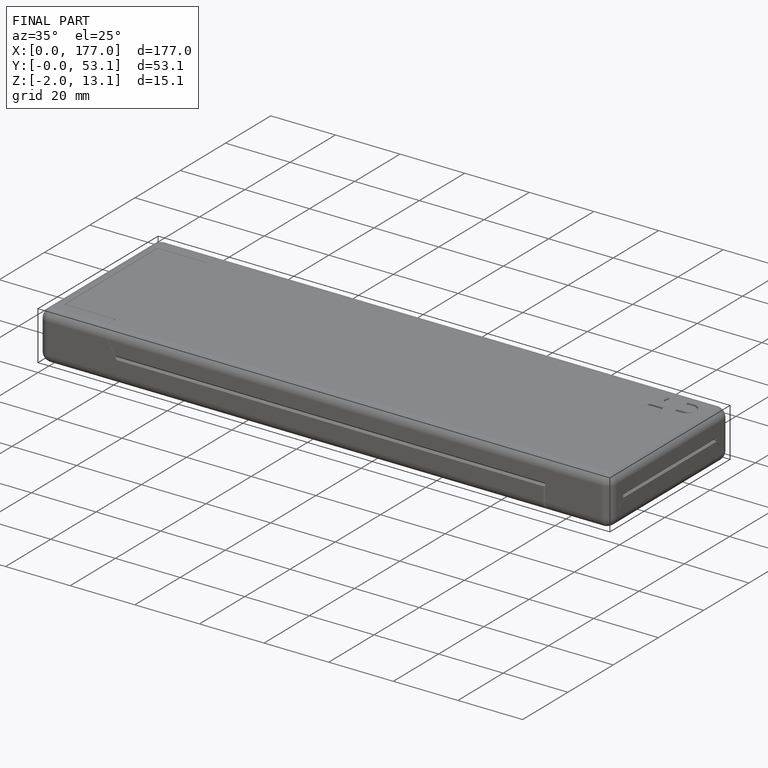
[diagram: finished part — iso view with bounding-box wireframe]
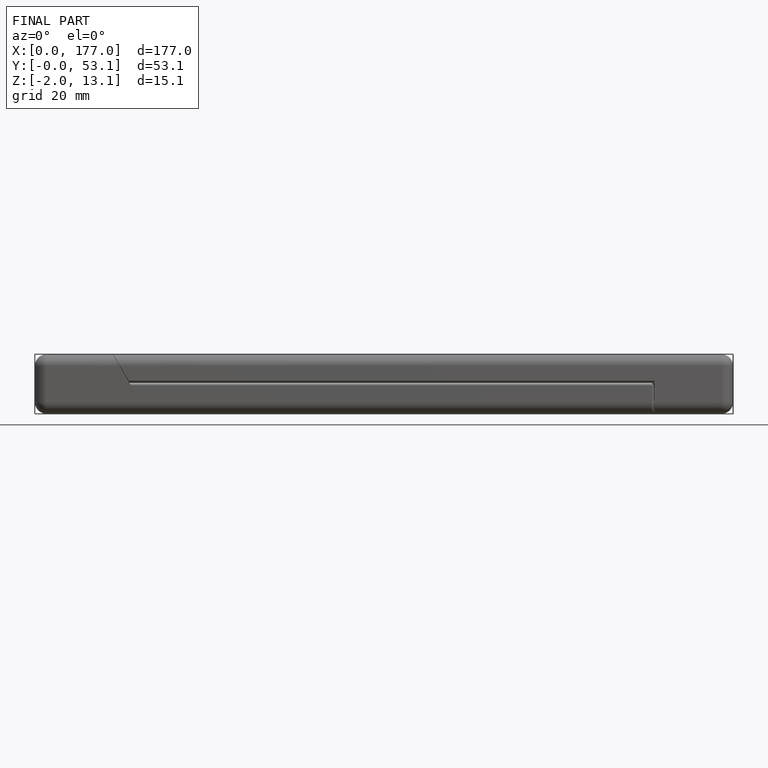
[diagram: finished part — front view with bounding-box wireframe]
